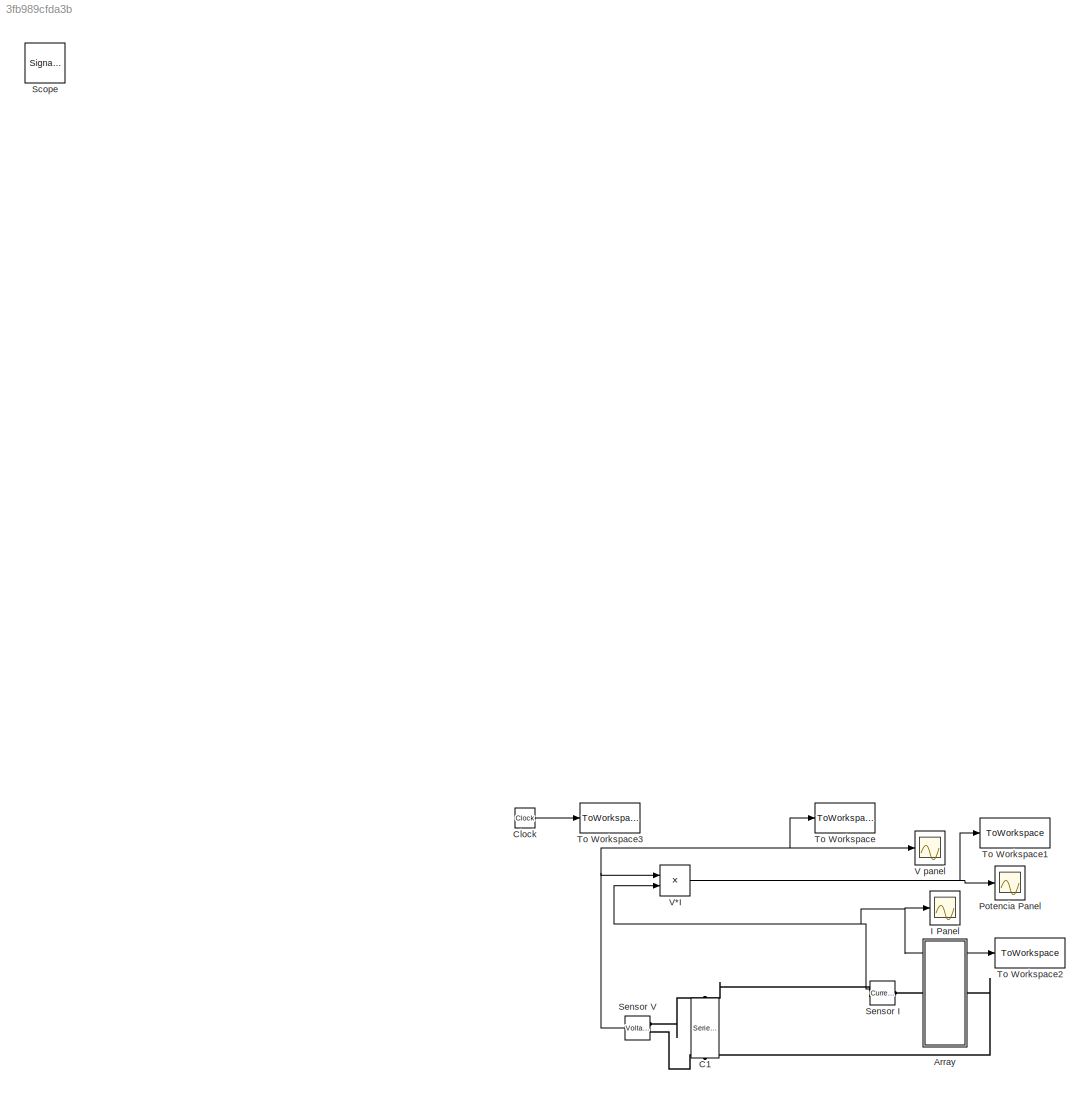
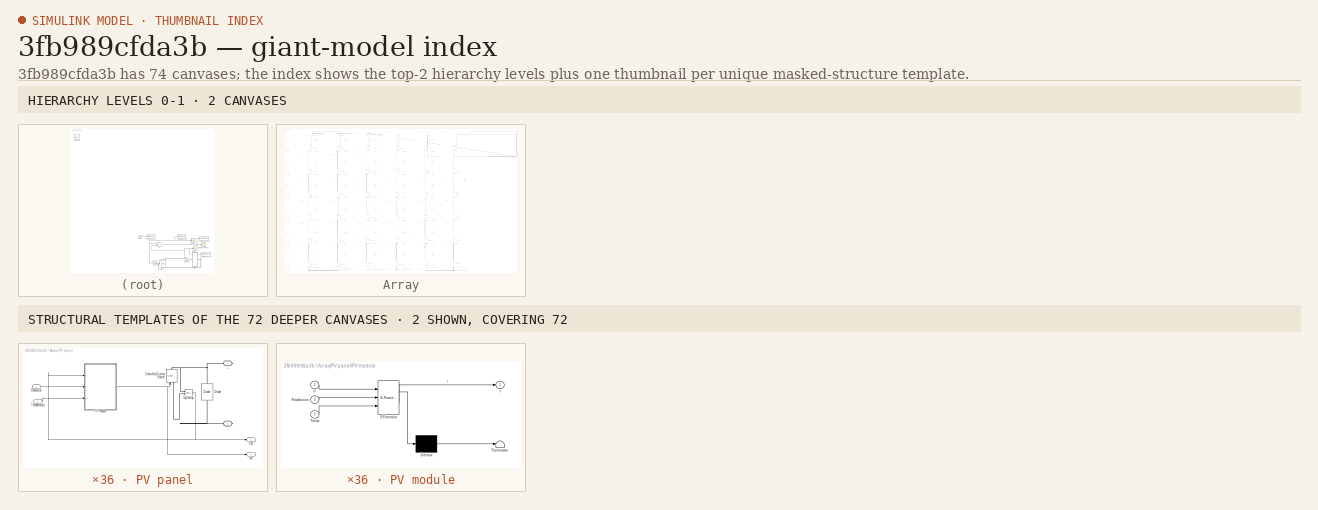
[diagram: thumbnail index - top-2 hierarchy levels (2 canvases) + 2 structural-template representatives of the remaining 72 canvases]
MODEL slx_3fb989cfda3b
KIND model
BLOCK [Reference]  C1  REF=powerlib/Elements/Series RLC Branch
  BranchType = C
  Capacitance = 50e-6
  Inductance = 0.05
  InitialCurrent = 0
  InitialVoltage = 0
  LConnTagsString = __new0
  Measurements = Branch voltage and current
  Ports = [0, 0, 0, 0, 0, 1, 1]
  RConnTagsString = __new0
  Resistance = 5
  SetiL0 = off
  Setx0 = on
  SourceBlock = powerlib/Elements/Series RLC Branch
  SourceType = Series RLC Branch
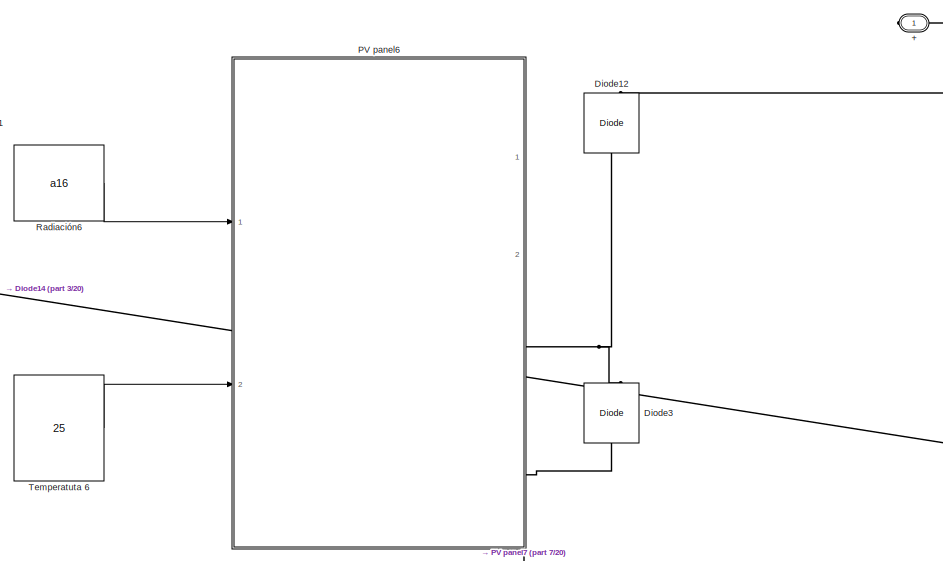
[diagram: Array - part 1/20, top right region]
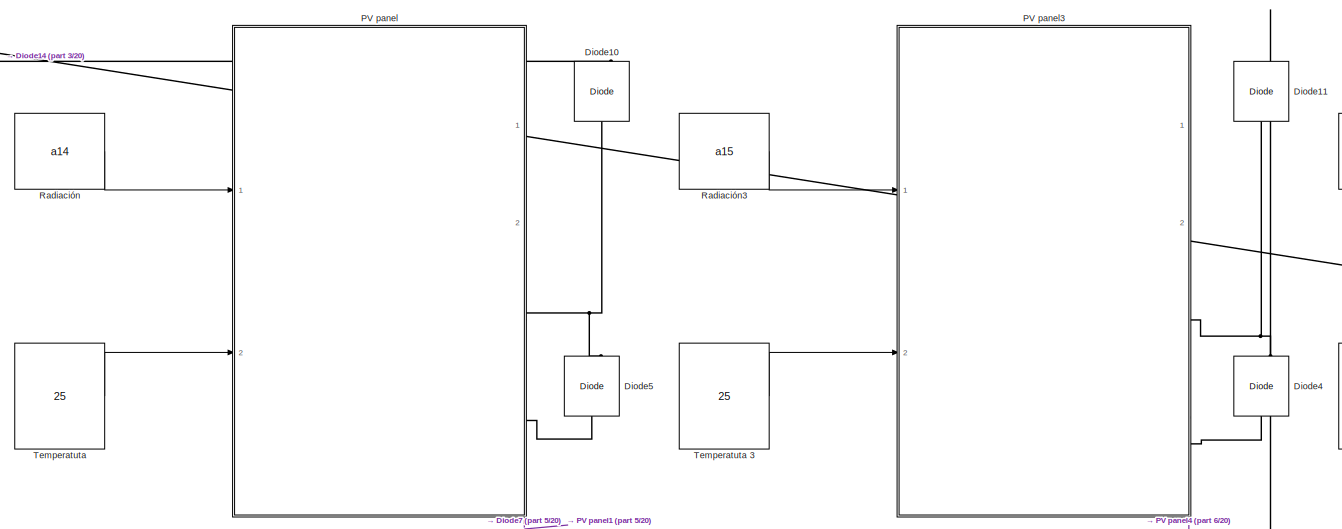
[diagram: Array - part 2/20, top center region]
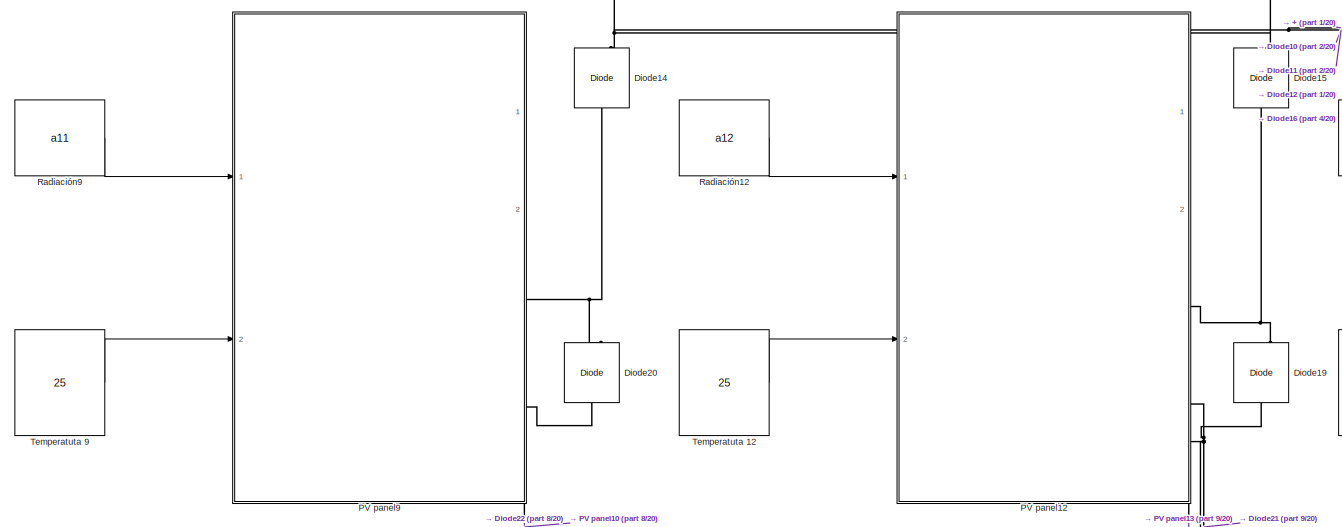
[diagram: Array - part 3/20, top left region]
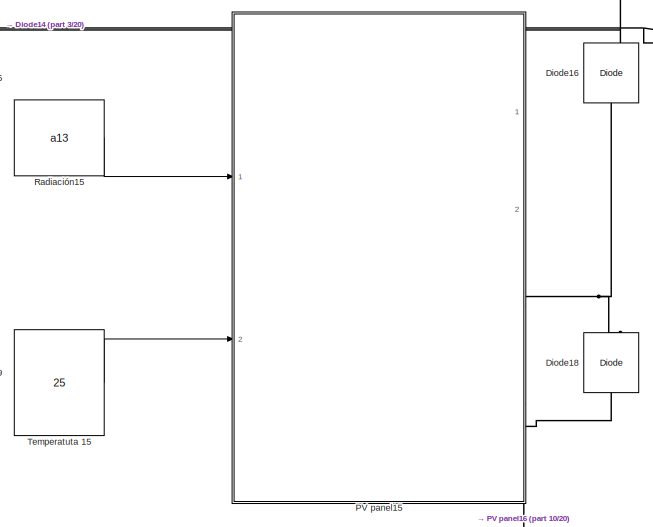
[diagram: Array - part 4/20, top left region]
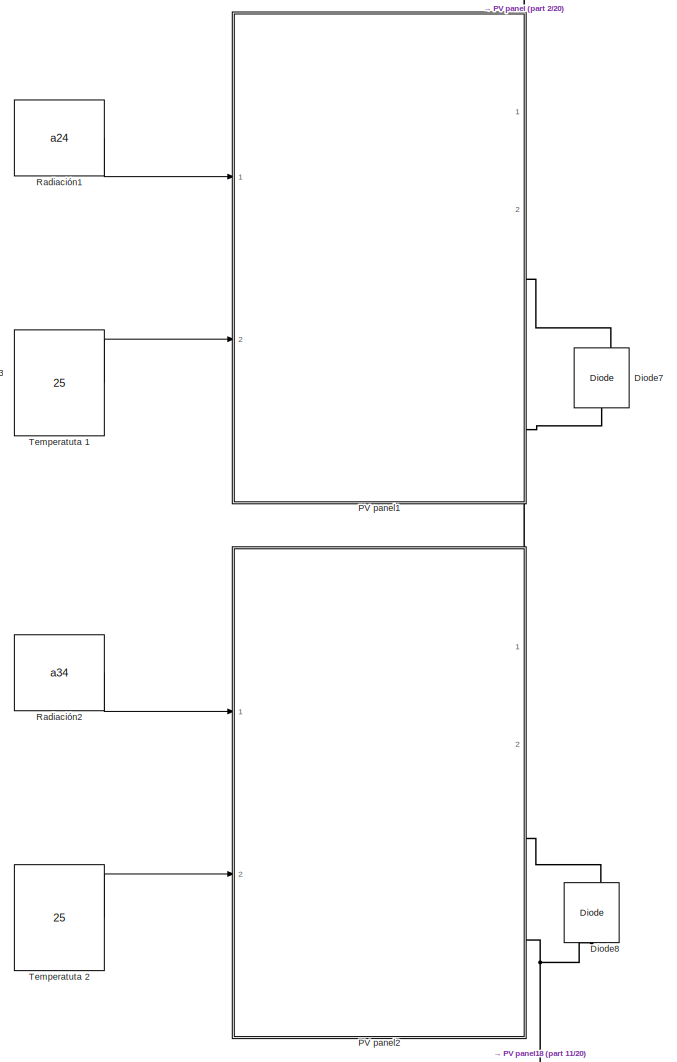
[diagram: Array - part 5/20, central region]
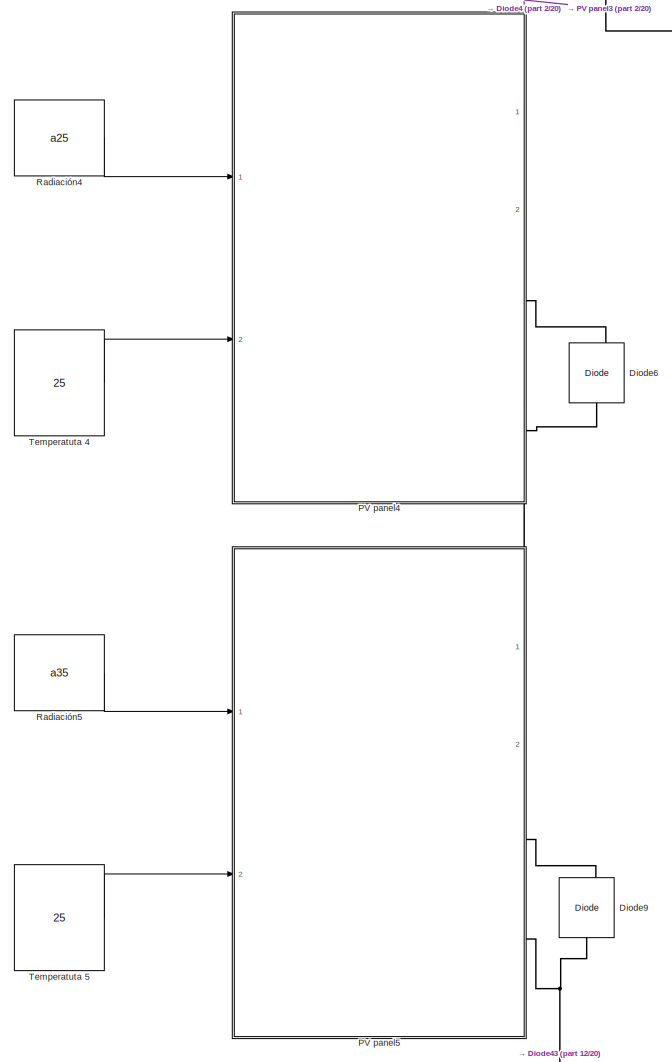
[diagram: Array - part 6/20, central region]
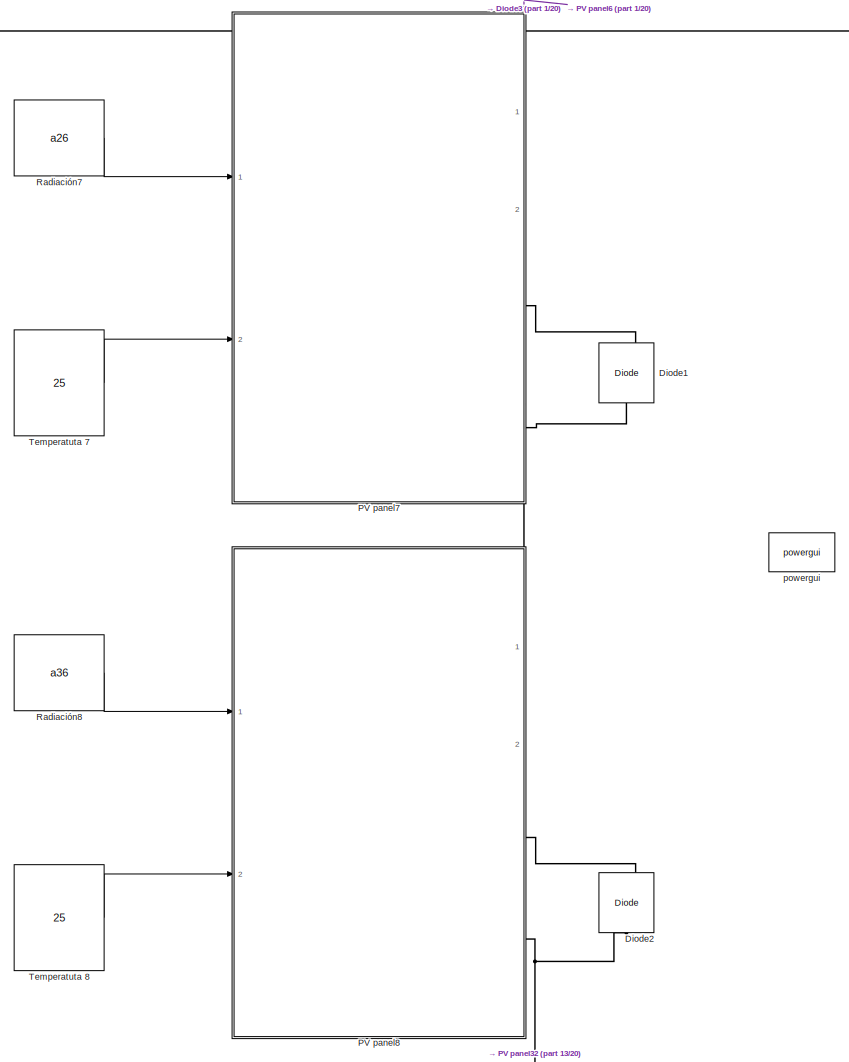
[diagram: Array - part 7/20, middle right region]
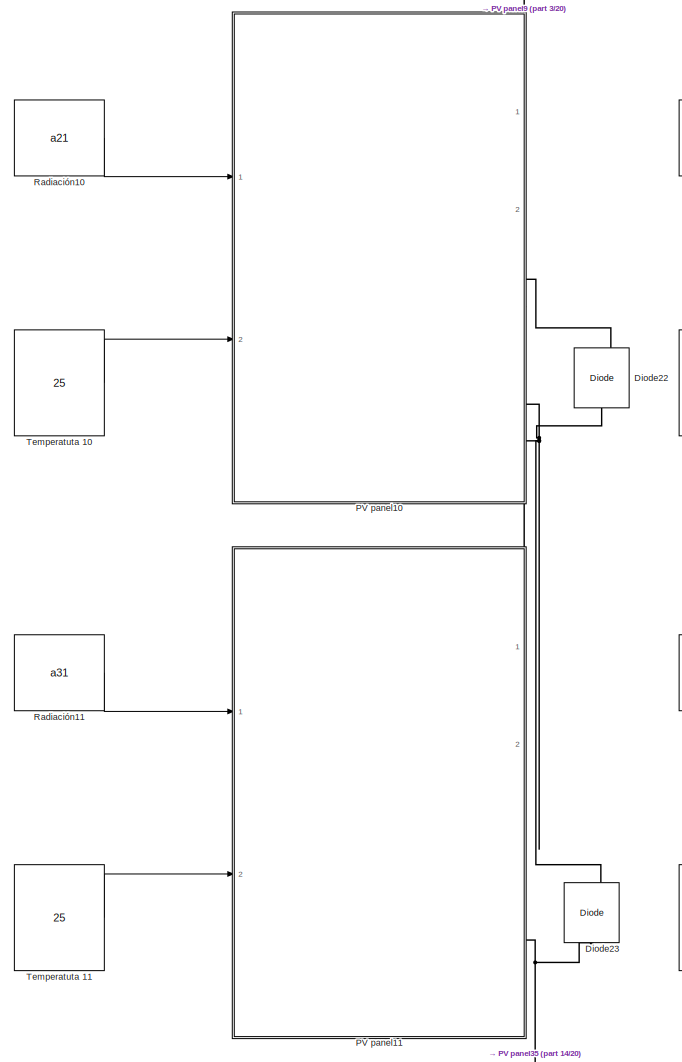
[diagram: Array - part 8/20, middle left region]
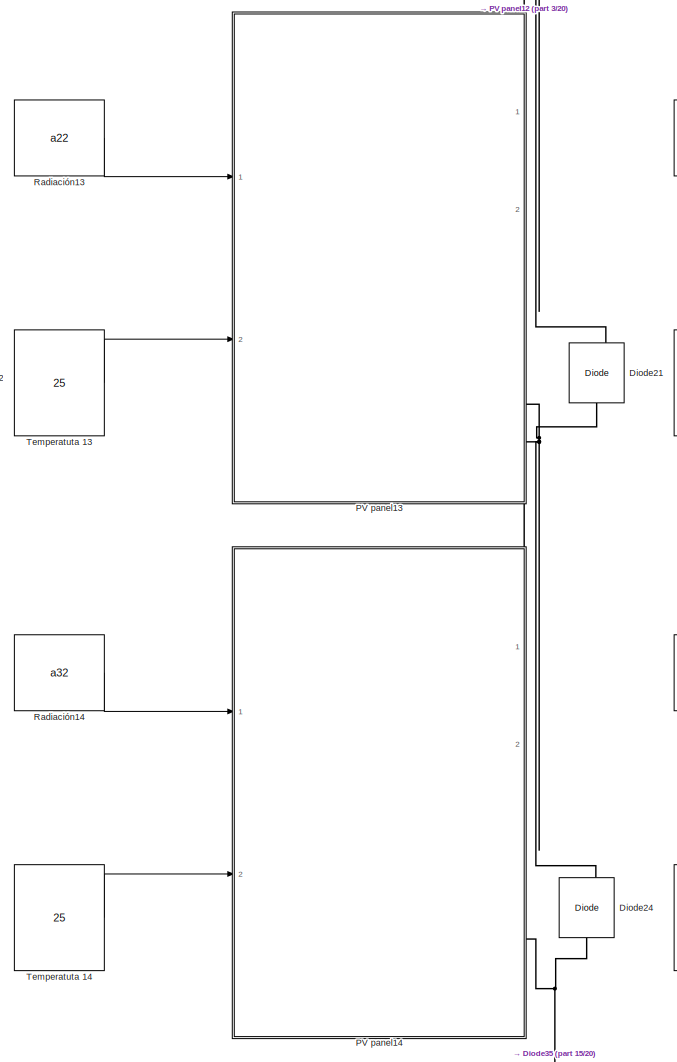
[diagram: Array - part 9/20, middle left region]
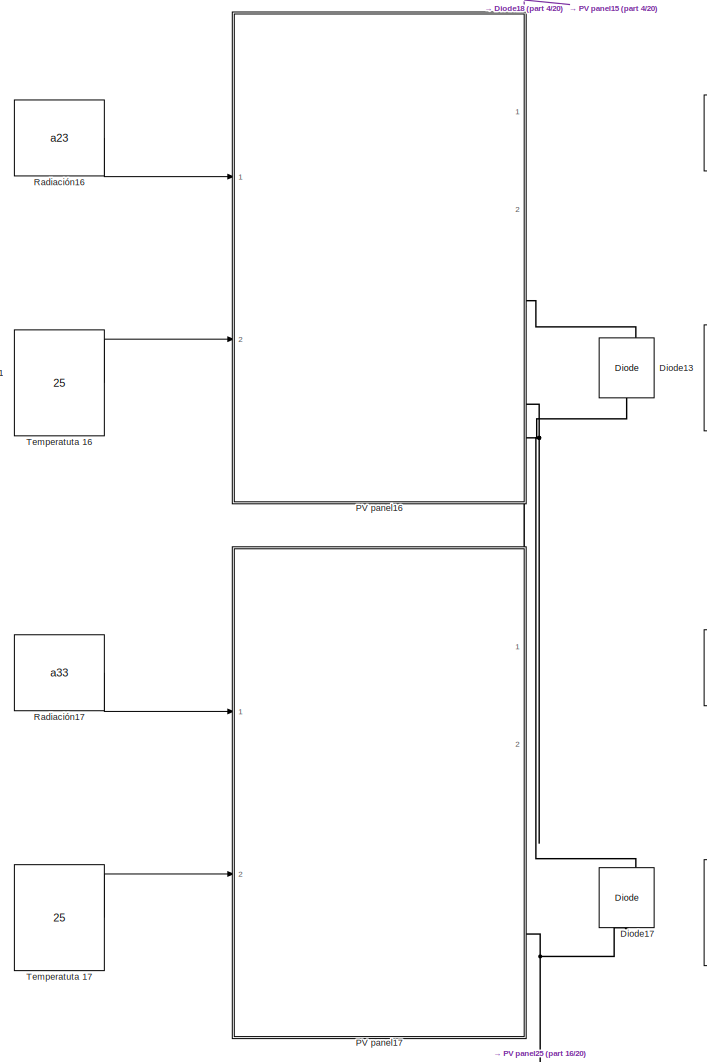
[diagram: Array - part 10/20, middle left region]
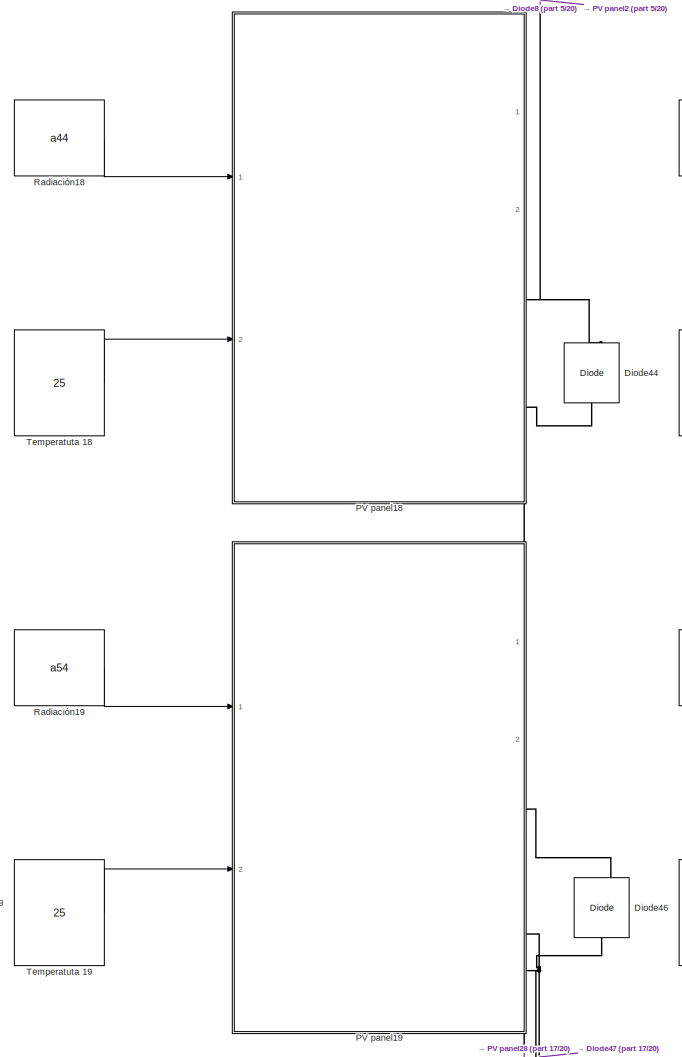
[diagram: Array - part 11/20, central region]
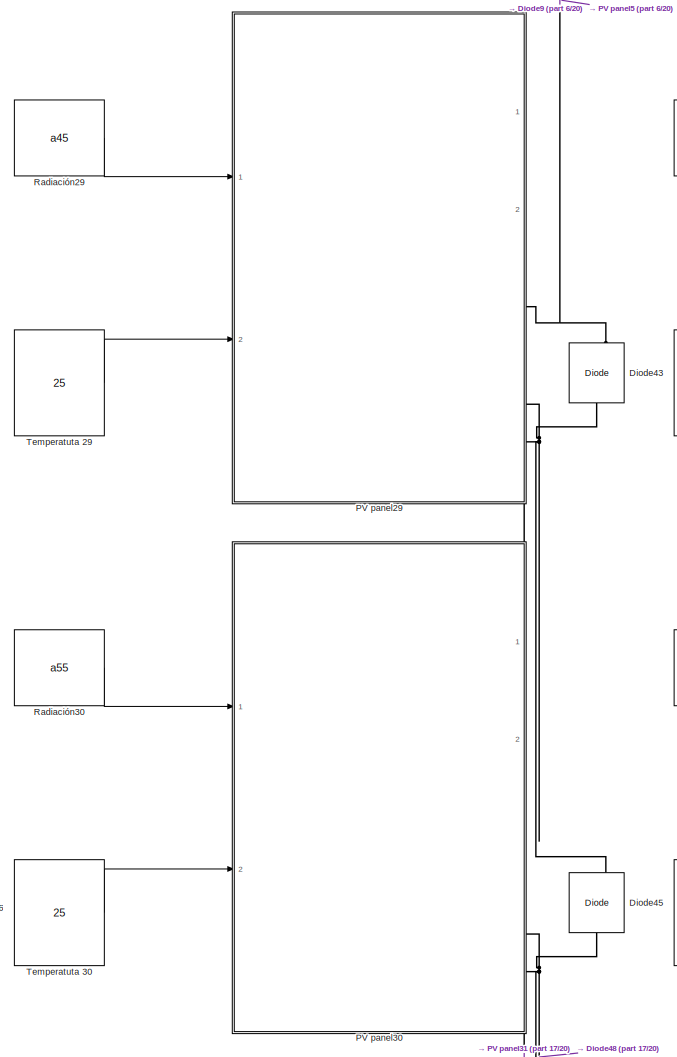
[diagram: Array - part 12/20, central region]
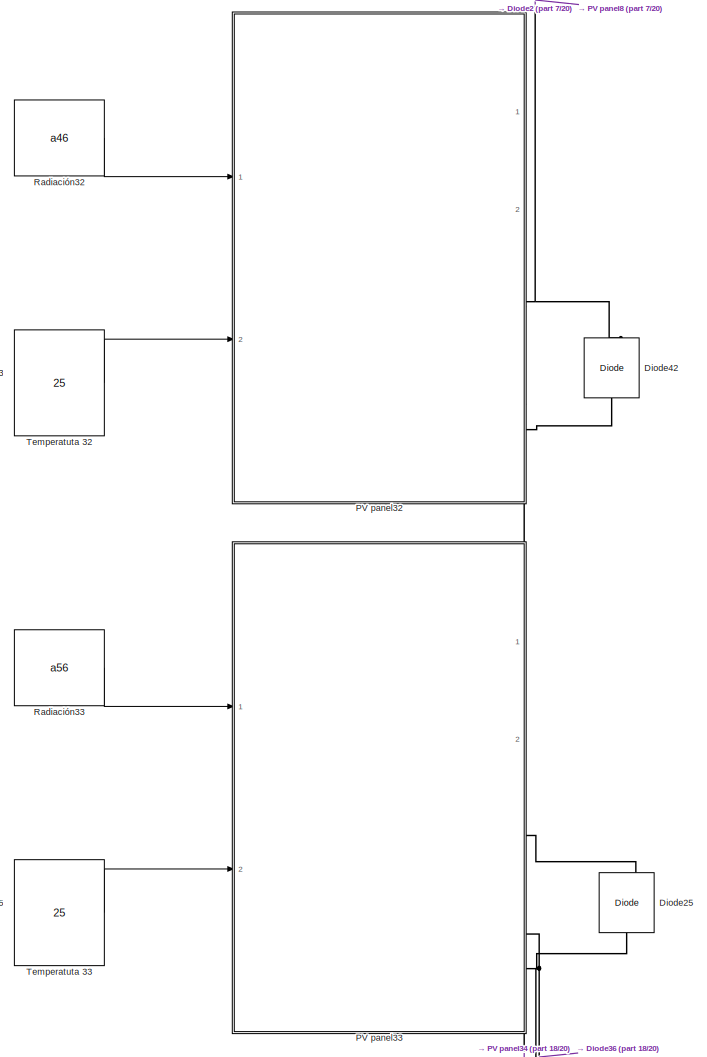
[diagram: Array - part 13/20, middle right region]
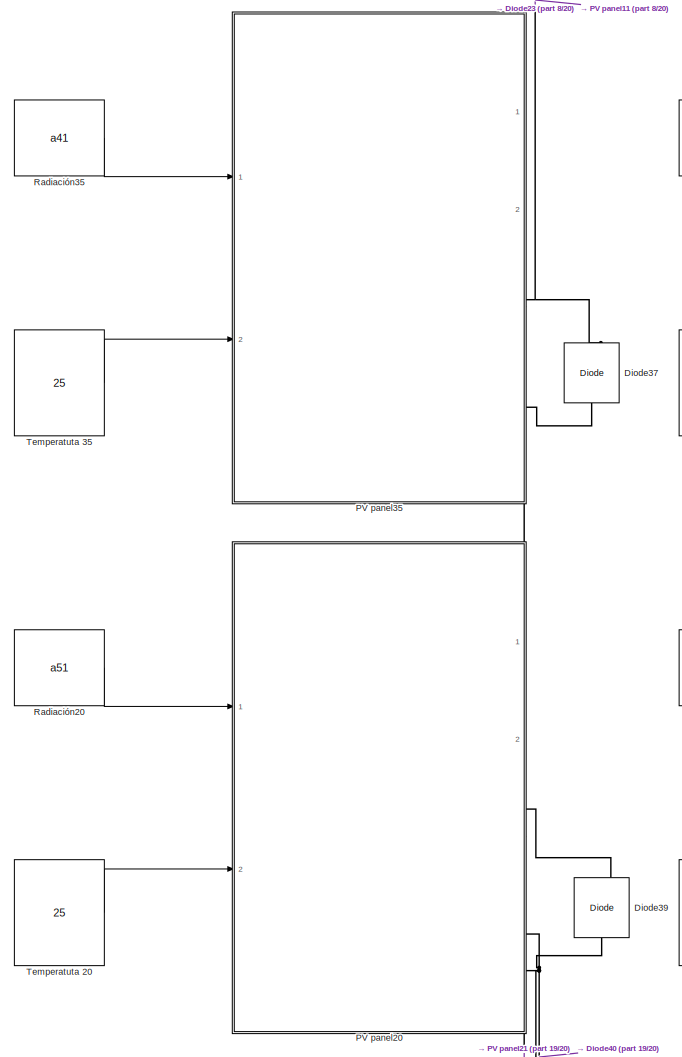
[diagram: Array - part 14/20, middle left region]
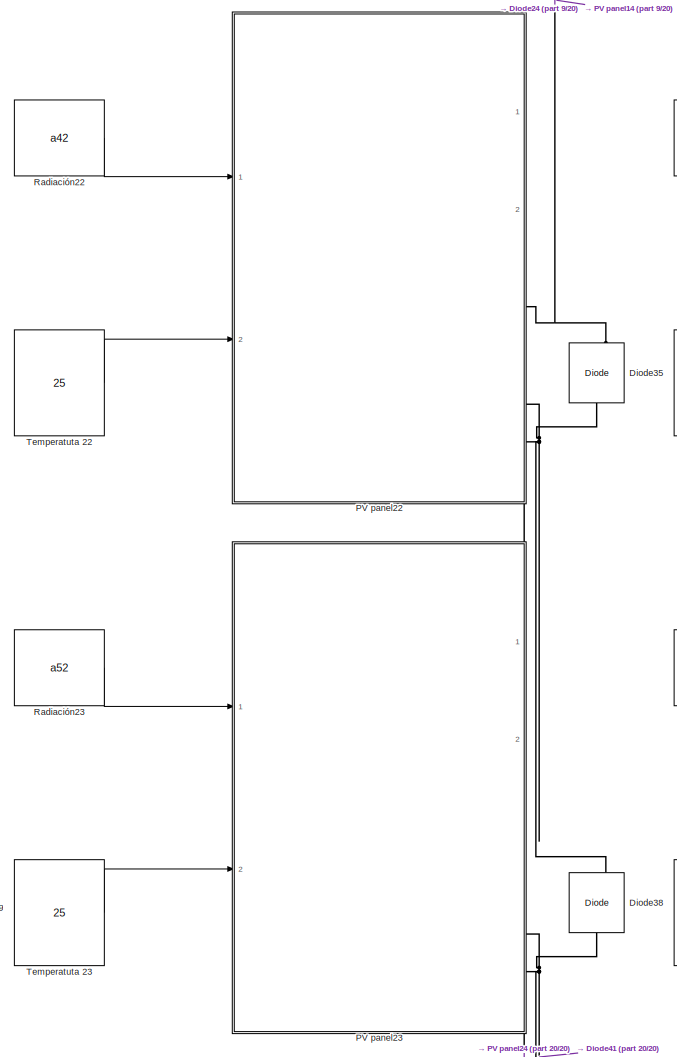
[diagram: Array - part 15/20, middle left region]
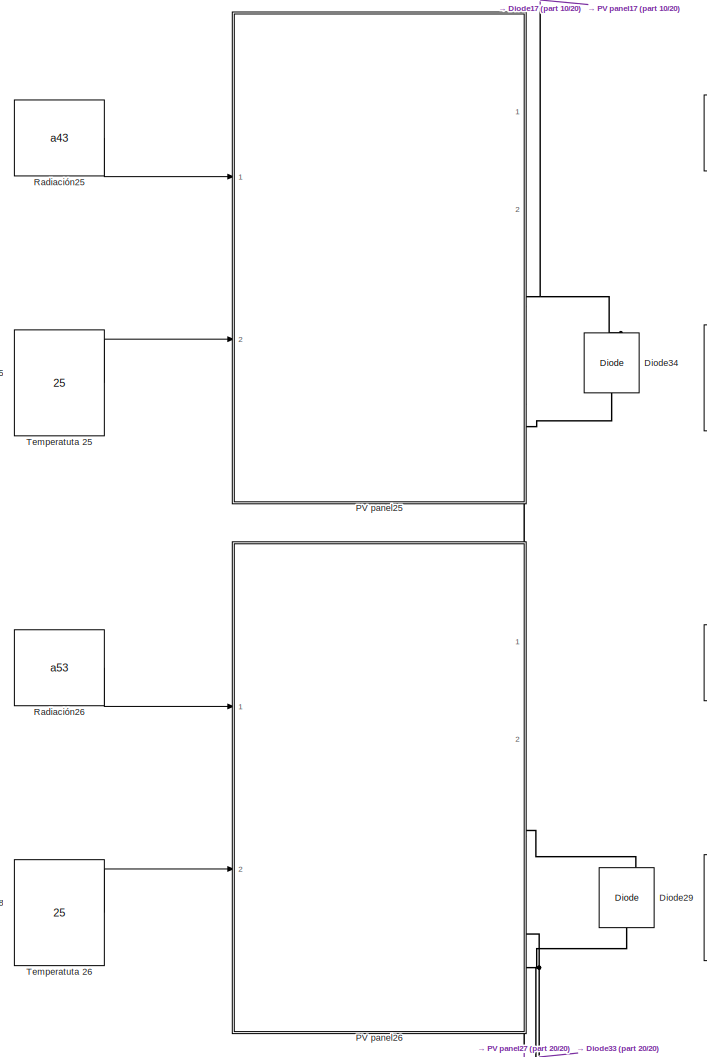
[diagram: Array - part 16/20, middle left region]
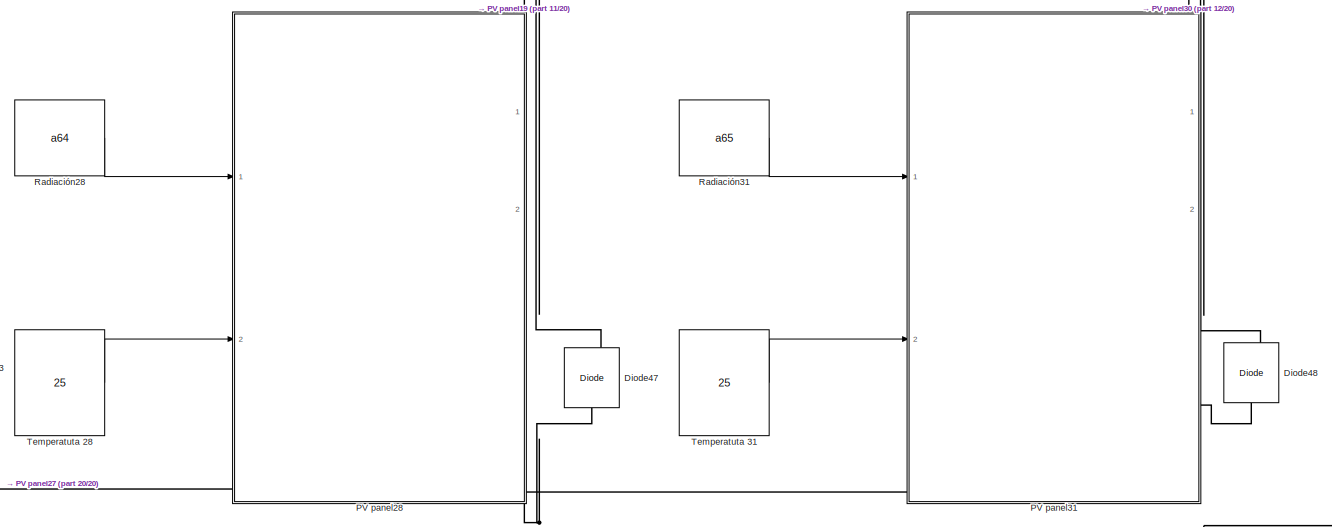
[diagram: Array - part 17/20, bottom center region]
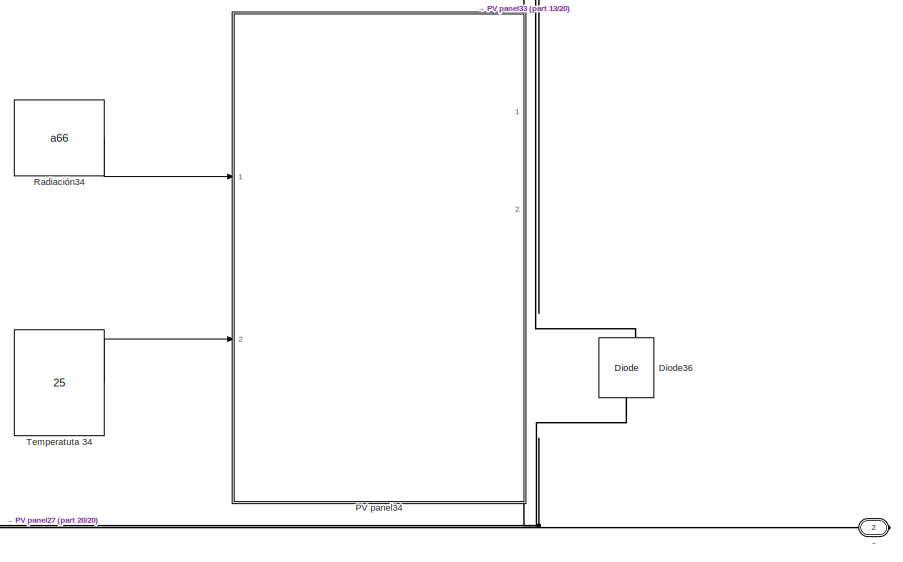
[diagram: Array - part 18/20, bottom right region]
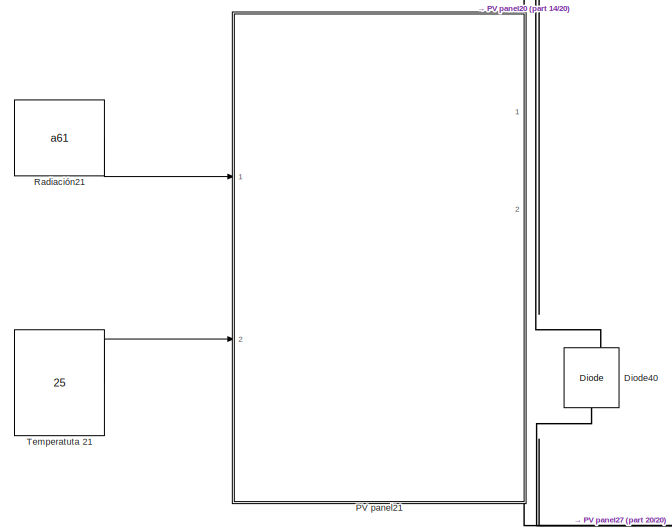
[diagram: Array - part 19/20, bottom left region]
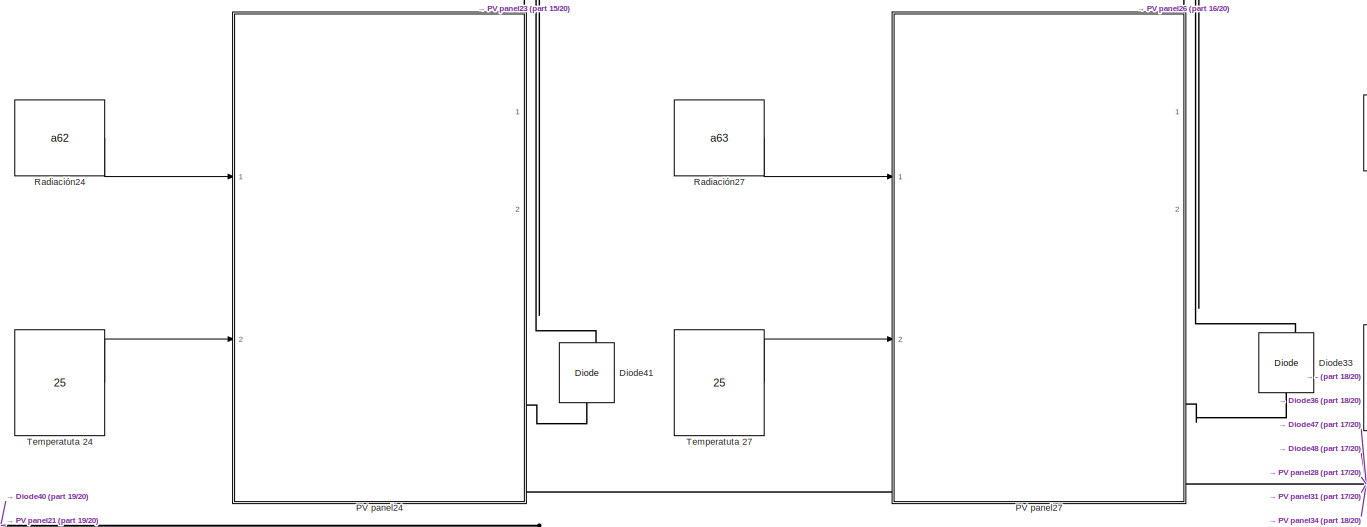
[diagram: Array - part 20/20, bottom left region]
BLOCK [SubSystem] Array
  FunctionWithSeparateData = off
  MaskHideContents = off
  MinAlgLoopOccurrences = off
  Opaque = off
  Ports = [0, 0, 0, 0, 0, 1, 1]
  PropExecContextOutsideSubsystem = off
  RTWSystemCode = Auto
  RequestExecContextInheritance = off
BLOCK [PMIOPort] Array/+
  Port = 1
  Side = Left
  Tag = PMCPort
BLOCK [PMIOPort] Array/-
  Port = 2
  Side = Right
  Tag = PMCPort
BLOCK [Reference] Array/Diode1  REF=powerlib/Power
Electronics/Diode
  Cs = 1e-9
  IC = 0
  Lon = 0
  Measurements = on
  Ports = [0, 1, 0, 0, 0, 1, 1]
  Ron = 0.00001
  Rs = 1e10
  SourceBlock = powerlib/Power\nElectronics/Diode
  SourceType = Diode
  UseSnubber = off
  Vf = 0.3
BLOCK [Reference] Array/Diode10  REF=powerlib/Power
Electronics/Diode
  Cs = 1e-9
  IC = 0
  Lon = 0
  Measurements = on
  Ports = [0, 1, 0, 0, 0, 1, 1]
  Ron = 0.00001
  Rs = 1e10
  SourceBlock = powerlib/Power\nElectronics/Diode
  SourceType = Diode
  UseSnubber = off
  Vf = 0.3
BLOCK [Reference] Array/Diode11  REF=powerlib/Power
Electronics/Diode
  Cs = 1e-9
  IC = 0
  Lon = 0
  Measurements = on
  Ports = [0, 1, 0, 0, 0, 1, 1]
  Ron = 0.00001
  Rs = 1e10
  SourceBlock = powerlib/Power\nElectronics/Diode
  SourceType = Diode
  UseSnubber = off
  Vf = 0.3
BLOCK [Reference] Array/Diode12  REF=powerlib/Power
Electronics/Diode
  Cs = 1e-9
  IC = 0
  Lon = 0
  Measurements = on
  Ports = [0, 1, 0, 0, 0, 1, 1]
  Ron = 0.00001
  Rs = 1e10
  SourceBlock = powerlib/Power\nElectronics/Diode
  SourceType = Diode
  UseSnubber = off
  Vf = 0.3
BLOCK [Reference] Array/Diode13  REF=powerlib/Power
Electronics/Diode
  Cs = 1e-9
  IC = 0
  Lon = 0
  Measurements = on
  Ports = [0, 1, 0, 0, 0, 1, 1]
  Ron = 0.00001
  Rs = 1e10
  SourceBlock = powerlib/Power\nElectronics/Diode
  SourceType = Diode
  UseSnubber = off
  Vf = 0.3
BLOCK [Reference] Array/Diode14  REF=powerlib/Power
Electronics/Diode
  Cs = 1e-9
  IC = 0
  Lon = 0
  Measurements = on
  Ports = [0, 1, 0, 0, 0, 1, 1]
  Ron = 0.00001
  Rs = 1e10
  SourceBlock = powerlib/Power\nElectronics/Diode
  SourceType = Diode
  UseSnubber = off
  Vf = 0.3
BLOCK [Reference] Array/Diode15  REF=powerlib/Power
Electronics/Diode
  Cs = 1e-9
  IC = 0
  Lon = 0
  Measurements = on
  Ports = [0, 1, 0, 0, 0, 1, 1]
  Ron = 0.00001
  Rs = 1e10
  SourceBlock = powerlib/Power\nElectronics/Diode
  SourceType = Diode
  UseSnubber = off
  Vf = 0.3
BLOCK [Reference] Array/Diode16  REF=powerlib/Power
Electronics/Diode
  Cs = 1e-9
  IC = 0
  Lon = 0
  Measurements = on
  Ports = [0, 1, 0, 0, 0, 1, 1]
  Ron = 0.00001
  Rs = 1e10
  SourceBlock = powerlib/Power\nElectronics/Diode
  SourceType = Diode
  UseSnubber = off
  Vf = 0.3
BLOCK [Reference] Array/Diode17  REF=powerlib/Power
Electronics/Diode
  Cs = 1e-9
  IC = 0
  Lon = 0
  Measurements = on
  Ports = [0, 1, 0, 0, 0, 1, 1]
  Ron = 0.00001
  Rs = 1e10
  SourceBlock = powerlib/Power\nElectronics/Diode
  SourceType = Diode
  UseSnubber = off
  Vf = 0.3
BLOCK [Reference] Array/Diode18  REF=powerlib/Power
Electronics/Diode
  Cs = 1e-9
  IC = 0
  Lon = 0
  Measurements = on
  Ports = [0, 1, 0, 0, 0, 1, 1]
  Ron = 0.00001
  Rs = 1e10
  SourceBlock = powerlib/Power\nElectronics/Diode
  SourceType = Diode
  UseSnubber = off
  Vf = 0.3
BLOCK [Reference] Array/Diode19  REF=powerlib/Power
Electronics/Diode
  Cs = 1e-9
  IC = 0
  Lon = 0
  Measurements = on
  Ports = [0, 1, 0, 0, 0, 1, 1]
  Ron = 0.00001
  Rs = 1e10
  SourceBlock = powerlib/Power\nElectronics/Diode
  SourceType = Diode
  UseSnubber = off
  Vf = 0.3
BLOCK [Reference] Array/Diode2  REF=powerlib/Power
Electronics/Diode
  Cs = 1e-9
  IC = 0
  Lon = 0
  Measurements = on
  Ports = [0, 1, 0, 0, 0, 1, 1]
  Ron = 0.00001
  Rs = 1e10
  SourceBlock = powerlib/Power\nElectronics/Diode
  SourceType = Diode
  UseSnubber = off
  Vf = 0.3
BLOCK [Reference] Array/Diode20  REF=powerlib/Power
Electronics/Diode
  Cs = 1e-9
  IC = 0
  Lon = 0
  Measurements = on
  Ports = [0, 1, 0, 0, 0, 1, 1]
  Ron = 0.00001
  Rs = 1e10
  SourceBlock = powerlib/Power\nElectronics/Diode
  SourceType = Diode
  UseSnubber = off
  Vf = 0.3
BLOCK [Reference] Array/Diode21  REF=powerlib/Power
Electronics/Diode
  Cs = 1e-9
  IC = 0
  Lon = 0
  Measurements = on
  Ports = [0, 1, 0, 0, 0, 1, 1]
  Ron = 0.00001
  Rs = 1e10
  SourceBlock = powerlib/Power\nElectronics/Diode
  SourceType = Diode
  UseSnubber = off
  Vf = 0.3
BLOCK [Reference] Array/Diode22  REF=powerlib/Power
Electronics/Diode
  Cs = 1e-9
  IC = 0
  Lon = 0
  Measurements = on
  Ports = [0, 1, 0, 0, 0, 1, 1]
  Ron = 0.00001
  Rs = 1e10
  SourceBlock = powerlib/Power\nElectronics/Diode
  SourceType = Diode
  UseSnubber = off
  Vf = 0.3
BLOCK [Reference] Array/Diode23  REF=powerlib/Power
Electronics/Diode
  Cs = 1e-9
  IC = 0
  Lon = 0
  Measurements = on
  Ports = [0, 1, 0, 0, 0, 1, 1]
  Ron = 0.00001
  Rs = 1e10
  SourceBlock = powerlib/Power\nElectronics/Diode
  SourceType = Diode
  UseSnubber = off
  Vf = 0.3
BLOCK [Reference] Array/Diode24  REF=powerlib/Power
Electronics/Diode
  Cs = 1e-9
  IC = 0
  Lon = 0
  Measurements = on
  Ports = [0, 1, 0, 0, 0, 1, 1]
  Ron = 0.00001
  Rs = 1e10
  SourceBlock = powerlib/Power\nElectronics/Diode
  SourceType = Diode
  UseSnubber = off
  Vf = 0.3
BLOCK [Reference] Array/Diode25  REF=powerlib/Power
Electronics/Diode
  Cs = 1e-9
  IC = 0
  Lon = 0
  Measurements = on
  Ports = [0, 1, 0, 0, 0, 1, 1]
  Ron = 0.00001
  Rs = 1e10
  SourceBlock = powerlib/Power\nElectronics/Diode
  SourceType = Diode
  UseSnubber = off
  Vf = 0.3
BLOCK [Reference] Array/Diode29  REF=powerlib/Power
Electronics/Diode
  Cs = 1e-9
  IC = 0
  Lon = 0
  Measurements = on
  Ports = [0, 1, 0, 0, 0, 1, 1]
  Ron = 0.00001
  Rs = 1e10
  SourceBlock = powerlib/Power\nElectronics/Diode
  SourceType = Diode
  UseSnubber = off
  Vf = 0.3
BLOCK [Reference] Array/Diode3  REF=powerlib/Power
Electronics/Diode
  Cs = 1e-9
  IC = 0
  Lon = 0
  Measurements = on
  Ports = [0, 1, 0, 0, 0, 1, 1]
  Ron = 0.00001
  Rs = 1e10
  SourceBlock = powerlib/Power\nElectronics/Diode
  SourceType = Diode
  UseSnubber = off
  Vf = 0.3
BLOCK [Reference] Array/Diode33  REF=powerlib/Power
Electronics/Diode
  Cs = 1e-9
  IC = 0
  Lon = 0
  Measurements = on
  Ports = [0, 1, 0, 0, 0, 1, 1]
  Ron = 0.00001
  Rs = 1e10
  SourceBlock = powerlib/Power\nElectronics/Diode
  SourceType = Diode
  UseSnubber = off
  Vf = 0.3
BLOCK [Reference] Array/Diode34  REF=powerlib/Power
Electronics/Diode
  Cs = 1e-9
  IC = 0
  Lon = 0
  Measurements = on
  Ports = [0, 1, 0, 0, 0, 1, 1]
  Ron = 0.00001
  Rs = 1e10
  SourceBlock = powerlib/Power\nElectronics/Diode
  SourceType = Diode
  UseSnubber = off
  Vf = 0.3
BLOCK [Reference] Array/Diode35  REF=powerlib/Power
Electronics/Diode
  Cs = 1e-9
  IC = 0
  Lon = 0
  Measurements = on
  Ports = [0, 1, 0, 0, 0, 1, 1]
  Ron = 0.00001
  Rs = 1e10
  SourceBlock = powerlib/Power\nElectronics/Diode
  SourceType = Diode
  UseSnubber = off
  Vf = 0.3
BLOCK [Reference] Array/Diode36  REF=powerlib/Power
Electronics/Diode
  Cs = 1e-9
  IC = 0
  Lon = 0
  Measurements = on
  Ports = [0, 1, 0, 0, 0, 1, 1]
  Ron = 0.00001
  Rs = 1e10
  SourceBlock = powerlib/Power\nElectronics/Diode
  SourceType = Diode
  UseSnubber = off
  Vf = 0.3
BLOCK [Reference] Array/Diode37  REF=powerlib/Power
Electronics/Diode
  Cs = 1e-9
  IC = 0
  Lon = 0
  Measurements = on
  Ports = [0, 1, 0, 0, 0, 1, 1]
  Ron = 0.00001
  Rs = 1e10
  SourceBlock = powerlib/Power\nElectronics/Diode
  SourceType = Diode
  UseSnubber = off
  Vf = 0.3
BLOCK [Reference] Array/Diode38  REF=powerlib/Power
Electronics/Diode
  Cs = 1e-9
  IC = 0
  Lon = 0
  Measurements = on
  Ports = [0, 1, 0, 0, 0, 1, 1]
  Ron = 0.00001
  Rs = 1e10
  SourceBlock = powerlib/Power\nElectronics/Diode
  SourceType = Diode
  UseSnubber = off
  Vf = 0.3
BLOCK [Reference] Array/Diode39  REF=powerlib/Power
Electronics/Diode
  Cs = 1e-9
  IC = 0
  Lon = 0
  Measurements = on
  Ports = [0, 1, 0, 0, 0, 1, 1]
  Ron = 0.00001
  Rs = 1e10
  SourceBlock = powerlib/Power\nElectronics/Diode
  SourceType = Diode
  UseSnubber = off
  Vf = 0.3
BLOCK [Reference] Array/Diode4  REF=powerlib/Power
Electronics/Diode
  Cs = 1e-9
  IC = 0
  Lon = 0
  Measurements = on
  Ports = [0, 1, 0, 0, 0, 1, 1]
  Ron = 0.00001
  Rs = 1e10
  SourceBlock = powerlib/Power\nElectronics/Diode
  SourceType = Diode
  UseSnubber = off
  Vf = 0.3
BLOCK [Reference] Array/Diode40  REF=powerlib/Power
Electronics/Diode
  Cs = 1e-9
  IC = 0
  Lon = 0
  Measurements = on
  Ports = [0, 1, 0, 0, 0, 1, 1]
  Ron = 0.00001
  Rs = 1e10
  SourceBlock = powerlib/Power\nElectronics/Diode
  SourceType = Diode
  UseSnubber = off
  Vf = 0.3
BLOCK [Reference] Array/Diode41  REF=powerlib/Power
Electronics/Diode
  Cs = 1e-9
  IC = 0
  Lon = 0
  Measurements = on
  Ports = [0, 1, 0, 0, 0, 1, 1]
  Ron = 0.00001
  Rs = 1e10
  SourceBlock = powerlib/Power\nElectronics/Diode
  SourceType = Diode
  UseSnubber = off
  Vf = 0.3
BLOCK [Reference] Array/Diode42  REF=powerlib/Power
Electronics/Diode
  Cs = 1e-9
  IC = 0
  Lon = 0
  Measurements = on
  Ports = [0, 1, 0, 0, 0, 1, 1]
  Ron = 0.00001
  Rs = 1e10
  SourceBlock = powerlib/Power\nElectronics/Diode
  SourceType = Diode
  UseSnubber = off
  Vf = 0.3
BLOCK [Reference] Array/Diode43  REF=powerlib/Power
Electronics/Diode
  Cs = 1e-9
  IC = 0
  Lon = 0
  Measurements = on
  Ports = [0, 1, 0, 0, 0, 1, 1]
  Ron = 0.00001
  Rs = 1e10
  SourceBlock = powerlib/Power\nElectronics/Diode
  SourceType = Diode
  UseSnubber = off
  Vf = 0.3
BLOCK [Reference] Array/Diode44  REF=powerlib/Power
Electronics/Diode
  Cs = 1e-9
  IC = 0
  Lon = 0
  Measurements = on
  Ports = [0, 1, 0, 0, 0, 1, 1]
  Ron = 0.00001
  Rs = 1e10
  SourceBlock = powerlib/Power\nElectronics/Diode
  SourceType = Diode
  UseSnubber = off
  Vf = 0.3
BLOCK [Reference] Array/Diode45  REF=powerlib/Power
Electronics/Diode
  Cs = 1e-9
  IC = 0
  Lon = 0
  Measurements = on
  Ports = [0, 1, 0, 0, 0, 1, 1]
  Ron = 0.00001
  Rs = 1e10
  SourceBlock = powerlib/Power\nElectronics/Diode
  SourceType = Diode
  UseSnubber = off
  Vf = 0.3
BLOCK [Reference] Array/Diode46  REF=powerlib/Power
Electronics/Diode
  Cs = 1e-9
  IC = 0
  Lon = 0
  Measurements = on
  Ports = [0, 1, 0, 0, 0, 1, 1]
  Ron = 0.00001
  Rs = 1e10
  SourceBlock = powerlib/Power\nElectronics/Diode
  SourceType = Diode
  UseSnubber = off
  Vf = 0.3
BLOCK [Reference] Array/Diode47  REF=powerlib/Power
Electronics/Diode
  Cs = 1e-9
  IC = 0
  Lon = 0
  Measurements = on
  Ports = [0, 1, 0, 0, 0, 1, 1]
  Ron = 0.00001
  Rs = 1e10
  SourceBlock = powerlib/Power\nElectronics/Diode
  SourceType = Diode
  UseSnubber = off
  Vf = 0.3
BLOCK [Reference] Array/Diode48  REF=powerlib/Power
Electronics/Diode
  Cs = 1e-9
  IC = 0
  Lon = 0
  Measurements = on
  Ports = [0, 1, 0, 0, 0, 1, 1]
  Ron = 0.00001
  Rs = 1e10
  SourceBlock = powerlib/Power\nElectronics/Diode
  SourceType = Diode
  UseSnubber = off
  Vf = 0.3
BLOCK [Reference] Array/Diode5  REF=powerlib/Power
Electronics/Diode
  Cs = 1e-9
  IC = 0
  Lon = 0
  Measurements = on
  Ports = [0, 1, 0, 0, 0, 1, 1]
  Ron = 0.00001
  Rs = 1e10
  SourceBlock = powerlib/Power\nElectronics/Diode
  SourceType = Diode
  UseSnubber = off
  Vf = 0.3
BLOCK [Reference] Array/Diode6  REF=powerlib/Power
Electronics/Diode
  Cs = 1e-9
  IC = 0
  Lon = 0
  Measurements = on
  Ports = [0, 1, 0, 0, 0, 1, 1]
  Ron = 0.00001
  Rs = 1e10
  SourceBlock = powerlib/Power\nElectronics/Diode
  SourceType = Diode
  UseSnubber = off
  Vf = 0.3
BLOCK [Reference] Array/Diode7  REF=powerlib/Power
Electronics/Diode
  Cs = 1e-9
  IC = 0
  Lon = 0
  Measurements = on
  Ports = [0, 1, 0, 0, 0, 1, 1]
  Ron = 0.00001
  Rs = 1e10
  SourceBlock = powerlib/Power\nElectronics/Diode
  SourceType = Diode
  UseSnubber = off
  Vf = 0.3
BLOCK [Reference] Array/Diode8  REF=powerlib/Power
Electronics/Diode
  Cs = 1e-9
  IC = 0
  Lon = 0
  Measurements = on
  Ports = [0, 1, 0, 0, 0, 1, 1]
  Ron = 0.00001
  Rs = 1e10
  SourceBlock = powerlib/Power\nElectronics/Diode
  SourceType = Diode
  UseSnubber = off
  Vf = 0.3
BLOCK [Reference] Array/Diode9  REF=powerlib/Power
Electronics/Diode
  Cs = 1e-9
  IC = 0
  Lon = 0
  Measurements = on
  Ports = [0, 1, 0, 0, 0, 1, 1]
  Ron = 0.00001
  Rs = 1e10
  SourceBlock = powerlib/Power\nElectronics/Diode
  SourceType = Diode
  UseSnubber = off
  Vf = 0.3
BLOCK [SubSystem] Array/PV panel
  FunctionWithSeparateData = off
  MaskDisplay = image('<userpath>\Dropbox\Fuente\Panel (2).jpg')
  MaskHideContents = off
  MaskIconFrame = on
  MaskIconOpaque = on
  MaskIconRotate = none
  MaskIconUnits = autoscale
  MaskPortRotate = default
  MinAlgLoopOccurrences = off
  Opaque = off
  Ports = [2, 2, 0, 0, 0, 0, 2]
  PropExecContextOutsideSubsystem = off
  RTWSystemCode = Auto
  RequestExecContextInheritance = off
BLOCK [PMIOPort] Array/PV panel/+
  Port = 1
  Side = Right
  Tag = PMCPort
BLOCK [PMIOPort] Array/PV panel/-
  Port = 2
  Side = Right
  Tag = PMCPort
BLOCK [Reference] Array/PV panel/Controlled Current Source  REF=powerlib/Electrical
Sources/Controlled Current Source
  Amplitude = 0
  Frequency = 0
  Initialize = on
  Measurements = None
  Phase = 0
  Ports = [1, 0, 0, 0, 0, 1, 1]
  SourceBlock = powerlib/Electrical\nSources/Controlled Current Source
  SourceType = Controlled Current Source
  Source_Type = AC
BLOCK [Reference] Array/PV panel/Diode  REF=powerlib/Power
Electronics/Diode
  Cs = 250e-9
  IC = 0
  Lon = 0
  Measurements = off
  Ports = [0, 0, 0, 0, 0, 1, 1]
  Ron = 0.001
  Rs = 500
  SourceBlock = powerlib/Power\nElectronics/Diode
  SourceType = Diode
  UseSnubber = off
  Vf = 0
BLOCK [Outport] Array/PV panel/Ipv
  IconDisplay = Port number
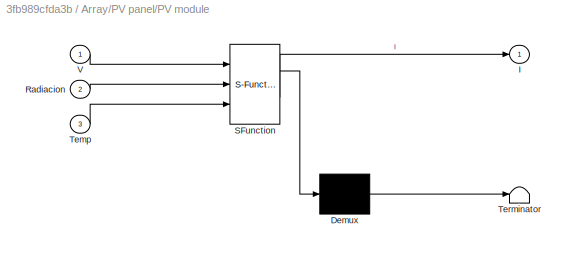
BLOCK [SubSystem] Array/PV panel/PV module
  ErrorFcn = Stateflow.Translate.translate
  FunctionWithSeparateData = off
  MaskHideContents = off
  MinAlgLoopOccurrences = off
  Opaque = off
  PermitHierarchicalResolution = ExplicitOnly
  Ports = [3, 1]
  PropExecContextOutsideSubsystem = off
  RTWSystemCode = Auto
  RequestExecContextInheritance = off
  SFBlockType = MATLAB Function
  TreatAsAtomicUnit = on
BLOCK [Demux] Array/PV panel/PV module/ Demux 
  Outputs = 1
  Ports = [1, 1]
BLOCK [S-Function] Array/PV panel/PV module/ SFunction 
  EnableBusSupport = on
  FunctionName = sf_sfun
  PortCounts = [3 2]
  Ports = [3, 2]
  Tag = Stateflow S-Function Array 2
BLOCK [Terminator] Array/PV panel/PV module/ Terminator 
BLOCK [Outport] Array/PV panel/PV module/I
  IconDisplay = Port number
BLOCK [Inport] Array/PV panel/PV module/Radiacion
  IconDisplay = Port number
  Port = 2
BLOCK [Inport] Array/PV panel/PV module/Temp
  IconDisplay = Port number
  Port = 3
BLOCK [Inport] Array/PV panel/PV module/V
  IconDisplay = Port number
BLOCK [Inport] Array/PV panel/Radiación
  IconDisplay = Port number
BLOCK [Inport] Array/PV panel/Temperatura
  IconDisplay = Port number
  Port = 2
BLOCK [Outport] Array/PV panel/Vpv
  IconDisplay = Port number
  Port = 2
BLOCK [Reference] Array/PV panel/Vpv array  REF=powerlib/Measurements/Voltage Measurement
  OutputType = Complex
  PSBequivalent = 0
  PhasorSimulation = off
  Ports = [0, 1, 0, 0, 0, 2]
  SourceBlock = powerlib/Measurements/Voltage Measurement
  SourceType = Voltage Measurement
BLOCK [SubSystem] Array/PV panel1
  FunctionWithSeparateData = off
  MaskDisplay = image('<userpath>\Dropbox\Fuente\Panel (2).jpg')
  MaskHideContents = off
  MaskIconFrame = on
  MaskIconOpaque = on
  MaskIconRotate = none
  MaskIconUnits = autoscale
  MaskPortRotate = default
  MinAlgLoopOccurrences = off
  Opaque = off
  Ports = [2, 2, 0, 0, 0, 0, 2]
  PropExecContextOutsideSubsystem = off
  RTWSystemCode = Auto
  RequestExecContextInheritance = off
BLOCK [PMIOPort] Array/PV panel1/+
  Port = 1
  Side = Right
  Tag = PMCPort
BLOCK [PMIOPort] Array/PV panel1/-
  Port = 2
  Side = Right
  Tag = PMCPort
BLOCK [Reference] Array/PV panel1/Controlled Current Source  REF=powerlib/Electrical
Sources/Controlled Current Source
  Amplitude = 0
  Frequency = 0
  Initialize = on
  Measurements = None
  Phase = 0
  Ports = [1, 0, 0, 0, 0, 1, 1]
  SourceBlock = powerlib/Electrical\nSources/Controlled Current Source
  SourceType = Controlled Current Source
  Source_Type = AC
BLOCK [Reference] Array/PV panel1/Diode  REF=powerlib/Power
Electronics/Diode
  Cs = 250e-9
  IC = 0
  Lon = 0
  Measurements = off
  Ports = [0, 0, 0, 0, 0, 1, 1]
  Ron = 0.001
  Rs = 500
  SourceBlock = powerlib/Power\nElectronics/Diode
  SourceType = Diode
  UseSnubber = off
  Vf = 0
BLOCK [Outport] Array/PV panel1/Ipv
  IconDisplay = Port number
BLOCK [SubSystem] Array/PV panel1/PV module
  ErrorFcn = Stateflow.Translate.translate
  FunctionWithSeparateData = off
  MaskHideContents = off
  MinAlgLoopOccurrences = off
  Opaque = off
  PermitHierarchicalResolution = ExplicitOnly
  Ports = [3, 1]
  PropExecContextOutsideSubsystem = off
  RTWSystemCode = Auto
  RequestExecContextInheritance = off
  SFBlockType = MATLAB Function
  TreatAsAtomicUnit = on
BLOCK [Demux] Array/PV panel1/PV module/ Demux 
  Outputs = 1
  Ports = [1, 1]
BLOCK [S-Function] Array/PV panel1/PV module/ SFunction 
  EnableBusSupport = on
  FunctionName = sf_sfun
  PortCounts = [3 2]
  Ports = [3, 2]
  Tag = Stateflow S-Function Array 1
BLOCK [Terminator] Array/PV panel1/PV module/ Terminator 
BLOCK [Outport] Array/PV panel1/PV module/I
  IconDisplay = Port number
BLOCK [Inport] Array/PV panel1/PV module/Radiacion
  IconDisplay = Port number
  Port = 2
BLOCK [Inport] Array/PV panel1/PV module/Temp
  IconDisplay = Port number
  Port = 3
BLOCK [Inport] Array/PV panel1/PV module/V
  IconDisplay = Port number
BLOCK [Inport] Array/PV panel1/Radiación
  IconDisplay = Port number
BLOCK [Inport] Array/PV panel1/Temperatura
  IconDisplay = Port number
  Port = 2
BLOCK [Outport] Array/PV panel1/Vpv
  IconDisplay = Port number
  Port = 2
BLOCK [Reference] Array/PV panel1/Vpv array  REF=powerlib/Measurements/Voltage Measurement
  OutputType = Complex
  PSBequivalent = 0
  PhasorSimulation = off
  Ports = [0, 1, 0, 0, 0, 2]
  SourceBlock = powerlib/Measurements/Voltage Measurement
  SourceType = Voltage Measurement
BLOCK [SubSystem] Array/PV panel10
  FunctionWithSeparateData = off
  MaskDisplay = image('<userpath>\Dropbox\Fuente\Panel (2).jpg')
  MaskHideContents = off
  MaskIconFrame = on
  MaskIconOpaque = on
  MaskIconRotate = none
  MaskIconUnits = autoscale
  MaskPortRotate = default
  MinAlgLoopOccurrences = off
  Opaque = off
  Ports = [2, 2, 0, 0, 0, 0, 2]
  PropExecContextOutsideSubsystem = off
  RTWSystemCode = Auto
  RequestExecContextInheritance = off
BLOCK [PMIOPort] Array/PV panel10/+
  Port = 1
  Side = Right
  Tag = PMCPort
BLOCK [PMIOPort] Array/PV panel10/-
  Port = 2
  Side = Right
  Tag = PMCPort
BLOCK [Reference] Array/PV panel10/Controlled Current Source  REF=powerlib/Electrical
Sources/Controlled Current Source
  Amplitude = 0
  Frequency = 0
  Initialize = on
  Measurements = None
  Phase = 0
  Ports = [1, 0, 0, 0, 0, 1, 1]
  SourceBlock = powerlib/Electrical\nSources/Controlled Current Source
  SourceType = Controlled Current Source
  Source_Type = AC
BLOCK [Reference] Array/PV panel10/Diode  REF=powerlib/Power
Electronics/Diode
  Cs = 250e-9
  IC = 0
  Lon = 0
  Measurements = off
  Ports = [0, 0, 0, 0, 0, 1, 1]
  Ron = 0.001
  Rs = 500
  SourceBlock = powerlib/Power\nElectronics/Diode
  SourceType = Diode
  UseSnubber = off
  Vf = 0
BLOCK [Outport] Array/PV panel10/Ipv
  IconDisplay = Port number
BLOCK [SubSystem] Array/PV panel10/PV module
  ErrorFcn = Stateflow.Translate.translate
  FunctionWithSeparateData = off
  MaskHideContents = off
  MinAlgLoopOccurrences = off
  Opaque = off
  PermitHierarchicalResolution = ExplicitOnly
  Ports = [3, 1]
  PropExecContextOutsideSubsystem = off
  RTWSystemCode = Auto
  RequestExecContextInheritance = off
  SFBlockType = MATLAB Function
  TreatAsAtomicUnit = on
BLOCK [Demux] Array/PV panel10/PV module/ Demux 
  Outputs = 1
  Ports = [1, 1]
BLOCK [S-Function] Array/PV panel10/PV module/ SFunction 
  EnableBusSupport = on
  FunctionName = sf_sfun
  PortCounts = [3 2]
  Ports = [3, 2]
  Tag = Stateflow S-Function Array 10
BLOCK [Terminator] Array/PV panel10/PV module/ Terminator 
BLOCK [Outport] Array/PV panel10/PV module/I
  IconDisplay = Port number
BLOCK [Inport] Array/PV panel10/PV module/Radiacion
  IconDisplay = Port number
  Port = 2
BLOCK [Inport] Array/PV panel10/PV module/Temp
  IconDisplay = Port number
  Port = 3
BLOCK [Inport] Array/PV panel10/PV module/V
  IconDisplay = Port number
BLOCK [Inport] Array/PV panel10/Radiación
  IconDisplay = Port number
BLOCK [Inport] Array/PV panel10/Temperatura
  IconDisplay = Port number
  Port = 2
BLOCK [Outport] Array/PV panel10/Vpv
  IconDisplay = Port number
  Port = 2
BLOCK [Reference] Array/PV panel10/Vpv array  REF=powerlib/Measurements/Voltage Measurement
  OutputType = Complex
  PSBequivalent = 0
  PhasorSimulation = off
  Ports = [0, 1, 0, 0, 0, 2]
  SourceBlock = powerlib/Measurements/Voltage Measurement
  SourceType = Voltage Measurement
BLOCK [SubSystem] Array/PV panel11
  FunctionWithSeparateData = off
  MaskDisplay = image('<userpath>\Dropbox\Fuente\Panel (2).jpg')
  MaskHideContents = off
  MaskIconFrame = on
  MaskIconOpaque = on
  MaskIconRotate = none
  MaskIconUnits = autoscale
  MaskPortRotate = default
  MinAlgLoopOccurrences = off
  Opaque = off
  Ports = [2, 2, 0, 0, 0, 0, 2]
  PropExecContextOutsideSubsystem = off
  RTWSystemCode = Auto
  RequestExecContextInheritance = off
BLOCK [PMIOPort] Array/PV panel11/+
  Port = 1
  Side = Right
  Tag = PMCPort
BLOCK [PMIOPort] Array/PV panel11/-
  Port = 2
  Side = Right
  Tag = PMCPort
BLOCK [Reference] Array/PV panel11/Controlled Current Source  REF=powerlib/Electrical
Sources/Controlled Current Source
  Amplitude = 0
  Frequency = 0
  Initialize = on
  Measurements = None
  Phase = 0
  Ports = [1, 0, 0, 0, 0, 1, 1]
  SourceBlock = powerlib/Electrical\nSources/Controlled Current Source
  SourceType = Controlled Current Source
  Source_Type = AC
BLOCK [Reference] Array/PV panel11/Diode  REF=powerlib/Power
Electronics/Diode
  Cs = 250e-9
  IC = 0
  Lon = 0
  Measurements = off
  Ports = [0, 0, 0, 0, 0, 1, 1]
  Ron = 0.001
  Rs = 500
  SourceBlock = powerlib/Power\nElectronics/Diode
  SourceType = Diode
  UseSnubber = off
  Vf = 0
BLOCK [Outport] Array/PV panel11/Ipv
  IconDisplay = Port number
BLOCK [SubSystem] Array/PV panel11/PV module
  ErrorFcn = Stateflow.Translate.translate
  FunctionWithSeparateData = off
  MaskHideContents = off
  MinAlgLoopOccurrences = off
  Opaque = off
  PermitHierarchicalResolution = ExplicitOnly
  Ports = [3, 1]
  PropExecContextOutsideSubsystem = off
  RTWSystemCode = Auto
  RequestExecContextInheritance = off
  SFBlockType = MATLAB Function
  TreatAsAtomicUnit = on
BLOCK [Demux] Array/PV panel11/PV module/ Demux 
  Outputs = 1
  Ports = [1, 1]
BLOCK [S-Function] Array/PV panel11/PV module/ SFunction 
  EnableBusSupport = on
  FunctionName = sf_sfun
  PortCounts = [3 2]
  Ports = [3, 2]
  Tag = Stateflow S-Function Array 11
BLOCK [Terminator] Array/PV panel11/PV module/ Terminator 
BLOCK [Outport] Array/PV panel11/PV module/I
  IconDisplay = Port number
BLOCK [Inport] Array/PV panel11/PV module/Radiacion
  IconDisplay = Port number
  Port = 2
BLOCK [Inport] Array/PV panel11/PV module/Temp
  IconDisplay = Port number
  Port = 3
BLOCK [Inport] Array/PV panel11/PV module/V
  IconDisplay = Port number
BLOCK [Inport] Array/PV panel11/Radiación
  IconDisplay = Port number
BLOCK [Inport] Array/PV panel11/Temperatura
  IconDisplay = Port number
  Port = 2
BLOCK [Outport] Array/PV panel11/Vpv
  IconDisplay = Port number
  Port = 2
BLOCK [Reference] Array/PV panel11/Vpv array  REF=powerlib/Measurements/Voltage Measurement
  OutputType = Complex
  PSBequivalent = 0
  PhasorSimulation = off
  Ports = [0, 1, 0, 0, 0, 2]
  SourceBlock = powerlib/Measurements/Voltage Measurement
  SourceType = Voltage Measurement
BLOCK [SubSystem] Array/PV panel12
  FunctionWithSeparateData = off
  MaskDisplay = image('<userpath>\Dropbox\Fuente\Panel (2).jpg')
  MaskHideContents = off
  MaskIconFrame = on
  MaskIconOpaque = on
  MaskIconRotate = none
  MaskIconUnits = autoscale
  MaskPortRotate = default
  MinAlgLoopOccurrences = off
  Opaque = off
  Ports = [2, 2, 0, 0, 0, 0, 2]
  PropExecContextOutsideSubsystem = off
  RTWSystemCode = Auto
  RequestExecContextInheritance = off
BLOCK [PMIOPort] Array/PV panel12/+
  Port = 1
  Side = Right
  Tag = PMCPort
BLOCK [PMIOPort] Array/PV panel12/-
  Port = 2
  Side = Right
  Tag = PMCPort
BLOCK [Reference] Array/PV panel12/Controlled Current Source  REF=powerlib/Electrical
Sources/Controlled Current Source
  Amplitude = 0
  Frequency = 0
  Initialize = on
  Measurements = None
  Phase = 0
  Ports = [1, 0, 0, 0, 0, 1, 1]
  SourceBlock = powerlib/Electrical\nSources/Controlled Current Source
  SourceType = Controlled Current Source
  Source_Type = AC
BLOCK [Reference] Array/PV panel12/Diode  REF=powerlib/Power
Electronics/Diode
  Cs = 250e-9
  IC = 0
  Lon = 0
  Measurements = off
  Ports = [0, 0, 0, 0, 0, 1, 1]
  Ron = 0.001
  Rs = 500
  SourceBlock = powerlib/Power\nElectronics/Diode
  SourceType = Diode
  UseSnubber = off
  Vf = 0
BLOCK [Outport] Array/PV panel12/Ipv
  IconDisplay = Port number
BLOCK [SubSystem] Array/PV panel12/PV module
  ErrorFcn = Stateflow.Translate.translate
  FunctionWithSeparateData = off
  MaskHideContents = off
  MinAlgLoopOccurrences = off
  Opaque = off
  PermitHierarchicalResolution = ExplicitOnly
  Ports = [3, 1]
  PropExecContextOutsideSubsystem = off
  RTWSystemCode = Auto
  RequestExecContextInheritance = off
  SFBlockType = MATLAB Function
  TreatAsAtomicUnit = on
BLOCK [Demux] Array/PV panel12/PV module/ Demux 
  Outputs = 1
  Ports = [1, 1]
BLOCK [S-Function] Array/PV panel12/PV module/ SFunction 
  EnableBusSupport = on
  FunctionName = sf_sfun
  PortCounts = [3 2]
  Ports = [3, 2]
  Tag = Stateflow S-Function Array 12
BLOCK [Terminator] Array/PV panel12/PV module/ Terminator 
BLOCK [Outport] Array/PV panel12/PV module/I
  IconDisplay = Port number
BLOCK [Inport] Array/PV panel12/PV module/Radiacion
  IconDisplay = Port number
  Port = 2
BLOCK [Inport] Array/PV panel12/PV module/Temp
  IconDisplay = Port number
  Port = 3
BLOCK [Inport] Array/PV panel12/PV module/V
  IconDisplay = Port number
BLOCK [Inport] Array/PV panel12/Radiación
  IconDisplay = Port number
BLOCK [Inport] Array/PV panel12/Temperatura
  IconDisplay = Port number
  Port = 2
BLOCK [Outport] Array/PV panel12/Vpv
  IconDisplay = Port number
  Port = 2
BLOCK [Reference] Array/PV panel12/Vpv array  REF=powerlib/Measurements/Voltage Measurement
  OutputType = Complex
  PSBequivalent = 0
  PhasorSimulation = off
  Ports = [0, 1, 0, 0, 0, 2]
  SourceBlock = powerlib/Measurements/Voltage Measurement
  SourceType = Voltage Measurement
BLOCK [SubSystem] Array/PV panel13
  FunctionWithSeparateData = off
  MaskDisplay = image('<userpath>\Dropbox\Fuente\Panel (2).jpg')
  MaskHideContents = off
  MaskIconFrame = on
  MaskIconOpaque = on
  MaskIconRotate = none
  MaskIconUnits = autoscale
  MaskPortRotate = default
  MinAlgLoopOccurrences = off
  Opaque = off
  Ports = [2, 2, 0, 0, 0, 0, 2]
  PropExecContextOutsideSubsystem = off
  RTWSystemCode = Auto
  RequestExecContextInheritance = off
BLOCK [PMIOPort] Array/PV panel13/+
  Port = 1
  Side = Right
  Tag = PMCPort
BLOCK [PMIOPort] Array/PV panel13/-
  Port = 2
  Side = Right
  Tag = PMCPort
BLOCK [Reference] Array/PV panel13/Controlled Current Source  REF=powerlib/Electrical
Sources/Controlled Current Source
  Amplitude = 0
  Frequency = 0
  Initialize = on
  Measurements = None
  Phase = 0
  Ports = [1, 0, 0, 0, 0, 1, 1]
  SourceBlock = powerlib/Electrical\nSources/Controlled Current Source
  SourceType = Controlled Current Source
  Source_Type = AC
BLOCK [Reference] Array/PV panel13/Diode  REF=powerlib/Power
Electronics/Diode
  Cs = 250e-9
  IC = 0
  Lon = 0
  Measurements = off
  Ports = [0, 0, 0, 0, 0, 1, 1]
  Ron = 0.001
  Rs = 500
  SourceBlock = powerlib/Power\nElectronics/Diode
  SourceType = Diode
  UseSnubber = off
  Vf = 0
BLOCK [Outport] Array/PV panel13/Ipv
  IconDisplay = Port number
BLOCK [SubSystem] Array/PV panel13/PV module
  ErrorFcn = Stateflow.Translate.translate
  FunctionWithSeparateData = off
  MaskHideContents = off
  MinAlgLoopOccurrences = off
  Opaque = off
  PermitHierarchicalResolution = ExplicitOnly
  Ports = [3, 1]
  PropExecContextOutsideSubsystem = off
  RTWSystemCode = Auto
  RequestExecContextInheritance = off
  SFBlockType = MATLAB Function
  TreatAsAtomicUnit = on
BLOCK [Demux] Array/PV panel13/PV module/ Demux 
  Outputs = 1
  Ports = [1, 1]
BLOCK [S-Function] Array/PV panel13/PV module/ SFunction 
  EnableBusSupport = on
  FunctionName = sf_sfun
  PortCounts = [3 2]
  Ports = [3, 2]
  Tag = Stateflow S-Function Array 13
BLOCK [Terminator] Array/PV panel13/PV module/ Terminator 
BLOCK [Outport] Array/PV panel13/PV module/I
  IconDisplay = Port number
BLOCK [Inport] Array/PV panel13/PV module/Radiacion
  IconDisplay = Port number
  Port = 2
BLOCK [Inport] Array/PV panel13/PV module/Temp
  IconDisplay = Port number
  Port = 3
BLOCK [Inport] Array/PV panel13/PV module/V
  IconDisplay = Port number
BLOCK [Inport] Array/PV panel13/Radiación
  IconDisplay = Port number
BLOCK [Inport] Array/PV panel13/Temperatura
  IconDisplay = Port number
  Port = 2
BLOCK [Outport] Array/PV panel13/Vpv
  IconDisplay = Port number
  Port = 2
BLOCK [Reference] Array/PV panel13/Vpv array  REF=powerlib/Measurements/Voltage Measurement
  OutputType = Complex
  PSBequivalent = 0
  PhasorSimulation = off
  Ports = [0, 1, 0, 0, 0, 2]
  SourceBlock = powerlib/Measurements/Voltage Measurement
  SourceType = Voltage Measurement
BLOCK [SubSystem] Array/PV panel14
  FunctionWithSeparateData = off
  MaskDisplay = image('<userpath>\Dropbox\Fuente\Panel (2).jpg')
  MaskHideContents = off
  MaskIconFrame = on
  MaskIconOpaque = on
  MaskIconRotate = none
  MaskIconUnits = autoscale
  MaskPortRotate = default
  MinAlgLoopOccurrences = off
  Opaque = off
  Ports = [2, 2, 0, 0, 0, 0, 2]
  PropExecContextOutsideSubsystem = off
  RTWSystemCode = Auto
  RequestExecContextInheritance = off
BLOCK [PMIOPort] Array/PV panel14/+
  Port = 1
  Side = Right
  Tag = PMCPort
BLOCK [PMIOPort] Array/PV panel14/-
  Port = 2
  Side = Right
  Tag = PMCPort
BLOCK [Reference] Array/PV panel14/Controlled Current Source  REF=powerlib/Electrical
Sources/Controlled Current Source
  Amplitude = 0
  Frequency = 0
  Initialize = on
  Measurements = None
  Phase = 0
  Ports = [1, 0, 0, 0, 0, 1, 1]
  SourceBlock = powerlib/Electrical\nSources/Controlled Current Source
  SourceType = Controlled Current Source
  Source_Type = AC
BLOCK [Reference] Array/PV panel14/Diode  REF=powerlib/Power
Electronics/Diode
  Cs = 250e-9
  IC = 0
  Lon = 0
  Measurements = off
  Ports = [0, 0, 0, 0, 0, 1, 1]
  Ron = 0.001
  Rs = 500
  SourceBlock = powerlib/Power\nElectronics/Diode
  SourceType = Diode
  UseSnubber = off
  Vf = 0
BLOCK [Outport] Array/PV panel14/Ipv
  IconDisplay = Port number
BLOCK [SubSystem] Array/PV panel14/PV module
  ErrorFcn = Stateflow.Translate.translate
  FunctionWithSeparateData = off
  MaskHideContents = off
  MinAlgLoopOccurrences = off
  Opaque = off
  PermitHierarchicalResolution = ExplicitOnly
  Ports = [3, 1]
  PropExecContextOutsideSubsystem = off
  RTWSystemCode = Auto
  RequestExecContextInheritance = off
  SFBlockType = MATLAB Function
  TreatAsAtomicUnit = on
BLOCK [Demux] Array/PV panel14/PV module/ Demux 
  Outputs = 1
  Ports = [1, 1]
BLOCK [S-Function] Array/PV panel14/PV module/ SFunction 
  EnableBusSupport = on
  FunctionName = sf_sfun
  PortCounts = [3 2]
  Ports = [3, 2]
  Tag = Stateflow S-Function Array 14
BLOCK [Terminator] Array/PV panel14/PV module/ Terminator 
BLOCK [Outport] Array/PV panel14/PV module/I
  IconDisplay = Port number
BLOCK [Inport] Array/PV panel14/PV module/Radiacion
  IconDisplay = Port number
  Port = 2
BLOCK [Inport] Array/PV panel14/PV module/Temp
  IconDisplay = Port number
  Port = 3
BLOCK [Inport] Array/PV panel14/PV module/V
  IconDisplay = Port number
BLOCK [Inport] Array/PV panel14/Radiación
  IconDisplay = Port number
BLOCK [Inport] Array/PV panel14/Temperatura
  IconDisplay = Port number
  Port = 2
BLOCK [Outport] Array/PV panel14/Vpv
  IconDisplay = Port number
  Port = 2
BLOCK [Reference] Array/PV panel14/Vpv array  REF=powerlib/Measurements/Voltage Measurement
  OutputType = Complex
  PSBequivalent = 0
  PhasorSimulation = off
  Ports = [0, 1, 0, 0, 0, 2]
  SourceBlock = powerlib/Measurements/Voltage Measurement
  SourceType = Voltage Measurement
BLOCK [SubSystem] Array/PV panel15
  FunctionWithSeparateData = off
  MaskDisplay = image('<userpath>\Dropbox\Fuente\Panel (2).jpg')
  MaskHideContents = off
  MaskIconFrame = on
  MaskIconOpaque = on
  MaskIconRotate = none
  MaskIconUnits = autoscale
  MaskPortRotate = default
  MinAlgLoopOccurrences = off
  Opaque = off
  Ports = [2, 2, 0, 0, 0, 0, 2]
  PropExecContextOutsideSubsystem = off
  RTWSystemCode = Auto
  RequestExecContextInheritance = off
BLOCK [PMIOPort] Array/PV panel15/+
  Port = 1
  Side = Right
  Tag = PMCPort
BLOCK [PMIOPort] Array/PV panel15/-
  Port = 2
  Side = Right
  Tag = PMCPort
BLOCK [Reference] Array/PV panel15/Controlled Current Source  REF=powerlib/Electrical
Sources/Controlled Current Source
  Amplitude = 0
  Frequency = 0
  Initialize = on
  Measurements = None
  Phase = 0
  Ports = [1, 0, 0, 0, 0, 1, 1]
  SourceBlock = powerlib/Electrical\nSources/Controlled Current Source
  SourceType = Controlled Current Source
  Source_Type = AC
BLOCK [Reference] Array/PV panel15/Diode  REF=powerlib/Power
Electronics/Diode
  Cs = 250e-9
  IC = 0
  Lon = 0
  Measurements = off
  Ports = [0, 0, 0, 0, 0, 1, 1]
  Ron = 0.001
  Rs = 500
  SourceBlock = powerlib/Power\nElectronics/Diode
  SourceType = Diode
  UseSnubber = off
  Vf = 0
BLOCK [Outport] Array/PV panel15/Ipv
  IconDisplay = Port number
BLOCK [SubSystem] Array/PV panel15/PV module
  ErrorFcn = Stateflow.Translate.translate
  FunctionWithSeparateData = off
  MaskHideContents = off
  MinAlgLoopOccurrences = off
  Opaque = off
  PermitHierarchicalResolution = ExplicitOnly
  Ports = [3, 1]
  PropExecContextOutsideSubsystem = off
  RTWSystemCode = Auto
  RequestExecContextInheritance = off
  SFBlockType = MATLAB Function
  TreatAsAtomicUnit = on
BLOCK [Demux] Array/PV panel15/PV module/ Demux 
  Outputs = 1
  Ports = [1, 1]
BLOCK [S-Function] Array/PV panel15/PV module/ SFunction 
  EnableBusSupport = on
  FunctionName = sf_sfun
  PortCounts = [3 2]
  Ports = [3, 2]
  Tag = Stateflow S-Function Array 15
BLOCK [Terminator] Array/PV panel15/PV module/ Terminator 
BLOCK [Outport] Array/PV panel15/PV module/I
  IconDisplay = Port number
BLOCK [Inport] Array/PV panel15/PV module/Radiacion
  IconDisplay = Port number
  Port = 2
BLOCK [Inport] Array/PV panel15/PV module/Temp
  IconDisplay = Port number
  Port = 3
BLOCK [Inport] Array/PV panel15/PV module/V
  IconDisplay = Port number
BLOCK [Inport] Array/PV panel15/Radiación
  IconDisplay = Port number
BLOCK [Inport] Array/PV panel15/Temperatura
  IconDisplay = Port number
  Port = 2
BLOCK [Outport] Array/PV panel15/Vpv
  IconDisplay = Port number
  Port = 2
BLOCK [Reference] Array/PV panel15/Vpv array  REF=powerlib/Measurements/Voltage Measurement
  OutputType = Complex
  PSBequivalent = 0
  PhasorSimulation = off
  Ports = [0, 1, 0, 0, 0, 2]
  SourceBlock = powerlib/Measurements/Voltage Measurement
  SourceType = Voltage Measurement
BLOCK [SubSystem] Array/PV panel16
  FunctionWithSeparateData = off
  MaskDisplay = image('<userpath>\Dropbox\Fuente\Panel (2).jpg')
  MaskHideContents = off
  MaskIconFrame = on
  MaskIconOpaque = on
  MaskIconRotate = none
  MaskIconUnits = autoscale
  MaskPortRotate = default
  MinAlgLoopOccurrences = off
  Opaque = off
  Ports = [2, 2, 0, 0, 0, 0, 2]
  PropExecContextOutsideSubsystem = off
  RTWSystemCode = Auto
  RequestExecContextInheritance = off
BLOCK [PMIOPort] Array/PV panel16/+
  Port = 1
  Side = Right
  Tag = PMCPort
BLOCK [PMIOPort] Array/PV panel16/-
  Port = 2
  Side = Right
  Tag = PMCPort
BLOCK [Reference] Array/PV panel16/Controlled Current Source  REF=powerlib/Electrical
Sources/Controlled Current Source
  Amplitude = 0
  Frequency = 0
  Initialize = on
  Measurements = None
  Phase = 0
  Ports = [1, 0, 0, 0, 0, 1, 1]
  SourceBlock = powerlib/Electrical\nSources/Controlled Current Source
  SourceType = Controlled Current Source
  Source_Type = AC
BLOCK [Reference] Array/PV panel16/Diode  REF=powerlib/Power
Electronics/Diode
  Cs = 250e-9
  IC = 0
  Lon = 0
  Measurements = off
  Ports = [0, 0, 0, 0, 0, 1, 1]
  Ron = 0.001
  Rs = 500
  SourceBlock = powerlib/Power\nElectronics/Diode
  SourceType = Diode
  UseSnubber = off
  Vf = 0
BLOCK [Outport] Array/PV panel16/Ipv
  IconDisplay = Port number
BLOCK [SubSystem] Array/PV panel16/PV module
  ErrorFcn = Stateflow.Translate.translate
  FunctionWithSeparateData = off
  MaskHideContents = off
  MinAlgLoopOccurrences = off
  Opaque = off
  PermitHierarchicalResolution = ExplicitOnly
  Ports = [3, 1]
  PropExecContextOutsideSubsystem = off
  RTWSystemCode = Auto
  RequestExecContextInheritance = off
  SFBlockType = MATLAB Function
  TreatAsAtomicUnit = on
BLOCK [Demux] Array/PV panel16/PV module/ Demux 
  Outputs = 1
  Ports = [1, 1]
BLOCK [S-Function] Array/PV panel16/PV module/ SFunction 
  EnableBusSupport = on
  FunctionName = sf_sfun
  PortCounts = [3 2]
  Ports = [3, 2]
  Tag = Stateflow S-Function Array 16
BLOCK [Terminator] Array/PV panel16/PV module/ Terminator 
BLOCK [Outport] Array/PV panel16/PV module/I
  IconDisplay = Port number
BLOCK [Inport] Array/PV panel16/PV module/Radiacion
  IconDisplay = Port number
  Port = 2
BLOCK [Inport] Array/PV panel16/PV module/Temp
  IconDisplay = Port number
  Port = 3
BLOCK [Inport] Array/PV panel16/PV module/V
  IconDisplay = Port number
BLOCK [Inport] Array/PV panel16/Radiación
  IconDisplay = Port number
BLOCK [Inport] Array/PV panel16/Temperatura
  IconDisplay = Port number
  Port = 2
BLOCK [Outport] Array/PV panel16/Vpv
  IconDisplay = Port number
  Port = 2
BLOCK [Reference] Array/PV panel16/Vpv array  REF=powerlib/Measurements/Voltage Measurement
  OutputType = Complex
  PSBequivalent = 0
  PhasorSimulation = off
  Ports = [0, 1, 0, 0, 0, 2]
  SourceBlock = powerlib/Measurements/Voltage Measurement
  SourceType = Voltage Measurement
BLOCK [SubSystem] Array/PV panel17
  FunctionWithSeparateData = off
  MaskDisplay = image('<userpath>\Dropbox\Fuente\Panel (2).jpg')
  MaskHideContents = off
  MaskIconFrame = on
  MaskIconOpaque = on
  MaskIconRotate = none
  MaskIconUnits = autoscale
  MaskPortRotate = default
  MinAlgLoopOccurrences = off
  Opaque = off
  Ports = [2, 2, 0, 0, 0, 0, 2]
  PropExecContextOutsideSubsystem = off
  RTWSystemCode = Auto
  RequestExecContextInheritance = off
BLOCK [PMIOPort] Array/PV panel17/+
  Port = 1
  Side = Right
  Tag = PMCPort
BLOCK [PMIOPort] Array/PV panel17/-
  Port = 2
  Side = Right
  Tag = PMCPort
BLOCK [Reference] Array/PV panel17/Controlled Current Source  REF=powerlib/Electrical
Sources/Controlled Current Source
  Amplitude = 0
  Frequency = 0
  Initialize = on
  Measurements = None
  Phase = 0
  Ports = [1, 0, 0, 0, 0, 1, 1]
  SourceBlock = powerlib/Electrical\nSources/Controlled Current Source
  SourceType = Controlled Current Source
  Source_Type = AC
BLOCK [Reference] Array/PV panel17/Diode  REF=powerlib/Power
Electronics/Diode
  Cs = 250e-9
  IC = 0
  Lon = 0
  Measurements = off
  Ports = [0, 0, 0, 0, 0, 1, 1]
  Ron = 0.001
  Rs = 500
  SourceBlock = powerlib/Power\nElectronics/Diode
  SourceType = Diode
  UseSnubber = off
  Vf = 0
BLOCK [Outport] Array/PV panel17/Ipv
  IconDisplay = Port number
BLOCK [SubSystem] Array/PV panel17/PV module
  ErrorFcn = Stateflow.Translate.translate
  FunctionWithSeparateData = off
  MaskHideContents = off
  MinAlgLoopOccurrences = off
  Opaque = off
  PermitHierarchicalResolution = ExplicitOnly
  Ports = [3, 1]
  PropExecContextOutsideSubsystem = off
  RTWSystemCode = Auto
  RequestExecContextInheritance = off
  SFBlockType = MATLAB Function
  TreatAsAtomicUnit = on
BLOCK [Demux] Array/PV panel17/PV module/ Demux 
  Outputs = 1
  Ports = [1, 1]
BLOCK [S-Function] Array/PV panel17/PV module/ SFunction 
  EnableBusSupport = on
  FunctionName = sf_sfun
  PortCounts = [3 2]
  Ports = [3, 2]
  Tag = Stateflow S-Function Array 17
BLOCK [Terminator] Array/PV panel17/PV module/ Terminator 
BLOCK [Outport] Array/PV panel17/PV module/I
  IconDisplay = Port number
BLOCK [Inport] Array/PV panel17/PV module/Radiacion
  IconDisplay = Port number
  Port = 2
BLOCK [Inport] Array/PV panel17/PV module/Temp
  IconDisplay = Port number
  Port = 3
BLOCK [Inport] Array/PV panel17/PV module/V
  IconDisplay = Port number
BLOCK [Inport] Array/PV panel17/Radiación
  IconDisplay = Port number
BLOCK [Inport] Array/PV panel17/Temperatura
  IconDisplay = Port number
  Port = 2
BLOCK [Outport] Array/PV panel17/Vpv
  IconDisplay = Port number
  Port = 2
BLOCK [Reference] Array/PV panel17/Vpv array  REF=powerlib/Measurements/Voltage Measurement
  OutputType = Complex
  PSBequivalent = 0
  PhasorSimulation = off
  Ports = [0, 1, 0, 0, 0, 2]
  SourceBlock = powerlib/Measurements/Voltage Measurement
  SourceType = Voltage Measurement
BLOCK [SubSystem] Array/PV panel18
  FunctionWithSeparateData = off
  MaskDisplay = image('<userpath>\Dropbox\Fuente\Panel (2).jpg')
  MaskHideContents = off
  MaskIconFrame = on
  MaskIconOpaque = on
  MaskIconRotate = none
  MaskIconUnits = autoscale
  MaskPortRotate = default
  MinAlgLoopOccurrences = off
  Opaque = off
  Ports = [2, 2, 0, 0, 0, 0, 2]
  PropExecContextOutsideSubsystem = off
  RTWSystemCode = Auto
  RequestExecContextInheritance = off
BLOCK [PMIOPort] Array/PV panel18/+
  Port = 1
  Side = Right
  Tag = PMCPort
BLOCK [PMIOPort] Array/PV panel18/-
  Port = 2
  Side = Right
  Tag = PMCPort
BLOCK [Reference] Array/PV panel18/Controlled Current Source  REF=powerlib/Electrical
Sources/Controlled Current Source
  Amplitude = 0
  Frequency = 0
  Initialize = on
  Measurements = None
  Phase = 0
  Ports = [1, 0, 0, 0, 0, 1, 1]
  SourceBlock = powerlib/Electrical\nSources/Controlled Current Source
  SourceType = Controlled Current Source
  Source_Type = AC
BLOCK [Reference] Array/PV panel18/Diode  REF=powerlib/Power
Electronics/Diode
  Cs = 250e-9
  IC = 0
  Lon = 0
  Measurements = off
  Ports = [0, 0, 0, 0, 0, 1, 1]
  Ron = 0.001
  Rs = 500
  SourceBlock = powerlib/Power\nElectronics/Diode
  SourceType = Diode
  UseSnubber = off
  Vf = 0
BLOCK [Outport] Array/PV panel18/Ipv
  IconDisplay = Port number
BLOCK [SubSystem] Array/PV panel18/PV module
  ErrorFcn = Stateflow.Translate.translate
  FunctionWithSeparateData = off
  MaskHideContents = off
  MinAlgLoopOccurrences = off
  Opaque = off
  PermitHierarchicalResolution = ExplicitOnly
  Ports = [3, 1]
  PropExecContextOutsideSubsystem = off
  RTWSystemCode = Auto
  RequestExecContextInheritance = off
  SFBlockType = MATLAB Function
  TreatAsAtomicUnit = on
BLOCK [Demux] Array/PV panel18/PV module/ Demux 
  Outputs = 1
  Ports = [1, 1]
BLOCK [S-Function] Array/PV panel18/PV module/ SFunction 
  EnableBusSupport = on
  FunctionName = sf_sfun
  PortCounts = [3 2]
  Ports = [3, 2]
  Tag = Stateflow S-Function Array 19
BLOCK [Terminator] Array/PV panel18/PV module/ Terminator 
BLOCK [Outport] Array/PV panel18/PV module/I
  IconDisplay = Port number
BLOCK [Inport] Array/PV panel18/PV module/Radiacion
  IconDisplay = Port number
  Port = 2
BLOCK [Inport] Array/PV panel18/PV module/Temp
  IconDisplay = Port number
  Port = 3
BLOCK [Inport] Array/PV panel18/PV module/V
  IconDisplay = Port number
BLOCK [Inport] Array/PV panel18/Radiación
  IconDisplay = Port number
BLOCK [Inport] Array/PV panel18/Temperatura
  IconDisplay = Port number
  Port = 2
BLOCK [Outport] Array/PV panel18/Vpv
  IconDisplay = Port number
  Port = 2
BLOCK [Reference] Array/PV panel18/Vpv array  REF=powerlib/Measurements/Voltage Measurement
  OutputType = Complex
  PSBequivalent = 0
  PhasorSimulation = off
  Ports = [0, 1, 0, 0, 0, 2]
  SourceBlock = powerlib/Measurements/Voltage Measurement
  SourceType = Voltage Measurement
BLOCK [SubSystem] Array/PV panel19
  FunctionWithSeparateData = off
  MaskDisplay = image('<userpath>\Dropbox\Fuente\Panel (2).jpg')
  MaskHideContents = off
  MaskIconFrame = on
  MaskIconOpaque = on
  MaskIconRotate = none
  MaskIconUnits = autoscale
  MaskPortRotate = default
  MinAlgLoopOccurrences = off
  Opaque = off
  Ports = [2, 2, 0, 0, 0, 0, 2]
  PropExecContextOutsideSubsystem = off
  RTWSystemCode = Auto
  RequestExecContextInheritance = off
BLOCK [PMIOPort] Array/PV panel19/+
  Port = 1
  Side = Right
  Tag = PMCPort
BLOCK [PMIOPort] Array/PV panel19/-
  Port = 2
  Side = Right
  Tag = PMCPort
BLOCK [Reference] Array/PV panel19/Controlled Current Source  REF=powerlib/Electrical
Sources/Controlled Current Source
  Amplitude = 0
  Frequency = 0
  Initialize = on
  Measurements = None
  Phase = 0
  Ports = [1, 0, 0, 0, 0, 1, 1]
  SourceBlock = powerlib/Electrical\nSources/Controlled Current Source
  SourceType = Controlled Current Source
  Source_Type = AC
BLOCK [Reference] Array/PV panel19/Diode  REF=powerlib/Power
Electronics/Diode
  Cs = 250e-9
  IC = 0
  Lon = 0
  Measurements = off
  Ports = [0, 0, 0, 0, 0, 1, 1]
  Ron = 0.001
  Rs = 500
  SourceBlock = powerlib/Power\nElectronics/Diode
  SourceType = Diode
  UseSnubber = off
  Vf = 0
BLOCK [Outport] Array/PV panel19/Ipv
  IconDisplay = Port number
BLOCK [SubSystem] Array/PV panel19/PV module
  ErrorFcn = Stateflow.Translate.translate
  FunctionWithSeparateData = off
  MaskHideContents = off
  MinAlgLoopOccurrences = off
  Opaque = off
  PermitHierarchicalResolution = ExplicitOnly
  Ports = [3, 1]
  PropExecContextOutsideSubsystem = off
  RTWSystemCode = Auto
  RequestExecContextInheritance = off
  SFBlockType = MATLAB Function
  TreatAsAtomicUnit = on
BLOCK [Demux] Array/PV panel19/PV module/ Demux 
  Outputs = 1
  Ports = [1, 1]
BLOCK [S-Function] Array/PV panel19/PV module/ SFunction 
  EnableBusSupport = on
  FunctionName = sf_sfun
  PortCounts = [3 2]
  Ports = [3, 2]
  Tag = Stateflow S-Function Array 20
BLOCK [Terminator] Array/PV panel19/PV module/ Terminator 
BLOCK [Outport] Array/PV panel19/PV module/I
  IconDisplay = Port number
BLOCK [Inport] Array/PV panel19/PV module/Radiacion
  IconDisplay = Port number
  Port = 2
BLOCK [Inport] Array/PV panel19/PV module/Temp
  IconDisplay = Port number
  Port = 3
BLOCK [Inport] Array/PV panel19/PV module/V
  IconDisplay = Port number
BLOCK [Inport] Array/PV panel19/Radiación
  IconDisplay = Port number
BLOCK [Inport] Array/PV panel19/Temperatura
  IconDisplay = Port number
  Port = 2
BLOCK [Outport] Array/PV panel19/Vpv
  IconDisplay = Port number
  Port = 2
BLOCK [Reference] Array/PV panel19/Vpv array  REF=powerlib/Measurements/Voltage Measurement
  OutputType = Complex
  PSBequivalent = 0
  PhasorSimulation = off
  Ports = [0, 1, 0, 0, 0, 2]
  SourceBlock = powerlib/Measurements/Voltage Measurement
  SourceType = Voltage Measurement
BLOCK [SubSystem] Array/PV panel2
  FunctionWithSeparateData = off
  MaskDisplay = image('<userpath>\Dropbox\Fuente\Panel (2).jpg')
  MaskHideContents = off
  MaskIconFrame = on
  MaskIconOpaque = on
  MaskIconRotate = none
  MaskIconUnits = autoscale
  MaskPortRotate = default
  MinAlgLoopOccurrences = off
  Opaque = off
  Ports = [2, 2, 0, 0, 0, 0, 2]
  PropExecContextOutsideSubsystem = off
  RTWSystemCode = Auto
  RequestExecContextInheritance = off
BLOCK [PMIOPort] Array/PV panel2/+
  Port = 1
  Side = Right
  Tag = PMCPort
BLOCK [PMIOPort] Array/PV panel2/-
  Port = 2
  Side = Right
  Tag = PMCPort
BLOCK [Reference] Array/PV panel2/Controlled Current Source  REF=powerlib/Electrical
Sources/Controlled Current Source
  Amplitude = 0
  Frequency = 0
  Initialize = on
  Measurements = None
  Phase = 0
  Ports = [1, 0, 0, 0, 0, 1, 1]
  SourceBlock = powerlib/Electrical\nSources/Controlled Current Source
  SourceType = Controlled Current Source
  Source_Type = AC
BLOCK [Reference] Array/PV panel2/Diode  REF=powerlib/Power
Electronics/Diode
  Cs = 250e-9
  IC = 0
  Lon = 0
  Measurements = off
  Ports = [0, 0, 0, 0, 0, 1, 1]
  Ron = 0.001
  Rs = 500
  SourceBlock = powerlib/Power\nElectronics/Diode
  SourceType = Diode
  UseSnubber = off
  Vf = 0
BLOCK [Outport] Array/PV panel2/Ipv
  IconDisplay = Port number
BLOCK [SubSystem] Array/PV panel2/PV module
  ErrorFcn = Stateflow.Translate.translate
  FunctionWithSeparateData = off
  MaskHideContents = off
  MinAlgLoopOccurrences = off
  Opaque = off
  PermitHierarchicalResolution = ExplicitOnly
  Ports = [3, 1]
  PropExecContextOutsideSubsystem = off
  RTWSystemCode = Auto
  RequestExecContextInheritance = off
  SFBlockType = MATLAB Function
  TreatAsAtomicUnit = on
BLOCK [Demux] Array/PV panel2/PV module/ Demux 
  Outputs = 1
  Ports = [1, 1]
BLOCK [S-Function] Array/PV panel2/PV module/ SFunction 
  EnableBusSupport = on
  FunctionName = sf_sfun
  PortCounts = [3 2]
  Ports = [3, 2]
  Tag = Stateflow S-Function Array 3
BLOCK [Terminator] Array/PV panel2/PV module/ Terminator 
BLOCK [Outport] Array/PV panel2/PV module/I
  IconDisplay = Port number
BLOCK [Inport] Array/PV panel2/PV module/Radiacion
  IconDisplay = Port number
  Port = 2
BLOCK [Inport] Array/PV panel2/PV module/Temp
  IconDisplay = Port number
  Port = 3
BLOCK [Inport] Array/PV panel2/PV module/V
  IconDisplay = Port number
BLOCK [Inport] Array/PV panel2/Radiación
  IconDisplay = Port number
BLOCK [Inport] Array/PV panel2/Temperatura
  IconDisplay = Port number
  Port = 2
BLOCK [Outport] Array/PV panel2/Vpv
  IconDisplay = Port number
  Port = 2
BLOCK [Reference] Array/PV panel2/Vpv array  REF=powerlib/Measurements/Voltage Measurement
  OutputType = Complex
  PSBequivalent = 0
  PhasorSimulation = off
  Ports = [0, 1, 0, 0, 0, 2]
  SourceBlock = powerlib/Measurements/Voltage Measurement
  SourceType = Voltage Measurement
BLOCK [SubSystem] Array/PV panel20
  FunctionWithSeparateData = off
  MaskDisplay = image('<userpath>\Dropbox\Fuente\Panel (2).jpg')
  MaskHideContents = off
  MaskIconFrame = on
  MaskIconOpaque = on
  MaskIconRotate = none
  MaskIconUnits = autoscale
  MaskPortRotate = default
  MinAlgLoopOccurrences = off
  Opaque = off
  Ports = [2, 2, 0, 0, 0, 0, 2]
  PropExecContextOutsideSubsystem = off
  RTWSystemCode = Auto
  RequestExecContextInheritance = off
BLOCK [PMIOPort] Array/PV panel20/+
  Port = 1
  Side = Right
  Tag = PMCPort
BLOCK [PMIOPort] Array/PV panel20/-
  Port = 2
  Side = Right
  Tag = PMCPort
BLOCK [Reference] Array/PV panel20/Controlled Current Source  REF=powerlib/Electrical
Sources/Controlled Current Source
  Amplitude = 0
  Frequency = 0
  Initialize = on
  Measurements = None
  Phase = 0
  Ports = [1, 0, 0, 0, 0, 1, 1]
  SourceBlock = powerlib/Electrical\nSources/Controlled Current Source
  SourceType = Controlled Current Source
  Source_Type = AC
BLOCK [Reference] Array/PV panel20/Diode  REF=powerlib/Power
Electronics/Diode
  Cs = 250e-9
  IC = 0
  Lon = 0
  Measurements = off
  Ports = [0, 0, 0, 0, 0, 1, 1]
  Ron = 0.001
  Rs = 500
  SourceBlock = powerlib/Power\nElectronics/Diode
  SourceType = Diode
  UseSnubber = off
  Vf = 0
BLOCK [Outport] Array/PV panel20/Ipv
  IconDisplay = Port number
BLOCK [SubSystem] Array/PV panel20/PV module
  ErrorFcn = Stateflow.Translate.translate
  FunctionWithSeparateData = off
  MaskHideContents = off
  MinAlgLoopOccurrences = off
  Opaque = off
  PermitHierarchicalResolution = ExplicitOnly
  Ports = [3, 1]
  PropExecContextOutsideSubsystem = off
  RTWSystemCode = Auto
  RequestExecContextInheritance = off
  SFBlockType = MATLAB Function
  TreatAsAtomicUnit = on
BLOCK [Demux] Array/PV panel20/PV module/ Demux 
  Outputs = 1
  Ports = [1, 1]
BLOCK [S-Function] Array/PV panel20/PV module/ SFunction 
  EnableBusSupport = on
  FunctionName = sf_sfun
  PortCounts = [3 2]
  Ports = [3, 2]
  Tag = Stateflow S-Function Array 21
BLOCK [Terminator] Array/PV panel20/PV module/ Terminator 
BLOCK [Outport] Array/PV panel20/PV module/I
  IconDisplay = Port number
BLOCK [Inport] Array/PV panel20/PV module/Radiacion
  IconDisplay = Port number
  Port = 2
BLOCK [Inport] Array/PV panel20/PV module/Temp
  IconDisplay = Port number
  Port = 3
BLOCK [Inport] Array/PV panel20/PV module/V
  IconDisplay = Port number
BLOCK [Inport] Array/PV panel20/Radiación
  IconDisplay = Port number
BLOCK [Inport] Array/PV panel20/Temperatura
  IconDisplay = Port number
  Port = 2
BLOCK [Outport] Array/PV panel20/Vpv
  IconDisplay = Port number
  Port = 2
BLOCK [Reference] Array/PV panel20/Vpv array  REF=powerlib/Measurements/Voltage Measurement
  OutputType = Complex
  PSBequivalent = 0
  PhasorSimulation = off
  Ports = [0, 1, 0, 0, 0, 2]
  SourceBlock = powerlib/Measurements/Voltage Measurement
  SourceType = Voltage Measurement
BLOCK [SubSystem] Array/PV panel21
  FunctionWithSeparateData = off
  MaskDisplay = image('<userpath>\Dropbox\Fuente\Panel (2).jpg')
  MaskHideContents = off
  MaskIconFrame = on
  MaskIconOpaque = on
  MaskIconRotate = none
  MaskIconUnits = autoscale
  MaskPortRotate = default
  MinAlgLoopOccurrences = off
  Opaque = off
  Ports = [2, 2, 0, 0, 0, 0, 2]
  PropExecContextOutsideSubsystem = off
  RTWSystemCode = Auto
  RequestExecContextInheritance = off
BLOCK [PMIOPort] Array/PV panel21/+
  Port = 1
  Side = Right
  Tag = PMCPort
BLOCK [PMIOPort] Array/PV panel21/-
  Port = 2
  Side = Right
  Tag = PMCPort
BLOCK [Reference] Array/PV panel21/Controlled Current Source  REF=powerlib/Electrical
Sources/Controlled Current Source
  Amplitude = 0
  Frequency = 0
  Initialize = on
  Measurements = None
  Phase = 0
  Ports = [1, 0, 0, 0, 0, 1, 1]
  SourceBlock = powerlib/Electrical\nSources/Controlled Current Source
  SourceType = Controlled Current Source
  Source_Type = AC
BLOCK [Reference] Array/PV panel21/Diode  REF=powerlib/Power
Electronics/Diode
  Cs = 250e-9
  IC = 0
  Lon = 0
  Measurements = off
  Ports = [0, 0, 0, 0, 0, 1, 1]
  Ron = 0.001
  Rs = 500
  SourceBlock = powerlib/Power\nElectronics/Diode
  SourceType = Diode
  UseSnubber = off
  Vf = 0
BLOCK [Outport] Array/PV panel21/Ipv
  IconDisplay = Port number
BLOCK [SubSystem] Array/PV panel21/PV module
  ErrorFcn = Stateflow.Translate.translate
  FunctionWithSeparateData = off
  MaskHideContents = off
  MinAlgLoopOccurrences = off
  Opaque = off
  PermitHierarchicalResolution = ExplicitOnly
  Ports = [3, 1]
  PropExecContextOutsideSubsystem = off
  RTWSystemCode = Auto
  RequestExecContextInheritance = off
  SFBlockType = MATLAB Function
  TreatAsAtomicUnit = on
BLOCK [Demux] Array/PV panel21/PV module/ Demux 
  Outputs = 1
  Ports = [1, 1]
BLOCK [S-Function] Array/PV panel21/PV module/ SFunction 
  EnableBusSupport = on
  FunctionName = sf_sfun
  PortCounts = [3 2]
  Ports = [3, 2]
  Tag = Stateflow S-Function Array 22
BLOCK [Terminator] Array/PV panel21/PV module/ Terminator 
BLOCK [Outport] Array/PV panel21/PV module/I
  IconDisplay = Port number
BLOCK [Inport] Array/PV panel21/PV module/Radiacion
  IconDisplay = Port number
  Port = 2
BLOCK [Inport] Array/PV panel21/PV module/Temp
  IconDisplay = Port number
  Port = 3
BLOCK [Inport] Array/PV panel21/PV module/V
  IconDisplay = Port number
BLOCK [Inport] Array/PV panel21/Radiación
  IconDisplay = Port number
BLOCK [Inport] Array/PV panel21/Temperatura
  IconDisplay = Port number
  Port = 2
BLOCK [Outport] Array/PV panel21/Vpv
  IconDisplay = Port number
  Port = 2
BLOCK [Reference] Array/PV panel21/Vpv array  REF=powerlib/Measurements/Voltage Measurement
  OutputType = Complex
  PSBequivalent = 0
  PhasorSimulation = off
  Ports = [0, 1, 0, 0, 0, 2]
  SourceBlock = powerlib/Measurements/Voltage Measurement
  SourceType = Voltage Measurement
BLOCK [SubSystem] Array/PV panel22
  FunctionWithSeparateData = off
  MaskDisplay = image('<userpath>\Dropbox\Fuente\Panel (2).jpg')
  MaskHideContents = off
  MaskIconFrame = on
  MaskIconOpaque = on
  MaskIconRotate = none
  MaskIconUnits = autoscale
  MaskPortRotate = default
  MinAlgLoopOccurrences = off
  Opaque = off
  Ports = [2, 2, 0, 0, 0, 0, 2]
  PropExecContextOutsideSubsystem = off
  RTWSystemCode = Auto
  RequestExecContextInheritance = off
BLOCK [PMIOPort] Array/PV panel22/+
  Port = 1
  Side = Right
  Tag = PMCPort
BLOCK [PMIOPort] Array/PV panel22/-
  Port = 2
  Side = Right
  Tag = PMCPort
BLOCK [Reference] Array/PV panel22/Controlled Current Source  REF=powerlib/Electrical
Sources/Controlled Current Source
  Amplitude = 0
  Frequency = 0
  Initialize = on
  Measurements = None
  Phase = 0
  Ports = [1, 0, 0, 0, 0, 1, 1]
  SourceBlock = powerlib/Electrical\nSources/Controlled Current Source
  SourceType = Controlled Current Source
  Source_Type = AC
BLOCK [Reference] Array/PV panel22/Diode  REF=powerlib/Power
Electronics/Diode
  Cs = 250e-9
  IC = 0
  Lon = 0
  Measurements = off
  Ports = [0, 0, 0, 0, 0, 1, 1]
  Ron = 0.001
  Rs = 500
  SourceBlock = powerlib/Power\nElectronics/Diode
  SourceType = Diode
  UseSnubber = off
  Vf = 0
BLOCK [Outport] Array/PV panel22/Ipv
  IconDisplay = Port number
BLOCK [SubSystem] Array/PV panel22/PV module
  ErrorFcn = Stateflow.Translate.translate
  FunctionWithSeparateData = off
  MaskHideContents = off
  MinAlgLoopOccurrences = off
  Opaque = off
  PermitHierarchicalResolution = ExplicitOnly
  Ports = [3, 1]
  PropExecContextOutsideSubsystem = off
  RTWSystemCode = Auto
  RequestExecContextInheritance = off
  SFBlockType = MATLAB Function
  TreatAsAtomicUnit = on
BLOCK [Demux] Array/PV panel22/PV module/ Demux 
  Outputs = 1
  Ports = [1, 1]
BLOCK [S-Function] Array/PV panel22/PV module/ SFunction 
  EnableBusSupport = on
  FunctionName = sf_sfun
  PortCounts = [3 2]
  Ports = [3, 2]
  Tag = Stateflow S-Function Array 23
BLOCK [Terminator] Array/PV panel22/PV module/ Terminator 
BLOCK [Outport] Array/PV panel22/PV module/I
  IconDisplay = Port number
BLOCK [Inport] Array/PV panel22/PV module/Radiacion
  IconDisplay = Port number
  Port = 2
BLOCK [Inport] Array/PV panel22/PV module/Temp
  IconDisplay = Port number
  Port = 3
BLOCK [Inport] Array/PV panel22/PV module/V
  IconDisplay = Port number
BLOCK [Inport] Array/PV panel22/Radiación
  IconDisplay = Port number
BLOCK [Inport] Array/PV panel22/Temperatura
  IconDisplay = Port number
  Port = 2
BLOCK [Outport] Array/PV panel22/Vpv
  IconDisplay = Port number
  Port = 2
BLOCK [Reference] Array/PV panel22/Vpv array  REF=powerlib/Measurements/Voltage Measurement
  OutputType = Complex
  PSBequivalent = 0
  PhasorSimulation = off
  Ports = [0, 1, 0, 0, 0, 2]
  SourceBlock = powerlib/Measurements/Voltage Measurement
  SourceType = Voltage Measurement
BLOCK [SubSystem] Array/PV panel23
  FunctionWithSeparateData = off
  MaskDisplay = image('<userpath>\Dropbox\Fuente\Panel (2).jpg')
  MaskHideContents = off
  MaskIconFrame = on
  MaskIconOpaque = on
  MaskIconRotate = none
  MaskIconUnits = autoscale
  MaskPortRotate = default
  MinAlgLoopOccurrences = off
  Opaque = off
  Ports = [2, 2, 0, 0, 0, 0, 2]
  PropExecContextOutsideSubsystem = off
  RTWSystemCode = Auto
  RequestExecContextInheritance = off
BLOCK [PMIOPort] Array/PV panel23/+
  Port = 1
  Side = Right
  Tag = PMCPort
BLOCK [PMIOPort] Array/PV panel23/-
  Port = 2
  Side = Right
  Tag = PMCPort
BLOCK [Reference] Array/PV panel23/Controlled Current Source  REF=powerlib/Electrical
Sources/Controlled Current Source
  Amplitude = 0
  Frequency = 0
  Initialize = on
  Measurements = None
  Phase = 0
  Ports = [1, 0, 0, 0, 0, 1, 1]
  SourceBlock = powerlib/Electrical\nSources/Controlled Current Source
  SourceType = Controlled Current Source
  Source_Type = AC
BLOCK [Reference] Array/PV panel23/Diode  REF=powerlib/Power
Electronics/Diode
  Cs = 250e-9
  IC = 0
  Lon = 0
  Measurements = off
  Ports = [0, 0, 0, 0, 0, 1, 1]
  Ron = 0.001
  Rs = 500
  SourceBlock = powerlib/Power\nElectronics/Diode
  SourceType = Diode
  UseSnubber = off
  Vf = 0
BLOCK [Outport] Array/PV panel23/Ipv
  IconDisplay = Port number
BLOCK [SubSystem] Array/PV panel23/PV module
  ErrorFcn = Stateflow.Translate.translate
  FunctionWithSeparateData = off
  MaskHideContents = off
  MinAlgLoopOccurrences = off
  Opaque = off
  PermitHierarchicalResolution = ExplicitOnly
  Ports = [3, 1]
  PropExecContextOutsideSubsystem = off
  RTWSystemCode = Auto
  RequestExecContextInheritance = off
  SFBlockType = MATLAB Function
  TreatAsAtomicUnit = on
BLOCK [Demux] Array/PV panel23/PV module/ Demux 
  Outputs = 1
  Ports = [1, 1]
BLOCK [S-Function] Array/PV panel23/PV module/ SFunction 
  EnableBusSupport = on
  FunctionName = sf_sfun
  PortCounts = [3 2]
  Ports = [3, 2]
  Tag = Stateflow S-Function Array 24
BLOCK [Terminator] Array/PV panel23/PV module/ Terminator 
BLOCK [Outport] Array/PV panel23/PV module/I
  IconDisplay = Port number
BLOCK [Inport] Array/PV panel23/PV module/Radiacion
  IconDisplay = Port number
  Port = 2
BLOCK [Inport] Array/PV panel23/PV module/Temp
  IconDisplay = Port number
  Port = 3
BLOCK [Inport] Array/PV panel23/PV module/V
  IconDisplay = Port number
BLOCK [Inport] Array/PV panel23/Radiación
  IconDisplay = Port number
BLOCK [Inport] Array/PV panel23/Temperatura
  IconDisplay = Port number
  Port = 2
BLOCK [Outport] Array/PV panel23/Vpv
  IconDisplay = Port number
  Port = 2
BLOCK [Reference] Array/PV panel23/Vpv array  REF=powerlib/Measurements/Voltage Measurement
  OutputType = Complex
  PSBequivalent = 0
  PhasorSimulation = off
  Ports = [0, 1, 0, 0, 0, 2]
  SourceBlock = powerlib/Measurements/Voltage Measurement
  SourceType = Voltage Measurement
BLOCK [SubSystem] Array/PV panel24
  FunctionWithSeparateData = off
  MaskDisplay = image('<userpath>\Dropbox\Fuente\Panel (2).jpg')
  MaskHideContents = off
  MaskIconFrame = on
  MaskIconOpaque = on
  MaskIconRotate = none
  MaskIconUnits = autoscale
  MaskPortRotate = default
  MinAlgLoopOccurrences = off
  Opaque = off
  Ports = [2, 2, 0, 0, 0, 0, 2]
  PropExecContextOutsideSubsystem = off
  RTWSystemCode = Auto
  RequestExecContextInheritance = off
BLOCK [PMIOPort] Array/PV panel24/+
  Port = 1
  Side = Right
  Tag = PMCPort
BLOCK [PMIOPort] Array/PV panel24/-
  Port = 2
  Side = Right
  Tag = PMCPort
BLOCK [Reference] Array/PV panel24/Controlled Current Source  REF=powerlib/Electrical
Sources/Controlled Current Source
  Amplitude = 0
  Frequency = 0
  Initialize = on
  Measurements = None
  Phase = 0
  Ports = [1, 0, 0, 0, 0, 1, 1]
  SourceBlock = powerlib/Electrical\nSources/Controlled Current Source
  SourceType = Controlled Current Source
  Source_Type = AC
BLOCK [Reference] Array/PV panel24/Diode  REF=powerlib/Power
Electronics/Diode
  Cs = 250e-9
  IC = 0
  Lon = 0
  Measurements = off
  Ports = [0, 0, 0, 0, 0, 1, 1]
  Ron = 0.001
  Rs = 500
  SourceBlock = powerlib/Power\nElectronics/Diode
  SourceType = Diode
  UseSnubber = off
  Vf = 0
BLOCK [Outport] Array/PV panel24/Ipv
  IconDisplay = Port number
BLOCK [SubSystem] Array/PV panel24/PV module
  ErrorFcn = Stateflow.Translate.translate
  FunctionWithSeparateData = off
  MaskHideContents = off
  MinAlgLoopOccurrences = off
  Opaque = off
  PermitHierarchicalResolution = ExplicitOnly
  Ports = [3, 1]
  PropExecContextOutsideSubsystem = off
  RTWSystemCode = Auto
  RequestExecContextInheritance = off
  SFBlockType = MATLAB Function
  TreatAsAtomicUnit = on
BLOCK [Demux] Array/PV panel24/PV module/ Demux 
  Outputs = 1
  Ports = [1, 1]
BLOCK [S-Function] Array/PV panel24/PV module/ SFunction 
  EnableBusSupport = on
  FunctionName = sf_sfun
  PortCounts = [3 2]
  Ports = [3, 2]
  Tag = Stateflow S-Function Array 25
BLOCK [Terminator] Array/PV panel24/PV module/ Terminator 
BLOCK [Outport] Array/PV panel24/PV module/I
  IconDisplay = Port number
BLOCK [Inport] Array/PV panel24/PV module/Radiacion
  IconDisplay = Port number
  Port = 2
BLOCK [Inport] Array/PV panel24/PV module/Temp
  IconDisplay = Port number
  Port = 3
BLOCK [Inport] Array/PV panel24/PV module/V
  IconDisplay = Port number
BLOCK [Inport] Array/PV panel24/Radiación
  IconDisplay = Port number
BLOCK [Inport] Array/PV panel24/Temperatura
  IconDisplay = Port number
  Port = 2
BLOCK [Outport] Array/PV panel24/Vpv
  IconDisplay = Port number
  Port = 2
BLOCK [Reference] Array/PV panel24/Vpv array  REF=powerlib/Measurements/Voltage Measurement
  OutputType = Complex
  PSBequivalent = 0
  PhasorSimulation = off
  Ports = [0, 1, 0, 0, 0, 2]
  SourceBlock = powerlib/Measurements/Voltage Measurement
  SourceType = Voltage Measurement
BLOCK [SubSystem] Array/PV panel25
  FunctionWithSeparateData = off
  MaskDisplay = image('<userpath>\Dropbox\Fuente\Panel (2).jpg')
  MaskHideContents = off
  MaskIconFrame = on
  MaskIconOpaque = on
  MaskIconRotate = none
  MaskIconUnits = autoscale
  MaskPortRotate = default
  MinAlgLoopOccurrences = off
  Opaque = off
  Ports = [2, 2, 0, 0, 0, 0, 2]
  PropExecContextOutsideSubsystem = off
  RTWSystemCode = Auto
  RequestExecContextInheritance = off
BLOCK [PMIOPort] Array/PV panel25/+
  Port = 1
  Side = Right
  Tag = PMCPort
BLOCK [PMIOPort] Array/PV panel25/-
  Port = 2
  Side = Right
  Tag = PMCPort
BLOCK [Reference] Array/PV panel25/Controlled Current Source  REF=powerlib/Electrical
Sources/Controlled Current Source
  Amplitude = 0
  Frequency = 0
  Initialize = on
  Measurements = None
  Phase = 0
  Ports = [1, 0, 0, 0, 0, 1, 1]
  SourceBlock = powerlib/Electrical\nSources/Controlled Current Source
  SourceType = Controlled Current Source
  Source_Type = AC
BLOCK [Reference] Array/PV panel25/Diode  REF=powerlib/Power
Electronics/Diode
  Cs = 250e-9
  IC = 0
  Lon = 0
  Measurements = off
  Ports = [0, 0, 0, 0, 0, 1, 1]
  Ron = 0.001
  Rs = 500
  SourceBlock = powerlib/Power\nElectronics/Diode
  SourceType = Diode
  UseSnubber = off
  Vf = 0
BLOCK [Outport] Array/PV panel25/Ipv
  IconDisplay = Port number
BLOCK [SubSystem] Array/PV panel25/PV module
  ErrorFcn = Stateflow.Translate.translate
  FunctionWithSeparateData = off
  MaskHideContents = off
  MinAlgLoopOccurrences = off
  Opaque = off
  PermitHierarchicalResolution = ExplicitOnly
  Ports = [3, 1]
  PropExecContextOutsideSubsystem = off
  RTWSystemCode = Auto
  RequestExecContextInheritance = off
  SFBlockType = MATLAB Function
  TreatAsAtomicUnit = on
BLOCK [Demux] Array/PV panel25/PV module/ Demux 
  Outputs = 1
  Ports = [1, 1]
BLOCK [S-Function] Array/PV panel25/PV module/ SFunction 
  EnableBusSupport = on
  FunctionName = sf_sfun
  PortCounts = [3 2]
  Ports = [3, 2]
  Tag = Stateflow S-Function Array 26
BLOCK [Terminator] Array/PV panel25/PV module/ Terminator 
BLOCK [Outport] Array/PV panel25/PV module/I
  IconDisplay = Port number
BLOCK [Inport] Array/PV panel25/PV module/Radiacion
  IconDisplay = Port number
  Port = 2
BLOCK [Inport] Array/PV panel25/PV module/Temp
  IconDisplay = Port number
  Port = 3
BLOCK [Inport] Array/PV panel25/PV module/V
  IconDisplay = Port number
BLOCK [Inport] Array/PV panel25/Radiación
  IconDisplay = Port number
BLOCK [Inport] Array/PV panel25/Temperatura
  IconDisplay = Port number
  Port = 2
BLOCK [Outport] Array/PV panel25/Vpv
  IconDisplay = Port number
  Port = 2
BLOCK [Reference] Array/PV panel25/Vpv array  REF=powerlib/Measurements/Voltage Measurement
  OutputType = Complex
  PSBequivalent = 0
  PhasorSimulation = off
  Ports = [0, 1, 0, 0, 0, 2]
  SourceBlock = powerlib/Measurements/Voltage Measurement
  SourceType = Voltage Measurement
BLOCK [SubSystem] Array/PV panel26
  FunctionWithSeparateData = off
  MaskDisplay = image('<userpath>\Dropbox\Fuente\Panel (2).jpg')
  MaskHideContents = off
  MaskIconFrame = on
  MaskIconOpaque = on
  MaskIconRotate = none
  MaskIconUnits = autoscale
  MaskPortRotate = default
  MinAlgLoopOccurrences = off
  Opaque = off
  Ports = [2, 2, 0, 0, 0, 0, 2]
  PropExecContextOutsideSubsystem = off
  RTWSystemCode = Auto
  RequestExecContextInheritance = off
BLOCK [PMIOPort] Array/PV panel26/+
  Port = 1
  Side = Right
  Tag = PMCPort
BLOCK [PMIOPort] Array/PV panel26/-
  Port = 2
  Side = Right
  Tag = PMCPort
BLOCK [Reference] Array/PV panel26/Controlled Current Source  REF=powerlib/Electrical
Sources/Controlled Current Source
  Amplitude = 0
  Frequency = 0
  Initialize = on
  Measurements = None
  Phase = 0
  Ports = [1, 0, 0, 0, 0, 1, 1]
  SourceBlock = powerlib/Electrical\nSources/Controlled Current Source
  SourceType = Controlled Current Source
  Source_Type = AC
BLOCK [Reference] Array/PV panel26/Diode  REF=powerlib/Power
Electronics/Diode
  Cs = 250e-9
  IC = 0
  Lon = 0
  Measurements = off
  Ports = [0, 0, 0, 0, 0, 1, 1]
  Ron = 0.001
  Rs = 500
  SourceBlock = powerlib/Power\nElectronics/Diode
  SourceType = Diode
  UseSnubber = off
  Vf = 0
BLOCK [Outport] Array/PV panel26/Ipv
  IconDisplay = Port number
BLOCK [SubSystem] Array/PV panel26/PV module
  ErrorFcn = Stateflow.Translate.translate
  FunctionWithSeparateData = off
  MaskHideContents = off
  MinAlgLoopOccurrences = off
  Opaque = off
  PermitHierarchicalResolution = ExplicitOnly
  Ports = [3, 1]
  PropExecContextOutsideSubsystem = off
  RTWSystemCode = Auto
  RequestExecContextInheritance = off
  SFBlockType = MATLAB Function
  TreatAsAtomicUnit = on
BLOCK [Demux] Array/PV panel26/PV module/ Demux 
  Outputs = 1
  Ports = [1, 1]
BLOCK [S-Function] Array/PV panel26/PV module/ SFunction 
  EnableBusSupport = on
  FunctionName = sf_sfun
  PortCounts = [3 2]
  Ports = [3, 2]
  Tag = Stateflow S-Function Array 27
BLOCK [Terminator] Array/PV panel26/PV module/ Terminator 
BLOCK [Outport] Array/PV panel26/PV module/I
  IconDisplay = Port number
BLOCK [Inport] Array/PV panel26/PV module/Radiacion
  IconDisplay = Port number
  Port = 2
BLOCK [Inport] Array/PV panel26/PV module/Temp
  IconDisplay = Port number
  Port = 3
BLOCK [Inport] Array/PV panel26/PV module/V
  IconDisplay = Port number
BLOCK [Inport] Array/PV panel26/Radiación
  IconDisplay = Port number
BLOCK [Inport] Array/PV panel26/Temperatura
  IconDisplay = Port number
  Port = 2
BLOCK [Outport] Array/PV panel26/Vpv
  IconDisplay = Port number
  Port = 2
BLOCK [Reference] Array/PV panel26/Vpv array  REF=powerlib/Measurements/Voltage Measurement
  OutputType = Complex
  PSBequivalent = 0
  PhasorSimulation = off
  Ports = [0, 1, 0, 0, 0, 2]
  SourceBlock = powerlib/Measurements/Voltage Measurement
  SourceType = Voltage Measurement
BLOCK [SubSystem] Array/PV panel27
  FunctionWithSeparateData = off
  MaskDisplay = image('<userpath>\Dropbox\Fuente\Panel (2).jpg')
  MaskHideContents = off
  MaskIconFrame = on
  MaskIconOpaque = on
  MaskIconRotate = none
  MaskIconUnits = autoscale
  MaskPortRotate = default
  MinAlgLoopOccurrences = off
  Opaque = off
  Ports = [2, 2, 0, 0, 0, 0, 2]
  PropExecContextOutsideSubsystem = off
  RTWSystemCode = Auto
  RequestExecContextInheritance = off
BLOCK [PMIOPort] Array/PV panel27/+
  Port = 1
  Side = Right
  Tag = PMCPort
BLOCK [PMIOPort] Array/PV panel27/-
  Port = 2
  Side = Right
  Tag = PMCPort
BLOCK [Reference] Array/PV panel27/Controlled Current Source  REF=powerlib/Electrical
Sources/Controlled Current Source
  Amplitude = 0
  Frequency = 0
  Initialize = on
  Measurements = None
  Phase = 0
  Ports = [1, 0, 0, 0, 0, 1, 1]
  SourceBlock = powerlib/Electrical\nSources/Controlled Current Source
  SourceType = Controlled Current Source
  Source_Type = AC
BLOCK [Reference] Array/PV panel27/Diode  REF=powerlib/Power
Electronics/Diode
  Cs = 250e-9
  IC = 0
  Lon = 0
  Measurements = off
  Ports = [0, 0, 0, 0, 0, 1, 1]
  Ron = 0.001
  Rs = 500
  SourceBlock = powerlib/Power\nElectronics/Diode
  SourceType = Diode
  UseSnubber = off
  Vf = 0
BLOCK [Outport] Array/PV panel27/Ipv
  IconDisplay = Port number
BLOCK [SubSystem] Array/PV panel27/PV module
  ErrorFcn = Stateflow.Translate.translate
  FunctionWithSeparateData = off
  MaskHideContents = off
  MinAlgLoopOccurrences = off
  Opaque = off
  PermitHierarchicalResolution = ExplicitOnly
  Ports = [3, 1]
  PropExecContextOutsideSubsystem = off
  RTWSystemCode = Auto
  RequestExecContextInheritance = off
  SFBlockType = MATLAB Function
  TreatAsAtomicUnit = on
BLOCK [Demux] Array/PV panel27/PV module/ Demux 
  Outputs = 1
  Ports = [1, 1]
BLOCK [S-Function] Array/PV panel27/PV module/ SFunction 
  EnableBusSupport = on
  FunctionName = sf_sfun
  PortCounts = [3 2]
  Ports = [3, 2]
  Tag = Stateflow S-Function Array 28
BLOCK [Terminator] Array/PV panel27/PV module/ Terminator 
BLOCK [Outport] Array/PV panel27/PV module/I
  IconDisplay = Port number
BLOCK [Inport] Array/PV panel27/PV module/Radiacion
  IconDisplay = Port number
  Port = 2
BLOCK [Inport] Array/PV panel27/PV module/Temp
  IconDisplay = Port number
  Port = 3
BLOCK [Inport] Array/PV panel27/PV module/V
  IconDisplay = Port number
BLOCK [Inport] Array/PV panel27/Radiación
  IconDisplay = Port number
BLOCK [Inport] Array/PV panel27/Temperatura
  IconDisplay = Port number
  Port = 2
BLOCK [Outport] Array/PV panel27/Vpv
  IconDisplay = Port number
  Port = 2
BLOCK [Reference] Array/PV panel27/Vpv array  REF=powerlib/Measurements/Voltage Measurement
  OutputType = Complex
  PSBequivalent = 0
  PhasorSimulation = off
  Ports = [0, 1, 0, 0, 0, 2]
  SourceBlock = powerlib/Measurements/Voltage Measurement
  SourceType = Voltage Measurement
BLOCK [SubSystem] Array/PV panel28
  FunctionWithSeparateData = off
  MaskDisplay = image('<userpath>\Dropbox\Fuente\Panel (2).jpg')
  MaskHideContents = off
  MaskIconFrame = on
  MaskIconOpaque = on
  MaskIconRotate = none
  MaskIconUnits = autoscale
  MaskPortRotate = default
  MinAlgLoopOccurrences = off
  Opaque = off
  Ports = [2, 2, 0, 0, 0, 0, 2]
  PropExecContextOutsideSubsystem = off
  RTWSystemCode = Auto
  RequestExecContextInheritance = off
BLOCK [PMIOPort] Array/PV panel28/+
  Port = 1
  Side = Right
  Tag = PMCPort
BLOCK [PMIOPort] Array/PV panel28/-
  Port = 2
  Side = Right
  Tag = PMCPort
BLOCK [Reference] Array/PV panel28/Controlled Current Source  REF=powerlib/Electrical
Sources/Controlled Current Source
  Amplitude = 0
  Frequency = 0
  Initialize = on
  Measurements = None
  Phase = 0
  Ports = [1, 0, 0, 0, 0, 1, 1]
  SourceBlock = powerlib/Electrical\nSources/Controlled Current Source
  SourceType = Controlled Current Source
  Source_Type = AC
BLOCK [Reference] Array/PV panel28/Diode  REF=powerlib/Power
Electronics/Diode
  Cs = 250e-9
  IC = 0
  Lon = 0
  Measurements = off
  Ports = [0, 0, 0, 0, 0, 1, 1]
  Ron = 0.001
  Rs = 500
  SourceBlock = powerlib/Power\nElectronics/Diode
  SourceType = Diode
  UseSnubber = off
  Vf = 0
BLOCK [Outport] Array/PV panel28/Ipv
  IconDisplay = Port number
BLOCK [SubSystem] Array/PV panel28/PV module
  ErrorFcn = Stateflow.Translate.translate
  FunctionWithSeparateData = off
  MaskHideContents = off
  MinAlgLoopOccurrences = off
  Opaque = off
  PermitHierarchicalResolution = ExplicitOnly
  Ports = [3, 1]
  PropExecContextOutsideSubsystem = off
  RTWSystemCode = Auto
  RequestExecContextInheritance = off
  SFBlockType = MATLAB Function
  TreatAsAtomicUnit = on
BLOCK [Demux] Array/PV panel28/PV module/ Demux 
  Outputs = 1
  Ports = [1, 1]
BLOCK [S-Function] Array/PV panel28/PV module/ SFunction 
  EnableBusSupport = on
  FunctionName = sf_sfun
  PortCounts = [3 2]
  Ports = [3, 2]
  Tag = Stateflow S-Function Array 29
BLOCK [Terminator] Array/PV panel28/PV module/ Terminator 
BLOCK [Outport] Array/PV panel28/PV module/I
  IconDisplay = Port number
BLOCK [Inport] Array/PV panel28/PV module/Radiacion
  IconDisplay = Port number
  Port = 2
BLOCK [Inport] Array/PV panel28/PV module/Temp
  IconDisplay = Port number
  Port = 3
BLOCK [Inport] Array/PV panel28/PV module/V
  IconDisplay = Port number
BLOCK [Inport] Array/PV panel28/Radiación
  IconDisplay = Port number
BLOCK [Inport] Array/PV panel28/Temperatura
  IconDisplay = Port number
  Port = 2
BLOCK [Outport] Array/PV panel28/Vpv
  IconDisplay = Port number
  Port = 2
BLOCK [Reference] Array/PV panel28/Vpv array  REF=powerlib/Measurements/Voltage Measurement
  OutputType = Complex
  PSBequivalent = 0
  PhasorSimulation = off
  Ports = [0, 1, 0, 0, 0, 2]
  SourceBlock = powerlib/Measurements/Voltage Measurement
  SourceType = Voltage Measurement
BLOCK [SubSystem] Array/PV panel29
  FunctionWithSeparateData = off
  MaskDisplay = image('<userpath>\Dropbox\Fuente\Panel (2).jpg')
  MaskHideContents = off
  MaskIconFrame = on
  MaskIconOpaque = on
  MaskIconRotate = none
  MaskIconUnits = autoscale
  MaskPortRotate = default
  MinAlgLoopOccurrences = off
  Opaque = off
  Ports = [2, 2, 0, 0, 0, 0, 2]
  PropExecContextOutsideSubsystem = off
  RTWSystemCode = Auto
  RequestExecContextInheritance = off
BLOCK [PMIOPort] Array/PV panel29/+
  Port = 1
  Side = Right
  Tag = PMCPort
BLOCK [PMIOPort] Array/PV panel29/-
  Port = 2
  Side = Right
  Tag = PMCPort
BLOCK [Reference] Array/PV panel29/Controlled Current Source  REF=powerlib/Electrical
Sources/Controlled Current Source
  Amplitude = 0
  Frequency = 0
  Initialize = on
  Measurements = None
  Phase = 0
  Ports = [1, 0, 0, 0, 0, 1, 1]
  SourceBlock = powerlib/Electrical\nSources/Controlled Current Source
  SourceType = Controlled Current Source
  Source_Type = AC
BLOCK [Reference] Array/PV panel29/Diode  REF=powerlib/Power
Electronics/Diode
  Cs = 250e-9
  IC = 0
  Lon = 0
  Measurements = off
  Ports = [0, 0, 0, 0, 0, 1, 1]
  Ron = 0.001
  Rs = 500
  SourceBlock = powerlib/Power\nElectronics/Diode
  SourceType = Diode
  UseSnubber = off
  Vf = 0
BLOCK [Outport] Array/PV panel29/Ipv
  IconDisplay = Port number
BLOCK [SubSystem] Array/PV panel29/PV module
  ErrorFcn = Stateflow.Translate.translate
  FunctionWithSeparateData = off
  MaskHideContents = off
  MinAlgLoopOccurrences = off
  Opaque = off
  PermitHierarchicalResolution = ExplicitOnly
  Ports = [3, 1]
  PropExecContextOutsideSubsystem = off
  RTWSystemCode = Auto
  RequestExecContextInheritance = off
  SFBlockType = MATLAB Function
  TreatAsAtomicUnit = on
BLOCK [Demux] Array/PV panel29/PV module/ Demux 
  Outputs = 1
  Ports = [1, 1]
BLOCK [S-Function] Array/PV panel29/PV module/ SFunction 
  EnableBusSupport = on
  FunctionName = sf_sfun
  PortCounts = [3 2]
  Ports = [3, 2]
  Tag = Stateflow S-Function Array 30
BLOCK [Terminator] Array/PV panel29/PV module/ Terminator 
BLOCK [Outport] Array/PV panel29/PV module/I
  IconDisplay = Port number
BLOCK [Inport] Array/PV panel29/PV module/Radiacion
  IconDisplay = Port number
  Port = 2
BLOCK [Inport] Array/PV panel29/PV module/Temp
  IconDisplay = Port number
  Port = 3
BLOCK [Inport] Array/PV panel29/PV module/V
  IconDisplay = Port number
BLOCK [Inport] Array/PV panel29/Radiación
  IconDisplay = Port number
BLOCK [Inport] Array/PV panel29/Temperatura
  IconDisplay = Port number
  Port = 2
BLOCK [Outport] Array/PV panel29/Vpv
  IconDisplay = Port number
  Port = 2
BLOCK [Reference] Array/PV panel29/Vpv array  REF=powerlib/Measurements/Voltage Measurement
  OutputType = Complex
  PSBequivalent = 0
  PhasorSimulation = off
  Ports = [0, 1, 0, 0, 0, 2]
  SourceBlock = powerlib/Measurements/Voltage Measurement
  SourceType = Voltage Measurement
BLOCK [SubSystem] Array/PV panel3
  FunctionWithSeparateData = off
  MaskDisplay = image('<userpath>\Dropbox\Fuente\Panel (2).jpg')
  MaskHideContents = off
  MaskIconFrame = on
  MaskIconOpaque = on
  MaskIconRotate = none
  MaskIconUnits = autoscale
  MaskPortRotate = default
  MinAlgLoopOccurrences = off
  Opaque = off
  Ports = [2, 2, 0, 0, 0, 0, 2]
  PropExecContextOutsideSubsystem = off
  RTWSystemCode = Auto
  RequestExecContextInheritance = off
BLOCK [PMIOPort] Array/PV panel3/+
  Port = 1
  Side = Right
  Tag = PMCPort
BLOCK [PMIOPort] Array/PV panel3/-
  Port = 2
  Side = Right
  Tag = PMCPort
BLOCK [Reference] Array/PV panel3/Controlled Current Source  REF=powerlib/Electrical
Sources/Controlled Current Source
  Amplitude = 0
  Frequency = 0
  Initialize = on
  Measurements = None
  Phase = 0
  Ports = [1, 0, 0, 0, 0, 1, 1]
  SourceBlock = powerlib/Electrical\nSources/Controlled Current Source
  SourceType = Controlled Current Source
  Source_Type = AC
BLOCK [Reference] Array/PV panel3/Diode  REF=powerlib/Power
Electronics/Diode
  Cs = 250e-9
  IC = 0
  Lon = 0
  Measurements = off
  Ports = [0, 0, 0, 0, 0, 1, 1]
  Ron = 0.001
  Rs = 500
  SourceBlock = powerlib/Power\nElectronics/Diode
  SourceType = Diode
  UseSnubber = off
  Vf = 0
BLOCK [Outport] Array/PV panel3/Ipv
  IconDisplay = Port number
BLOCK [SubSystem] Array/PV panel3/PV module
  ErrorFcn = Stateflow.Translate.translate
  FunctionWithSeparateData = off
  MaskHideContents = off
  MinAlgLoopOccurrences = off
  Opaque = off
  PermitHierarchicalResolution = ExplicitOnly
  Ports = [3, 1]
  PropExecContextOutsideSubsystem = off
  RTWSystemCode = Auto
  RequestExecContextInheritance = off
  SFBlockType = MATLAB Function
  TreatAsAtomicUnit = on
BLOCK [Demux] Array/PV panel3/PV module/ Demux 
  Outputs = 1
  Ports = [1, 1]
BLOCK [S-Function] Array/PV panel3/PV module/ SFunction 
  EnableBusSupport = on
  FunctionName = sf_sfun
  PortCounts = [3 2]
  Ports = [3, 2]
  Tag = Stateflow S-Function Array 4
BLOCK [Terminator] Array/PV panel3/PV module/ Terminator 
BLOCK [Outport] Array/PV panel3/PV module/I
  IconDisplay = Port number
BLOCK [Inport] Array/PV panel3/PV module/Radiacion
  IconDisplay = Port number
  Port = 2
BLOCK [Inport] Array/PV panel3/PV module/Temp
  IconDisplay = Port number
  Port = 3
BLOCK [Inport] Array/PV panel3/PV module/V
  IconDisplay = Port number
BLOCK [Inport] Array/PV panel3/Radiación
  IconDisplay = Port number
BLOCK [Inport] Array/PV panel3/Temperatura
  IconDisplay = Port number
  Port = 2
BLOCK [Outport] Array/PV panel3/Vpv
  IconDisplay = Port number
  Port = 2
BLOCK [Reference] Array/PV panel3/Vpv array  REF=powerlib/Measurements/Voltage Measurement
  OutputType = Complex
  PSBequivalent = 0
  PhasorSimulation = off
  Ports = [0, 1, 0, 0, 0, 2]
  SourceBlock = powerlib/Measurements/Voltage Measurement
  SourceType = Voltage Measurement
BLOCK [SubSystem] Array/PV panel30
  FunctionWithSeparateData = off
  MaskDisplay = image('<userpath>\Dropbox\Fuente\Panel (2).jpg')
  MaskHideContents = off
  MaskIconFrame = on
  MaskIconOpaque = on
  MaskIconRotate = none
  MaskIconUnits = autoscale
  MaskPortRotate = default
  MinAlgLoopOccurrences = off
  Opaque = off
  Ports = [2, 2, 0, 0, 0, 0, 2]
  PropExecContextOutsideSubsystem = off
  RTWSystemCode = Auto
  RequestExecContextInheritance = off
BLOCK [PMIOPort] Array/PV panel30/+
  Port = 1
  Side = Right
  Tag = PMCPort
BLOCK [PMIOPort] Array/PV panel30/-
  Port = 2
  Side = Right
  Tag = PMCPort
BLOCK [Reference] Array/PV panel30/Controlled Current Source  REF=powerlib/Electrical
Sources/Controlled Current Source
  Amplitude = 0
  Frequency = 0
  Initialize = on
  Measurements = None
  Phase = 0
  Ports = [1, 0, 0, 0, 0, 1, 1]
  SourceBlock = powerlib/Electrical\nSources/Controlled Current Source
  SourceType = Controlled Current Source
  Source_Type = AC
BLOCK [Reference] Array/PV panel30/Diode  REF=powerlib/Power
Electronics/Diode
  Cs = 250e-9
  IC = 0
  Lon = 0
  Measurements = off
  Ports = [0, 0, 0, 0, 0, 1, 1]
  Ron = 0.001
  Rs = 500
  SourceBlock = powerlib/Power\nElectronics/Diode
  SourceType = Diode
  UseSnubber = off
  Vf = 0
BLOCK [Outport] Array/PV panel30/Ipv
  IconDisplay = Port number
BLOCK [SubSystem] Array/PV panel30/PV module
  ErrorFcn = Stateflow.Translate.translate
  FunctionWithSeparateData = off
  MaskHideContents = off
  MinAlgLoopOccurrences = off
  Opaque = off
  PermitHierarchicalResolution = ExplicitOnly
  Ports = [3, 1]
  PropExecContextOutsideSubsystem = off
  RTWSystemCode = Auto
  RequestExecContextInheritance = off
  SFBlockType = MATLAB Function
  TreatAsAtomicUnit = on
BLOCK [Demux] Array/PV panel30/PV module/ Demux 
  Outputs = 1
  Ports = [1, 1]
BLOCK [S-Function] Array/PV panel30/PV module/ SFunction 
  EnableBusSupport = on
  FunctionName = sf_sfun
  PortCounts = [3 2]
  Ports = [3, 2]
  Tag = Stateflow S-Function Array 31
BLOCK [Terminator] Array/PV panel30/PV module/ Terminator 
BLOCK [Outport] Array/PV panel30/PV module/I
  IconDisplay = Port number
BLOCK [Inport] Array/PV panel30/PV module/Radiacion
  IconDisplay = Port number
  Port = 2
BLOCK [Inport] Array/PV panel30/PV module/Temp
  IconDisplay = Port number
  Port = 3
BLOCK [Inport] Array/PV panel30/PV module/V
  IconDisplay = Port number
BLOCK [Inport] Array/PV panel30/Radiación
  IconDisplay = Port number
BLOCK [Inport] Array/PV panel30/Temperatura
  IconDisplay = Port number
  Port = 2
BLOCK [Outport] Array/PV panel30/Vpv
  IconDisplay = Port number
  Port = 2
BLOCK [Reference] Array/PV panel30/Vpv array  REF=powerlib/Measurements/Voltage Measurement
  OutputType = Complex
  PSBequivalent = 0
  PhasorSimulation = off
  Ports = [0, 1, 0, 0, 0, 2]
  SourceBlock = powerlib/Measurements/Voltage Measurement
  SourceType = Voltage Measurement
BLOCK [SubSystem] Array/PV panel31
  FunctionWithSeparateData = off
  MaskDisplay = image('<userpath>\Dropbox\Fuente\Panel (2).jpg')
  MaskHideContents = off
  MaskIconFrame = on
  MaskIconOpaque = on
  MaskIconRotate = none
  MaskIconUnits = autoscale
  MaskPortRotate = default
  MinAlgLoopOccurrences = off
  Opaque = off
  Ports = [2, 2, 0, 0, 0, 0, 2]
  PropExecContextOutsideSubsystem = off
  RTWSystemCode = Auto
  RequestExecContextInheritance = off
BLOCK [PMIOPort] Array/PV panel31/+
  Port = 1
  Side = Right
  Tag = PMCPort
BLOCK [PMIOPort] Array/PV panel31/-
  Port = 2
  Side = Right
  Tag = PMCPort
BLOCK [Reference] Array/PV panel31/Controlled Current Source  REF=powerlib/Electrical
Sources/Controlled Current Source
  Amplitude = 0
  Frequency = 0
  Initialize = on
  Measurements = None
  Phase = 0
  Ports = [1, 0, 0, 0, 0, 1, 1]
  SourceBlock = powerlib/Electrical\nSources/Controlled Current Source
  SourceType = Controlled Current Source
  Source_Type = AC
BLOCK [Reference] Array/PV panel31/Diode  REF=powerlib/Power
Electronics/Diode
  Cs = 250e-9
  IC = 0
  Lon = 0
  Measurements = off
  Ports = [0, 0, 0, 0, 0, 1, 1]
  Ron = 0.001
  Rs = 500
  SourceBlock = powerlib/Power\nElectronics/Diode
  SourceType = Diode
  UseSnubber = off
  Vf = 0
BLOCK [Outport] Array/PV panel31/Ipv
  IconDisplay = Port number
BLOCK [SubSystem] Array/PV panel31/PV module
  ErrorFcn = Stateflow.Translate.translate
  FunctionWithSeparateData = off
  MaskHideContents = off
  MinAlgLoopOccurrences = off
  Opaque = off
  PermitHierarchicalResolution = ExplicitOnly
  Ports = [3, 1]
  PropExecContextOutsideSubsystem = off
  RTWSystemCode = Auto
  RequestExecContextInheritance = off
  SFBlockType = MATLAB Function
  TreatAsAtomicUnit = on
BLOCK [Demux] Array/PV panel31/PV module/ Demux 
  Outputs = 1
  Ports = [1, 1]
BLOCK [S-Function] Array/PV panel31/PV module/ SFunction 
  EnableBusSupport = on
  FunctionName = sf_sfun
  PortCounts = [3 2]
  Ports = [3, 2]
  Tag = Stateflow S-Function Array 32
BLOCK [Terminator] Array/PV panel31/PV module/ Terminator 
BLOCK [Outport] Array/PV panel31/PV module/I
  IconDisplay = Port number
BLOCK [Inport] Array/PV panel31/PV module/Radiacion
  IconDisplay = Port number
  Port = 2
BLOCK [Inport] Array/PV panel31/PV module/Temp
  IconDisplay = Port number
  Port = 3
BLOCK [Inport] Array/PV panel31/PV module/V
  IconDisplay = Port number
BLOCK [Inport] Array/PV panel31/Radiación
  IconDisplay = Port number
BLOCK [Inport] Array/PV panel31/Temperatura
  IconDisplay = Port number
  Port = 2
BLOCK [Outport] Array/PV panel31/Vpv
  IconDisplay = Port number
  Port = 2
BLOCK [Reference] Array/PV panel31/Vpv array  REF=powerlib/Measurements/Voltage Measurement
  OutputType = Complex
  PSBequivalent = 0
  PhasorSimulation = off
  Ports = [0, 1, 0, 0, 0, 2]
  SourceBlock = powerlib/Measurements/Voltage Measurement
  SourceType = Voltage Measurement
BLOCK [SubSystem] Array/PV panel32
  FunctionWithSeparateData = off
  MaskDisplay = image('<userpath>\Dropbox\Fuente\Panel (2).jpg')
  MaskHideContents = off
  MaskIconFrame = on
  MaskIconOpaque = on
  MaskIconRotate = none
  MaskIconUnits = autoscale
  MaskPortRotate = default
  MinAlgLoopOccurrences = off
  Opaque = off
  Ports = [2, 2, 0, 0, 0, 0, 2]
  PropExecContextOutsideSubsystem = off
  RTWSystemCode = Auto
  RequestExecContextInheritance = off
BLOCK [PMIOPort] Array/PV panel32/+
  Port = 1
  Side = Right
  Tag = PMCPort
BLOCK [PMIOPort] Array/PV panel32/-
  Port = 2
  Side = Right
  Tag = PMCPort
BLOCK [Reference] Array/PV panel32/Controlled Current Source  REF=powerlib/Electrical
Sources/Controlled Current Source
  Amplitude = 0
  Frequency = 0
  Initialize = on
  Measurements = None
  Phase = 0
  Ports = [1, 0, 0, 0, 0, 1, 1]
  SourceBlock = powerlib/Electrical\nSources/Controlled Current Source
  SourceType = Controlled Current Source
  Source_Type = AC
BLOCK [Reference] Array/PV panel32/Diode  REF=powerlib/Power
Electronics/Diode
  Cs = 250e-9
  IC = 0
  Lon = 0
  Measurements = off
  Ports = [0, 0, 0, 0, 0, 1, 1]
  Ron = 0.001
  Rs = 500
  SourceBlock = powerlib/Power\nElectronics/Diode
  SourceType = Diode
  UseSnubber = off
  Vf = 0
BLOCK [Outport] Array/PV panel32/Ipv
  IconDisplay = Port number
BLOCK [SubSystem] Array/PV panel32/PV module
  ErrorFcn = Stateflow.Translate.translate
  FunctionWithSeparateData = off
  MaskHideContents = off
  MinAlgLoopOccurrences = off
  Opaque = off
  PermitHierarchicalResolution = ExplicitOnly
  Ports = [3, 1]
  PropExecContextOutsideSubsystem = off
  RTWSystemCode = Auto
  RequestExecContextInheritance = off
  SFBlockType = MATLAB Function
  TreatAsAtomicUnit = on
BLOCK [Demux] Array/PV panel32/PV module/ Demux 
  Outputs = 1
  Ports = [1, 1]
BLOCK [S-Function] Array/PV panel32/PV module/ SFunction 
  EnableBusSupport = on
  FunctionName = sf_sfun
  PortCounts = [3 2]
  Ports = [3, 2]
  Tag = Stateflow S-Function Array 33
BLOCK [Terminator] Array/PV panel32/PV module/ Terminator 
BLOCK [Outport] Array/PV panel32/PV module/I
  IconDisplay = Port number
BLOCK [Inport] Array/PV panel32/PV module/Radiacion
  IconDisplay = Port number
  Port = 2
BLOCK [Inport] Array/PV panel32/PV module/Temp
  IconDisplay = Port number
  Port = 3
BLOCK [Inport] Array/PV panel32/PV module/V
  IconDisplay = Port number
BLOCK [Inport] Array/PV panel32/Radiación
  IconDisplay = Port number
BLOCK [Inport] Array/PV panel32/Temperatura
  IconDisplay = Port number
  Port = 2
BLOCK [Outport] Array/PV panel32/Vpv
  IconDisplay = Port number
  Port = 2
BLOCK [Reference] Array/PV panel32/Vpv array  REF=powerlib/Measurements/Voltage Measurement
  OutputType = Complex
  PSBequivalent = 0
  PhasorSimulation = off
  Ports = [0, 1, 0, 0, 0, 2]
  SourceBlock = powerlib/Measurements/Voltage Measurement
  SourceType = Voltage Measurement
BLOCK [SubSystem] Array/PV panel33
  FunctionWithSeparateData = off
  MaskDisplay = image('<userpath>\Dropbox\Fuente\Panel (2).jpg')
  MaskHideContents = off
  MaskIconFrame = on
  MaskIconOpaque = on
  MaskIconRotate = none
  MaskIconUnits = autoscale
  MaskPortRotate = default
  MinAlgLoopOccurrences = off
  Opaque = off
  Ports = [2, 2, 0, 0, 0, 0, 2]
  PropExecContextOutsideSubsystem = off
  RTWSystemCode = Auto
  RequestExecContextInheritance = off
BLOCK [PMIOPort] Array/PV panel33/+
  Port = 1
  Side = Right
  Tag = PMCPort
BLOCK [PMIOPort] Array/PV panel33/-
  Port = 2
  Side = Right
  Tag = PMCPort
BLOCK [Reference] Array/PV panel33/Controlled Current Source  REF=powerlib/Electrical
Sources/Controlled Current Source
  Amplitude = 0
  Frequency = 0
  Initialize = on
  Measurements = None
  Phase = 0
  Ports = [1, 0, 0, 0, 0, 1, 1]
  SourceBlock = powerlib/Electrical\nSources/Controlled Current Source
  SourceType = Controlled Current Source
  Source_Type = AC
BLOCK [Reference] Array/PV panel33/Diode  REF=powerlib/Power
Electronics/Diode
  Cs = 250e-9
  IC = 0
  Lon = 0
  Measurements = off
  Ports = [0, 0, 0, 0, 0, 1, 1]
  Ron = 0.001
  Rs = 500
  SourceBlock = powerlib/Power\nElectronics/Diode
  SourceType = Diode
  UseSnubber = off
  Vf = 0
BLOCK [Outport] Array/PV panel33/Ipv
  IconDisplay = Port number
BLOCK [SubSystem] Array/PV panel33/PV module
  ErrorFcn = Stateflow.Translate.translate
  FunctionWithSeparateData = off
  MaskHideContents = off
  MinAlgLoopOccurrences = off
  Opaque = off
  PermitHierarchicalResolution = ExplicitOnly
  Ports = [3, 1]
  PropExecContextOutsideSubsystem = off
  RTWSystemCode = Auto
  RequestExecContextInheritance = off
  SFBlockType = MATLAB Function
  TreatAsAtomicUnit = on
BLOCK [Demux] Array/PV panel33/PV module/ Demux 
  Outputs = 1
  Ports = [1, 1]
BLOCK [S-Function] Array/PV panel33/PV module/ SFunction 
  EnableBusSupport = on
  FunctionName = sf_sfun
  PortCounts = [3 2]
  Ports = [3, 2]
  Tag = Stateflow S-Function Array 34
BLOCK [Terminator] Array/PV panel33/PV module/ Terminator 
BLOCK [Outport] Array/PV panel33/PV module/I
  IconDisplay = Port number
BLOCK [Inport] Array/PV panel33/PV module/Radiacion
  IconDisplay = Port number
  Port = 2
BLOCK [Inport] Array/PV panel33/PV module/Temp
  IconDisplay = Port number
  Port = 3
BLOCK [Inport] Array/PV panel33/PV module/V
  IconDisplay = Port number
BLOCK [Inport] Array/PV panel33/Radiación
  IconDisplay = Port number
BLOCK [Inport] Array/PV panel33/Temperatura
  IconDisplay = Port number
  Port = 2
BLOCK [Outport] Array/PV panel33/Vpv
  IconDisplay = Port number
  Port = 2
BLOCK [Reference] Array/PV panel33/Vpv array  REF=powerlib/Measurements/Voltage Measurement
  OutputType = Complex
  PSBequivalent = 0
  PhasorSimulation = off
  Ports = [0, 1, 0, 0, 0, 2]
  SourceBlock = powerlib/Measurements/Voltage Measurement
  SourceType = Voltage Measurement
BLOCK [SubSystem] Array/PV panel34
  FunctionWithSeparateData = off
  MaskDisplay = image('<userpath>\Dropbox\Fuente\Panel (2).jpg')
  MaskHideContents = off
  MaskIconFrame = on
  MaskIconOpaque = on
  MaskIconRotate = none
  MaskIconUnits = autoscale
  MaskPortRotate = default
  MinAlgLoopOccurrences = off
  Opaque = off
  Ports = [2, 2, 0, 0, 0, 0, 2]
  PropExecContextOutsideSubsystem = off
  RTWSystemCode = Auto
  RequestExecContextInheritance = off
BLOCK [PMIOPort] Array/PV panel34/+
  Port = 1
  Side = Right
  Tag = PMCPort
BLOCK [PMIOPort] Array/PV panel34/-
  Port = 2
  Side = Right
  Tag = PMCPort
BLOCK [Reference] Array/PV panel34/Controlled Current Source  REF=powerlib/Electrical
Sources/Controlled Current Source
  Amplitude = 0
  Frequency = 0
  Initialize = on
  Measurements = None
  Phase = 0
  Ports = [1, 0, 0, 0, 0, 1, 1]
  SourceBlock = powerlib/Electrical\nSources/Controlled Current Source
  SourceType = Controlled Current Source
  Source_Type = AC
BLOCK [Reference] Array/PV panel34/Diode  REF=powerlib/Power
Electronics/Diode
  Cs = 250e-9
  IC = 0
  Lon = 0
  Measurements = off
  Ports = [0, 0, 0, 0, 0, 1, 1]
  Ron = 0.001
  Rs = 500
  SourceBlock = powerlib/Power\nElectronics/Diode
  SourceType = Diode
  UseSnubber = off
  Vf = 0
BLOCK [Outport] Array/PV panel34/Ipv
  IconDisplay = Port number
BLOCK [SubSystem] Array/PV panel34/PV module
  ErrorFcn = Stateflow.Translate.translate
  FunctionWithSeparateData = off
  MaskHideContents = off
  MinAlgLoopOccurrences = off
  Opaque = off
  PermitHierarchicalResolution = ExplicitOnly
  Ports = [3, 1]
  PropExecContextOutsideSubsystem = off
  RTWSystemCode = Auto
  RequestExecContextInheritance = off
  SFBlockType = MATLAB Function
  TreatAsAtomicUnit = on
BLOCK [Demux] Array/PV panel34/PV module/ Demux 
  Outputs = 1
  Ports = [1, 1]
BLOCK [S-Function] Array/PV panel34/PV module/ SFunction 
  EnableBusSupport = on
  FunctionName = sf_sfun
  PortCounts = [3 2]
  Ports = [3, 2]
  Tag = Stateflow S-Function Array 35
BLOCK [Terminator] Array/PV panel34/PV module/ Terminator 
BLOCK [Outport] Array/PV panel34/PV module/I
  IconDisplay = Port number
BLOCK [Inport] Array/PV panel34/PV module/Radiacion
  IconDisplay = Port number
  Port = 2
BLOCK [Inport] Array/PV panel34/PV module/Temp
  IconDisplay = Port number
  Port = 3
BLOCK [Inport] Array/PV panel34/PV module/V
  IconDisplay = Port number
BLOCK [Inport] Array/PV panel34/Radiación
  IconDisplay = Port number
BLOCK [Inport] Array/PV panel34/Temperatura
  IconDisplay = Port number
  Port = 2
BLOCK [Outport] Array/PV panel34/Vpv
  IconDisplay = Port number
  Port = 2
BLOCK [Reference] Array/PV panel34/Vpv array  REF=powerlib/Measurements/Voltage Measurement
  OutputType = Complex
  PSBequivalent = 0
  PhasorSimulation = off
  Ports = [0, 1, 0, 0, 0, 2]
  SourceBlock = powerlib/Measurements/Voltage Measurement
  SourceType = Voltage Measurement
BLOCK [SubSystem] Array/PV panel35
  FunctionWithSeparateData = off
  MaskDisplay = image('<userpath>\Dropbox\Fuente\Panel (2).jpg')
  MaskHideContents = off
  MaskIconFrame = on
  MaskIconOpaque = on
  MaskIconRotate = none
  MaskIconUnits = autoscale
  MaskPortRotate = default
  MinAlgLoopOccurrences = off
  Opaque = off
  Ports = [2, 2, 0, 0, 0, 0, 2]
  PropExecContextOutsideSubsystem = off
  RTWSystemCode = Auto
  RequestExecContextInheritance = off
BLOCK [PMIOPort] Array/PV panel35/+
  Port = 1
  Side = Right
  Tag = PMCPort
BLOCK [PMIOPort] Array/PV panel35/-
  Port = 2
  Side = Right
  Tag = PMCPort
BLOCK [Reference] Array/PV panel35/Controlled Current Source  REF=powerlib/Electrical
Sources/Controlled Current Source
  Amplitude = 0
  Frequency = 0
  Initialize = on
  Measurements = None
  Phase = 0
  Ports = [1, 0, 0, 0, 0, 1, 1]
  SourceBlock = powerlib/Electrical\nSources/Controlled Current Source
  SourceType = Controlled Current Source
  Source_Type = AC
BLOCK [Reference] Array/PV panel35/Diode  REF=powerlib/Power
Electronics/Diode
  Cs = 250e-9
  IC = 0
  Lon = 0
  Measurements = off
  Ports = [0, 0, 0, 0, 0, 1, 1]
  Ron = 0.001
  Rs = 500
  SourceBlock = powerlib/Power\nElectronics/Diode
  SourceType = Diode
  UseSnubber = off
  Vf = 0
BLOCK [Outport] Array/PV panel35/Ipv
  IconDisplay = Port number
BLOCK [SubSystem] Array/PV panel35/PV module
  ErrorFcn = Stateflow.Translate.translate
  FunctionWithSeparateData = off
  MaskHideContents = off
  MinAlgLoopOccurrences = off
  Opaque = off
  PermitHierarchicalResolution = ExplicitOnly
  Ports = [3, 1]
  PropExecContextOutsideSubsystem = off
  RTWSystemCode = Auto
  RequestExecContextInheritance = off
  SFBlockType = MATLAB Function
  TreatAsAtomicUnit = on
BLOCK [Demux] Array/PV panel35/PV module/ Demux 
  Outputs = 1
  Ports = [1, 1]
BLOCK [S-Function] Array/PV panel35/PV module/ SFunction 
  EnableBusSupport = on
  FunctionName = sf_sfun
  PortCounts = [3 2]
  Ports = [3, 2]
  Tag = Stateflow S-Function Array 36
BLOCK [Terminator] Array/PV panel35/PV module/ Terminator 
BLOCK [Outport] Array/PV panel35/PV module/I
  IconDisplay = Port number
BLOCK [Inport] Array/PV panel35/PV module/Radiacion
  IconDisplay = Port number
  Port = 2
BLOCK [Inport] Array/PV panel35/PV module/Temp
  IconDisplay = Port number
  Port = 3
BLOCK [Inport] Array/PV panel35/PV module/V
  IconDisplay = Port number
BLOCK [Inport] Array/PV panel35/Radiación
  IconDisplay = Port number
BLOCK [Inport] Array/PV panel35/Temperatura
  IconDisplay = Port number
  Port = 2
BLOCK [Outport] Array/PV panel35/Vpv
  IconDisplay = Port number
  Port = 2
BLOCK [Reference] Array/PV panel35/Vpv array  REF=powerlib/Measurements/Voltage Measurement
  OutputType = Complex
  PSBequivalent = 0
  PhasorSimulation = off
  Ports = [0, 1, 0, 0, 0, 2]
  SourceBlock = powerlib/Measurements/Voltage Measurement
  SourceType = Voltage Measurement
BLOCK [SubSystem] Array/PV panel4
  FunctionWithSeparateData = off
  MaskDisplay = image('<userpath>\Dropbox\Fuente\Panel (2).jpg')
  MaskHideContents = off
  MaskIconFrame = on
  MaskIconOpaque = on
  MaskIconRotate = none
  MaskIconUnits = autoscale
  MaskPortRotate = default
  MinAlgLoopOccurrences = off
  Opaque = off
  Ports = [2, 2, 0, 0, 0, 0, 2]
  PropExecContextOutsideSubsystem = off
  RTWSystemCode = Auto
  RequestExecContextInheritance = off
BLOCK [PMIOPort] Array/PV panel4/+
  Port = 1
  Side = Right
  Tag = PMCPort
BLOCK [PMIOPort] Array/PV panel4/-
  Port = 2
  Side = Right
  Tag = PMCPort
BLOCK [Reference] Array/PV panel4/Controlled Current Source  REF=powerlib/Electrical
Sources/Controlled Current Source
  Amplitude = 0
  Frequency = 0
  Initialize = on
  Measurements = None
  Phase = 0
  Ports = [1, 0, 0, 0, 0, 1, 1]
  SourceBlock = powerlib/Electrical\nSources/Controlled Current Source
  SourceType = Controlled Current Source
  Source_Type = AC
BLOCK [Reference] Array/PV panel4/Diode  REF=powerlib/Power
Electronics/Diode
  Cs = 250e-9
  IC = 0
  Lon = 0
  Measurements = off
  Ports = [0, 0, 0, 0, 0, 1, 1]
  Ron = 0.001
  Rs = 500
  SourceBlock = powerlib/Power\nElectronics/Diode
  SourceType = Diode
  UseSnubber = off
  Vf = 0
BLOCK [Outport] Array/PV panel4/Ipv
  IconDisplay = Port number
BLOCK [SubSystem] Array/PV panel4/PV module
  ErrorFcn = Stateflow.Translate.translate
  FunctionWithSeparateData = off
  MaskHideContents = off
  MinAlgLoopOccurrences = off
  Opaque = off
  PermitHierarchicalResolution = ExplicitOnly
  Ports = [3, 1]
  PropExecContextOutsideSubsystem = off
  RTWSystemCode = Auto
  RequestExecContextInheritance = off
  SFBlockType = MATLAB Function
  TreatAsAtomicUnit = on
BLOCK [Demux] Array/PV panel4/PV module/ Demux 
  Outputs = 1
  Ports = [1, 1]
BLOCK [S-Function] Array/PV panel4/PV module/ SFunction 
  EnableBusSupport = on
  FunctionName = sf_sfun
  PortCounts = [3 2]
  Ports = [3, 2]
  Tag = Stateflow S-Function Array 5
BLOCK [Terminator] Array/PV panel4/PV module/ Terminator 
BLOCK [Outport] Array/PV panel4/PV module/I
  IconDisplay = Port number
BLOCK [Inport] Array/PV panel4/PV module/Radiacion
  IconDisplay = Port number
  Port = 2
BLOCK [Inport] Array/PV panel4/PV module/Temp
  IconDisplay = Port number
  Port = 3
BLOCK [Inport] Array/PV panel4/PV module/V
  IconDisplay = Port number
BLOCK [Inport] Array/PV panel4/Radiación
  IconDisplay = Port number
BLOCK [Inport] Array/PV panel4/Temperatura
  IconDisplay = Port number
  Port = 2
BLOCK [Outport] Array/PV panel4/Vpv
  IconDisplay = Port number
  Port = 2
BLOCK [Reference] Array/PV panel4/Vpv array  REF=powerlib/Measurements/Voltage Measurement
  OutputType = Complex
  PSBequivalent = 0
  PhasorSimulation = off
  Ports = [0, 1, 0, 0, 0, 2]
  SourceBlock = powerlib/Measurements/Voltage Measurement
  SourceType = Voltage Measurement
BLOCK [SubSystem] Array/PV panel5
  FunctionWithSeparateData = off
  MaskDisplay = image('<userpath>\Dropbox\Fuente\Panel (2).jpg')
  MaskHideContents = off
  MaskIconFrame = on
  MaskIconOpaque = on
  MaskIconRotate = none
  MaskIconUnits = autoscale
  MaskPortRotate = default
  MinAlgLoopOccurrences = off
  Opaque = off
  Ports = [2, 2, 0, 0, 0, 0, 2]
  PropExecContextOutsideSubsystem = off
  RTWSystemCode = Auto
  RequestExecContextInheritance = off
BLOCK [PMIOPort] Array/PV panel5/+
  Port = 1
  Side = Right
  Tag = PMCPort
BLOCK [PMIOPort] Array/PV panel5/-
  Port = 2
  Side = Right
  Tag = PMCPort
BLOCK [Reference] Array/PV panel5/Controlled Current Source  REF=powerlib/Electrical
Sources/Controlled Current Source
  Amplitude = 0
  Frequency = 0
  Initialize = on
  Measurements = None
  Phase = 0
  Ports = [1, 0, 0, 0, 0, 1, 1]
  SourceBlock = powerlib/Electrical\nSources/Controlled Current Source
  SourceType = Controlled Current Source
  Source_Type = AC
BLOCK [Reference] Array/PV panel5/Diode  REF=powerlib/Power
Electronics/Diode
  Cs = 250e-9
  IC = 0
  Lon = 0
  Measurements = off
  Ports = [0, 0, 0, 0, 0, 1, 1]
  Ron = 0.001
  Rs = 500
  SourceBlock = powerlib/Power\nElectronics/Diode
  SourceType = Diode
  UseSnubber = off
  Vf = 0
BLOCK [Outport] Array/PV panel5/Ipv
  IconDisplay = Port number
BLOCK [SubSystem] Array/PV panel5/PV module
  ErrorFcn = Stateflow.Translate.translate
  FunctionWithSeparateData = off
  MaskHideContents = off
  MinAlgLoopOccurrences = off
  Opaque = off
  PermitHierarchicalResolution = ExplicitOnly
  Ports = [3, 1]
  PropExecContextOutsideSubsystem = off
  RTWSystemCode = Auto
  RequestExecContextInheritance = off
  SFBlockType = MATLAB Function
  TreatAsAtomicUnit = on
BLOCK [Demux] Array/PV panel5/PV module/ Demux 
  Outputs = 1
  Ports = [1, 1]
BLOCK [S-Function] Array/PV panel5/PV module/ SFunction 
  EnableBusSupport = on
  FunctionName = sf_sfun
  PortCounts = [3 2]
  Ports = [3, 2]
  Tag = Stateflow S-Function Array 6
BLOCK [Terminator] Array/PV panel5/PV module/ Terminator 
BLOCK [Outport] Array/PV panel5/PV module/I
  IconDisplay = Port number
BLOCK [Inport] Array/PV panel5/PV module/Radiacion
  IconDisplay = Port number
  Port = 2
BLOCK [Inport] Array/PV panel5/PV module/Temp
  IconDisplay = Port number
  Port = 3
BLOCK [Inport] Array/PV panel5/PV module/V
  IconDisplay = Port number
BLOCK [Inport] Array/PV panel5/Radiación
  IconDisplay = Port number
BLOCK [Inport] Array/PV panel5/Temperatura
  IconDisplay = Port number
  Port = 2
BLOCK [Outport] Array/PV panel5/Vpv
  IconDisplay = Port number
  Port = 2
BLOCK [Reference] Array/PV panel5/Vpv array  REF=powerlib/Measurements/Voltage Measurement
  OutputType = Complex
  PSBequivalent = 0
  PhasorSimulation = off
  Ports = [0, 1, 0, 0, 0, 2]
  SourceBlock = powerlib/Measurements/Voltage Measurement
  SourceType = Voltage Measurement
BLOCK [SubSystem] Array/PV panel6
  FunctionWithSeparateData = off
  MaskDisplay = image('<userpath>\Dropbox\Fuente\Panel (2).jpg')
  MaskHideContents = off
  MaskIconFrame = on
  MaskIconOpaque = on
  MaskIconRotate = none
  MaskIconUnits = autoscale
  MaskPortRotate = default
  MinAlgLoopOccurrences = off
  Opaque = off
  Ports = [2, 2, 0, 0, 0, 0, 2]
  PropExecContextOutsideSubsystem = off
  RTWSystemCode = Auto
  RequestExecContextInheritance = off
BLOCK [PMIOPort] Array/PV panel6/+
  Port = 1
  Side = Right
  Tag = PMCPort
BLOCK [PMIOPort] Array/PV panel6/-
  Port = 2
  Side = Right
  Tag = PMCPort
BLOCK [Reference] Array/PV panel6/Controlled Current Source  REF=powerlib/Electrical
Sources/Controlled Current Source
  Amplitude = 0
  Frequency = 0
  Initialize = on
  Measurements = None
  Phase = 0
  Ports = [1, 0, 0, 0, 0, 1, 1]
  SourceBlock = powerlib/Electrical\nSources/Controlled Current Source
  SourceType = Controlled Current Source
  Source_Type = AC
BLOCK [Reference] Array/PV panel6/Diode  REF=powerlib/Power
Electronics/Diode
  Cs = 250e-9
  IC = 0
  Lon = 0
  Measurements = off
  Ports = [0, 0, 0, 0, 0, 1, 1]
  Ron = 0.001
  Rs = 500
  SourceBlock = powerlib/Power\nElectronics/Diode
  SourceType = Diode
  UseSnubber = off
  Vf = 0
BLOCK [Outport] Array/PV panel6/Ipv
  IconDisplay = Port number
BLOCK [SubSystem] Array/PV panel6/PV module
  ErrorFcn = Stateflow.Translate.translate
  FunctionWithSeparateData = off
  MaskHideContents = off
  MinAlgLoopOccurrences = off
  Opaque = off
  PermitHierarchicalResolution = ExplicitOnly
  Ports = [3, 1]
  PropExecContextOutsideSubsystem = off
  RTWSystemCode = Auto
  RequestExecContextInheritance = off
  SFBlockType = MATLAB Function
  TreatAsAtomicUnit = on
BLOCK [Demux] Array/PV panel6/PV module/ Demux 
  Outputs = 1
  Ports = [1, 1]
BLOCK [S-Function] Array/PV panel6/PV module/ SFunction 
  EnableBusSupport = on
  FunctionName = sf_sfun
  PortCounts = [3 2]
  Ports = [3, 2]
  Tag = Stateflow S-Function Array 7
BLOCK [Terminator] Array/PV panel6/PV module/ Terminator 
BLOCK [Outport] Array/PV panel6/PV module/I
  IconDisplay = Port number
BLOCK [Inport] Array/PV panel6/PV module/Radiacion
  IconDisplay = Port number
  Port = 2
BLOCK [Inport] Array/PV panel6/PV module/Temp
  IconDisplay = Port number
  Port = 3
BLOCK [Inport] Array/PV panel6/PV module/V
  IconDisplay = Port number
BLOCK [Inport] Array/PV panel6/Radiación
  IconDisplay = Port number
BLOCK [Inport] Array/PV panel6/Temperatura
  IconDisplay = Port number
  Port = 2
BLOCK [Outport] Array/PV panel6/Vpv
  IconDisplay = Port number
  Port = 2
BLOCK [Reference] Array/PV panel6/Vpv array  REF=powerlib/Measurements/Voltage Measurement
  OutputType = Complex
  PSBequivalent = 0
  PhasorSimulation = off
  Ports = [0, 1, 0, 0, 0, 2]
  SourceBlock = powerlib/Measurements/Voltage Measurement
  SourceType = Voltage Measurement
BLOCK [SubSystem] Array/PV panel7
  FunctionWithSeparateData = off
  MaskDisplay = image('<userpath>\Dropbox\Fuente\Panel (2).jpg')
  MaskHideContents = off
  MaskIconFrame = on
  MaskIconOpaque = on
  MaskIconRotate = none
  MaskIconUnits = autoscale
  MaskPortRotate = default
  MinAlgLoopOccurrences = off
  Opaque = off
  Ports = [2, 2, 0, 0, 0, 0, 2]
  PropExecContextOutsideSubsystem = off
  RTWSystemCode = Auto
  RequestExecContextInheritance = off
BLOCK [PMIOPort] Array/PV panel7/+
  Port = 1
  Side = Right
  Tag = PMCPort
BLOCK [PMIOPort] Array/PV panel7/-
  Port = 2
  Side = Right
  Tag = PMCPort
BLOCK [Reference] Array/PV panel7/Controlled Current Source  REF=powerlib/Electrical
Sources/Controlled Current Source
  Amplitude = 0
  Frequency = 0
  Initialize = on
  Measurements = None
  Phase = 0
  Ports = [1, 0, 0, 0, 0, 1, 1]
  SourceBlock = powerlib/Electrical\nSources/Controlled Current Source
  SourceType = Controlled Current Source
  Source_Type = AC
BLOCK [Reference] Array/PV panel7/Diode  REF=powerlib/Power
Electronics/Diode
  Cs = 250e-9
  IC = 0
  Lon = 0
  Measurements = off
  Ports = [0, 0, 0, 0, 0, 1, 1]
  Ron = 0.001
  Rs = 500
  SourceBlock = powerlib/Power\nElectronics/Diode
  SourceType = Diode
  UseSnubber = off
  Vf = 0
BLOCK [Outport] Array/PV panel7/Ipv
  IconDisplay = Port number
BLOCK [SubSystem] Array/PV panel7/PV module
  ErrorFcn = Stateflow.Translate.translate
  FunctionWithSeparateData = off
  MaskHideContents = off
  MinAlgLoopOccurrences = off
  Opaque = off
  PermitHierarchicalResolution = ExplicitOnly
  Ports = [3, 1]
  PropExecContextOutsideSubsystem = off
  RTWSystemCode = Auto
  RequestExecContextInheritance = off
  SFBlockType = MATLAB Function
  TreatAsAtomicUnit = on
BLOCK [Demux] Array/PV panel7/PV module/ Demux 
  Outputs = 1
  Ports = [1, 1]
BLOCK [S-Function] Array/PV panel7/PV module/ SFunction 
  EnableBusSupport = on
  FunctionName = sf_sfun
  PortCounts = [3 2]
  Ports = [3, 2]
  Tag = Stateflow S-Function Array 8
BLOCK [Terminator] Array/PV panel7/PV module/ Terminator 
BLOCK [Outport] Array/PV panel7/PV module/I
  IconDisplay = Port number
BLOCK [Inport] Array/PV panel7/PV module/Radiacion
  IconDisplay = Port number
  Port = 2
BLOCK [Inport] Array/PV panel7/PV module/Temp
  IconDisplay = Port number
  Port = 3
BLOCK [Inport] Array/PV panel7/PV module/V
  IconDisplay = Port number
BLOCK [Inport] Array/PV panel7/Radiación
  IconDisplay = Port number
BLOCK [Inport] Array/PV panel7/Temperatura
  IconDisplay = Port number
  Port = 2
BLOCK [Outport] Array/PV panel7/Vpv
  IconDisplay = Port number
  Port = 2
BLOCK [Reference] Array/PV panel7/Vpv array  REF=powerlib/Measurements/Voltage Measurement
  OutputType = Complex
  PSBequivalent = 0
  PhasorSimulation = off
  Ports = [0, 1, 0, 0, 0, 2]
  SourceBlock = powerlib/Measurements/Voltage Measurement
  SourceType = Voltage Measurement
BLOCK [SubSystem] Array/PV panel8
  FunctionWithSeparateData = off
  MaskDisplay = image('<userpath>\Dropbox\Fuente\Panel (2).jpg')
  MaskHideContents = off
  MaskIconFrame = on
  MaskIconOpaque = on
  MaskIconRotate = none
  MaskIconUnits = autoscale
  MaskPortRotate = default
  MinAlgLoopOccurrences = off
  Opaque = off
  Ports = [2, 2, 0, 0, 0, 0, 2]
  PropExecContextOutsideSubsystem = off
  RTWSystemCode = Auto
  RequestExecContextInheritance = off
BLOCK [PMIOPort] Array/PV panel8/+
  Port = 1
  Side = Right
  Tag = PMCPort
BLOCK [PMIOPort] Array/PV panel8/-
  Port = 2
  Side = Right
  Tag = PMCPort
BLOCK [Reference] Array/PV panel8/Controlled Current Source  REF=powerlib/Electrical
Sources/Controlled Current Source
  Amplitude = 0
  Frequency = 0
  Initialize = on
  Measurements = None
  Phase = 0
  Ports = [1, 0, 0, 0, 0, 1, 1]
  SourceBlock = powerlib/Electrical\nSources/Controlled Current Source
  SourceType = Controlled Current Source
  Source_Type = AC
BLOCK [Reference] Array/PV panel8/Diode  REF=powerlib/Power
Electronics/Diode
  Cs = 250e-9
  IC = 0
  Lon = 0
  Measurements = off
  Ports = [0, 0, 0, 0, 0, 1, 1]
  Ron = 0.001
  Rs = 500
  SourceBlock = powerlib/Power\nElectronics/Diode
  SourceType = Diode
  UseSnubber = off
  Vf = 0
BLOCK [Outport] Array/PV panel8/Ipv
  IconDisplay = Port number
BLOCK [SubSystem] Array/PV panel8/PV module
  ErrorFcn = Stateflow.Translate.translate
  FunctionWithSeparateData = off
  MaskHideContents = off
  MinAlgLoopOccurrences = off
  Opaque = off
  PermitHierarchicalResolution = ExplicitOnly
  Ports = [3, 1]
  PropExecContextOutsideSubsystem = off
  RTWSystemCode = Auto
  RequestExecContextInheritance = off
  SFBlockType = MATLAB Function
  TreatAsAtomicUnit = on
BLOCK [Demux] Array/PV panel8/PV module/ Demux 
  Outputs = 1
  Ports = [1, 1]
BLOCK [S-Function] Array/PV panel8/PV module/ SFunction 
  EnableBusSupport = on
  FunctionName = sf_sfun
  PortCounts = [3 2]
  Ports = [3, 2]
  Tag = Stateflow S-Function Array 9
BLOCK [Terminator] Array/PV panel8/PV module/ Terminator 
BLOCK [Outport] Array/PV panel8/PV module/I
  IconDisplay = Port number
BLOCK [Inport] Array/PV panel8/PV module/Radiacion
  IconDisplay = Port number
  Port = 2
BLOCK [Inport] Array/PV panel8/PV module/Temp
  IconDisplay = Port number
  Port = 3
BLOCK [Inport] Array/PV panel8/PV module/V
  IconDisplay = Port number
BLOCK [Inport] Array/PV panel8/Radiación
  IconDisplay = Port number
BLOCK [Inport] Array/PV panel8/Temperatura
  IconDisplay = Port number
  Port = 2
BLOCK [Outport] Array/PV panel8/Vpv
  IconDisplay = Port number
  Port = 2
BLOCK [Reference] Array/PV panel8/Vpv array  REF=powerlib/Measurements/Voltage Measurement
  OutputType = Complex
  PSBequivalent = 0
  PhasorSimulation = off
  Ports = [0, 1, 0, 0, 0, 2]
  SourceBlock = powerlib/Measurements/Voltage Measurement
  SourceType = Voltage Measurement
BLOCK [SubSystem] Array/PV panel9
  FunctionWithSeparateData = off
  MaskDisplay = image('<userpath>\Dropbox\Fuente\Panel (2).jpg')
  MaskHideContents = off
  MaskIconFrame = on
  MaskIconOpaque = on
  MaskIconRotate = none
  MaskIconUnits = autoscale
  MaskPortRotate = default
  MinAlgLoopOccurrences = off
  Opaque = off
  Ports = [2, 2, 0, 0, 0, 0, 2]
  PropExecContextOutsideSubsystem = off
  RTWSystemCode = Auto
  RequestExecContextInheritance = off
BLOCK [PMIOPort] Array/PV panel9/+
  Port = 1
  Side = Right
  Tag = PMCPort
BLOCK [PMIOPort] Array/PV panel9/-
  Port = 2
  Side = Right
  Tag = PMCPort
BLOCK [Reference] Array/PV panel9/Controlled Current Source  REF=powerlib/Electrical
Sources/Controlled Current Source
  Amplitude = 0
  Frequency = 0
  Initialize = on
  Measurements = None
  Phase = 0
  Ports = [1, 0, 0, 0, 0, 1, 1]
  SourceBlock = powerlib/Electrical\nSources/Controlled Current Source
  SourceType = Controlled Current Source
  Source_Type = AC
BLOCK [Reference] Array/PV panel9/Diode  REF=powerlib/Power
Electronics/Diode
  Cs = 250e-9
  IC = 0
  Lon = 0
  Measurements = off
  Ports = [0, 0, 0, 0, 0, 1, 1]
  Ron = 0.001
  Rs = 500
  SourceBlock = powerlib/Power\nElectronics/Diode
  SourceType = Diode
  UseSnubber = off
  Vf = 0
BLOCK [Outport] Array/PV panel9/Ipv
  IconDisplay = Port number
BLOCK [SubSystem] Array/PV panel9/PV module
  ErrorFcn = Stateflow.Translate.translate
  FunctionWithSeparateData = off
  MaskHideContents = off
  MinAlgLoopOccurrences = off
  Opaque = off
  PermitHierarchicalResolution = ExplicitOnly
  Ports = [3, 1]
  PropExecContextOutsideSubsystem = off
  RTWSystemCode = Auto
  RequestExecContextInheritance = off
  SFBlockType = MATLAB Function
  TreatAsAtomicUnit = on
BLOCK [Demux] Array/PV panel9/PV module/ Demux 
  Outputs = 1
  Ports = [1, 1]
BLOCK [S-Function] Array/PV panel9/PV module/ SFunction 
  EnableBusSupport = on
  FunctionName = sf_sfun
  PortCounts = [3 2]
  Ports = [3, 2]
  Tag = Stateflow S-Function Array 18
BLOCK [Terminator] Array/PV panel9/PV module/ Terminator 
BLOCK [Outport] Array/PV panel9/PV module/I
  IconDisplay = Port number
BLOCK [Inport] Array/PV panel9/PV module/Radiacion
  IconDisplay = Port number
  Port = 2
BLOCK [Inport] Array/PV panel9/PV module/Temp
  IconDisplay = Port number
  Port = 3
BLOCK [Inport] Array/PV panel9/PV module/V
  IconDisplay = Port number
BLOCK [Inport] Array/PV panel9/Radiación
  IconDisplay = Port number
BLOCK [Inport] Array/PV panel9/Temperatura
  IconDisplay = Port number
  Port = 2
BLOCK [Outport] Array/PV panel9/Vpv
  IconDisplay = Port number
  Port = 2
BLOCK [Reference] Array/PV panel9/Vpv array  REF=powerlib/Measurements/Voltage Measurement
  OutputType = Complex
  PSBequivalent = 0
  PhasorSimulation = off
  Ports = [0, 1, 0, 0, 0, 2]
  SourceBlock = powerlib/Measurements/Voltage Measurement
  SourceType = Voltage Measurement
BLOCK [Constant] Array/Radiación
  MaskDisplay = image('<userpath>\Dropbox\Fuente\Sol.jpg')
  MaskIconFrame = on
  MaskIconOpaque = on
  MaskIconRotate = none
  MaskIconUnits = autoscale
  MaskPortRotate = default
  Value = a14
BLOCK [Constant] Array/Radiación1
  MaskDisplay = image('<userpath>\Dropbox\Fuente\Sol.jpg')
  MaskIconFrame = on
  MaskIconOpaque = on
  MaskIconRotate = none
  MaskIconUnits = autoscale
  MaskPortRotate = default
  Value = a24
BLOCK [Constant] Array/Radiación10
  MaskDisplay = image('<userpath>\Dropbox\Fuente\Sol.jpg')
  MaskIconFrame = on
  MaskIconOpaque = on
  MaskIconRotate = none
  MaskIconUnits = autoscale
  MaskPortRotate = default
  Value = a21
BLOCK [Constant] Array/Radiación11
  MaskDisplay = image('<userpath>\Dropbox\Fuente\Sol.jpg')
  MaskIconFrame = on
  MaskIconOpaque = on
  MaskIconRotate = none
  MaskIconUnits = autoscale
  MaskPortRotate = default
  Value = a31
BLOCK [Constant] Array/Radiación12
  MaskDisplay = image('<userpath>\Dropbox\Fuente\Sol.jpg')
  MaskIconFrame = on
  MaskIconOpaque = on
  MaskIconRotate = none
  MaskIconUnits = autoscale
  MaskPortRotate = default
  Value = a12
BLOCK [Constant] Array/Radiación13
  MaskDisplay = image('<userpath>\Dropbox\Fuente\Sol.jpg')
  MaskIconFrame = on
  MaskIconOpaque = on
  MaskIconRotate = none
  MaskIconUnits = autoscale
  MaskPortRotate = default
  Value = a22
BLOCK [Constant] Array/Radiación14
  MaskDisplay = image('<userpath>\Dropbox\Fuente\Sol.jpg')
  MaskIconFrame = on
  MaskIconOpaque = on
  MaskIconRotate = none
  MaskIconUnits = autoscale
  MaskPortRotate = default
  Value = a32
BLOCK [Constant] Array/Radiación15
  MaskDisplay = image('<userpath>\Dropbox\Fuente\Sol.jpg')
  MaskIconFrame = on
  MaskIconOpaque = on
  MaskIconRotate = none
  MaskIconUnits = autoscale
  MaskPortRotate = default
  Value = a13
BLOCK [Constant] Array/Radiación16
  MaskDisplay = image('<userpath>\Dropbox\Fuente\Sol.jpg')
  MaskIconFrame = on
  MaskIconOpaque = on
  MaskIconRotate = none
  MaskIconUnits = autoscale
  MaskPortRotate = default
  Value = a23
BLOCK [Constant] Array/Radiación17
  MaskDisplay = image('<userpath>\Dropbox\Fuente\Sol.jpg')
  MaskIconFrame = on
  MaskIconOpaque = on
  MaskIconRotate = none
  MaskIconUnits = autoscale
  MaskPortRotate = default
  Value = a33
BLOCK [Constant] Array/Radiación18
  MaskDisplay = image('<userpath>\Dropbox\Fuente\Sol.jpg')
  MaskIconFrame = on
  MaskIconOpaque = on
  MaskIconRotate = none
  MaskIconUnits = autoscale
  MaskPortRotate = default
  Value = a44
BLOCK [Constant] Array/Radiación19
  MaskDisplay = image('<userpath>\Dropbox\Fuente\Sol.jpg')
  MaskIconFrame = on
  MaskIconOpaque = on
  MaskIconRotate = none
  MaskIconUnits = autoscale
  MaskPortRotate = default
  Value = a54
BLOCK [Constant] Array/Radiación2
  MaskDisplay = image('<userpath>\Dropbox\Fuente\Sol.jpg')
  MaskIconFrame = on
  MaskIconOpaque = on
  MaskIconRotate = none
  MaskIconUnits = autoscale
  MaskPortRotate = default
  Value = a34
BLOCK [Constant] Array/Radiación20
  MaskDisplay = image('<userpath>\Dropbox\Fuente\Sol.jpg')
  MaskIconFrame = on
  MaskIconOpaque = on
  MaskIconRotate = none
  MaskIconUnits = autoscale
  MaskPortRotate = default
  Value = a51
BLOCK [Constant] Array/Radiación21
  MaskDisplay = image('<userpath>\Dropbox\Fuente\Sol.jpg')
  MaskIconFrame = on
  MaskIconOpaque = on
  MaskIconRotate = none
  MaskIconUnits = autoscale
  MaskPortRotate = default
  Value = a61
BLOCK [Constant] Array/Radiación22
  MaskDisplay = image('<userpath>\Dropbox\Fuente\Sol.jpg')
  MaskIconFrame = on
  MaskIconOpaque = on
  MaskIconRotate = none
  MaskIconUnits = autoscale
  MaskPortRotate = default
  Value = a42
BLOCK [Constant] Array/Radiación23
  MaskDisplay = image('<userpath>\Dropbox\Fuente\Sol.jpg')
  MaskIconFrame = on
  MaskIconOpaque = on
  MaskIconRotate = none
  MaskIconUnits = autoscale
  MaskPortRotate = default
  Value = a52
BLOCK [Constant] Array/Radiación24
  MaskDisplay = image('<userpath>\Dropbox\Fuente\Sol.jpg')
  MaskIconFrame = on
  MaskIconOpaque = on
  MaskIconRotate = none
  MaskIconUnits = autoscale
  MaskPortRotate = default
  Value = a62
BLOCK [Constant] Array/Radiación25
  MaskDisplay = image('<userpath>\Dropbox\Fuente\Sol.jpg')
  MaskIconFrame = on
  MaskIconOpaque = on
  MaskIconRotate = none
  MaskIconUnits = autoscale
  MaskPortRotate = default
  Value = a43
BLOCK [Constant] Array/Radiación26
  MaskDisplay = image('<userpath>\Dropbox\Fuente\Sol.jpg')
  MaskIconFrame = on
  MaskIconOpaque = on
  MaskIconRotate = none
  MaskIconUnits = autoscale
  MaskPortRotate = default
  Value = a53
BLOCK [Constant] Array/Radiación27
  MaskDisplay = image('<userpath>\Dropbox\Fuente\Sol.jpg')
  MaskIconFrame = on
  MaskIconOpaque = on
  MaskIconRotate = none
  MaskIconUnits = autoscale
  MaskPortRotate = default
  Value = a63
BLOCK [Constant] Array/Radiación28
  MaskDisplay = image('<userpath>\Dropbox\Fuente\Sol.jpg')
  MaskIconFrame = on
  MaskIconOpaque = on
  MaskIconRotate = none
  MaskIconUnits = autoscale
  MaskPortRotate = default
  Value = a64
BLOCK [Constant] Array/Radiación29
  MaskDisplay = image('<userpath>\Dropbox\Fuente\Sol.jpg')
  MaskIconFrame = on
  MaskIconOpaque = on
  MaskIconRotate = none
  MaskIconUnits = autoscale
  MaskPortRotate = default
  Value = a45
BLOCK [Constant] Array/Radiación3
  MaskDisplay = image('<userpath>\Dropbox\Fuente\Sol.jpg')
  MaskIconFrame = on
  MaskIconOpaque = on
  MaskIconRotate = none
  MaskIconUnits = autoscale
  MaskPortRotate = default
  Value = a15
BLOCK [Constant] Array/Radiación30
  MaskDisplay = image('<userpath>\Dropbox\Fuente\Sol.jpg')
  MaskIconFrame = on
  MaskIconOpaque = on
  MaskIconRotate = none
  MaskIconUnits = autoscale
  MaskPortRotate = default
  Value = a55
BLOCK [Constant] Array/Radiación31
  MaskDisplay = image('<userpath>\Dropbox\Fuente\Sol.jpg')
  MaskIconFrame = on
  MaskIconOpaque = on
  MaskIconRotate = none
  MaskIconUnits = autoscale
  MaskPortRotate = default
  Value = a65
BLOCK [Constant] Array/Radiación32
  MaskDisplay = image('<userpath>\Dropbox\Fuente\Sol.jpg')
  MaskIconFrame = on
  MaskIconOpaque = on
  MaskIconRotate = none
  MaskIconUnits = autoscale
  MaskPortRotate = default
  Value = a46
BLOCK [Constant] Array/Radiación33
  MaskDisplay = image('<userpath>\Dropbox\Fuente\Sol.jpg')
  MaskIconFrame = on
  MaskIconOpaque = on
  MaskIconRotate = none
  MaskIconUnits = autoscale
  MaskPortRotate = default
  Value = a56
BLOCK [Constant] Array/Radiación34
  MaskDisplay = image('<userpath>\Dropbox\Fuente\Sol.jpg')
  MaskIconFrame = on
  MaskIconOpaque = on
  MaskIconRotate = none
  MaskIconUnits = autoscale
  MaskPortRotate = default
  Value = a66
BLOCK [Constant] Array/Radiación35
  MaskDisplay = image('<userpath>\Dropbox\Fuente\Sol.jpg')
  MaskIconFrame = on
  MaskIconOpaque = on
  MaskIconRotate = none
  MaskIconUnits = autoscale
  MaskPortRotate = default
  Value = a41
BLOCK [Constant] Array/Radiación4
  MaskDisplay = image('<userpath>\Dropbox\Fuente\Sol.jpg')
  MaskIconFrame = on
  MaskIconOpaque = on
  MaskIconRotate = none
  MaskIconUnits = autoscale
  MaskPortRotate = default
  Value = a25
BLOCK [Constant] Array/Radiación5
  MaskDisplay = image('<userpath>\Dropbox\Fuente\Sol.jpg')
  MaskIconFrame = on
  MaskIconOpaque = on
  MaskIconRotate = none
  MaskIconUnits = autoscale
  MaskPortRotate = default
  Value = a35
BLOCK [Constant] Array/Radiación6
  MaskDisplay = image('<userpath>\Dropbox\Fuente\Sol.jpg')
  MaskIconFrame = on
  MaskIconOpaque = on
  MaskIconRotate = none
  MaskIconUnits = autoscale
  MaskPortRotate = default
  Value = a16
BLOCK [Constant] Array/Radiación7
  MaskDisplay = image('<userpath>\Dropbox\Fuente\Sol.jpg')
  MaskIconFrame = on
  MaskIconOpaque = on
  MaskIconRotate = none
  MaskIconUnits = autoscale
  MaskPortRotate = default
  Value = a26
BLOCK [Constant] Array/Radiación8
  MaskDisplay = image('<userpath>\Dropbox\Fuente\Sol.jpg')
  MaskIconFrame = on
  MaskIconOpaque = on
  MaskIconRotate = none
  MaskIconUnits = autoscale
  MaskPortRotate = default
  Value = a36
BLOCK [Constant] Array/Radiación9
  MaskDisplay = image('<userpath>\Dropbox\Fuente\Sol.jpg')
  MaskIconFrame = on
  MaskIconOpaque = on
  MaskIconRotate = none
  MaskIconUnits = autoscale
  MaskPortRotate = default
  Value = a11
BLOCK [Constant] Array/Temperatuta 
  MaskDisplay = image('<userpath>\Dropbox\Fuente\Termometro.jpg')
  MaskIconFrame = on
  MaskIconOpaque = on
  MaskIconRotate = none
  MaskIconUnits = autoscale
  MaskPortRotate = default
  Value = 25
BLOCK [Constant] Array/Temperatuta 1
  MaskDisplay = image('<userpath>\Dropbox\Fuente\Termometro.jpg')
  MaskIconFrame = on
  MaskIconOpaque = on
  MaskIconRotate = none
  MaskIconUnits = autoscale
  MaskPortRotate = default
  Value = 25
BLOCK [Constant] Array/Temperatuta 10
  MaskDisplay = image('<userpath>\Dropbox\Fuente\Termometro.jpg')
  MaskIconFrame = on
  MaskIconOpaque = on
  MaskIconRotate = none
  MaskIconUnits = autoscale
  MaskPortRotate = default
  Value = 25
BLOCK [Constant] Array/Temperatuta 11
  MaskDisplay = image('<userpath>\Dropbox\Fuente\Termometro.jpg')
  MaskIconFrame = on
  MaskIconOpaque = on
  MaskIconRotate = none
  MaskIconUnits = autoscale
  MaskPortRotate = default
  Value = 25
BLOCK [Constant] Array/Temperatuta 12
  MaskDisplay = image('<userpath>\Dropbox\Fuente\Termometro.jpg')
  MaskIconFrame = on
  MaskIconOpaque = on
  MaskIconRotate = none
  MaskIconUnits = autoscale
  MaskPortRotate = default
  Value = 25
BLOCK [Constant] Array/Temperatuta 13
  MaskDisplay = image('<userpath>\Dropbox\Fuente\Termometro.jpg')
  MaskIconFrame = on
  MaskIconOpaque = on
  MaskIconRotate = none
  MaskIconUnits = autoscale
  MaskPortRotate = default
  Value = 25
BLOCK [Constant] Array/Temperatuta 14
  MaskDisplay = image('<userpath>\Dropbox\Fuente\Termometro.jpg')
  MaskIconFrame = on
  MaskIconOpaque = on
  MaskIconRotate = none
  MaskIconUnits = autoscale
  MaskPortRotate = default
  Value = 25
BLOCK [Constant] Array/Temperatuta 15
  MaskDisplay = image('<userpath>\Dropbox\Fuente\Termometro.jpg')
  MaskIconFrame = on
  MaskIconOpaque = on
  MaskIconRotate = none
  MaskIconUnits = autoscale
  MaskPortRotate = default
  Value = 25
BLOCK [Constant] Array/Temperatuta 16
  MaskDisplay = image('<userpath>\Dropbox\Fuente\Termometro.jpg')
  MaskIconFrame = on
  MaskIconOpaque = on
  MaskIconRotate = none
  MaskIconUnits = autoscale
  MaskPortRotate = default
  Value = 25
BLOCK [Constant] Array/Temperatuta 17
  MaskDisplay = image('<userpath>\Dropbox\Fuente\Termometro.jpg')
  MaskIconFrame = on
  MaskIconOpaque = on
  MaskIconRotate = none
  MaskIconUnits = autoscale
  MaskPortRotate = default
  Value = 25
BLOCK [Constant] Array/Temperatuta 18
  MaskDisplay = image('<userpath>\Dropbox\Fuente\Termometro.jpg')
  MaskIconFrame = on
  MaskIconOpaque = on
  MaskIconRotate = none
  MaskIconUnits = autoscale
  MaskPortRotate = default
  Value = 25
BLOCK [Constant] Array/Temperatuta 19
  MaskDisplay = image('<userpath>\Dropbox\Fuente\Termometro.jpg')
  MaskIconFrame = on
  MaskIconOpaque = on
  MaskIconRotate = none
  MaskIconUnits = autoscale
  MaskPortRotate = default
  Value = 25
BLOCK [Constant] Array/Temperatuta 2
  MaskDisplay = image('<userpath>\Dropbox\Fuente\Termometro.jpg')
  MaskIconFrame = on
  MaskIconOpaque = on
  MaskIconRotate = none
  MaskIconUnits = autoscale
  MaskPortRotate = default
  Value = 25
BLOCK [Constant] Array/Temperatuta 20
  MaskDisplay = image('<userpath>\Dropbox\Fuente\Termometro.jpg')
  MaskIconFrame = on
  MaskIconOpaque = on
  MaskIconRotate = none
  MaskIconUnits = autoscale
  MaskPortRotate = default
  Value = 25
BLOCK [Constant] Array/Temperatuta 21
  MaskDisplay = image('<userpath>\Dropbox\Fuente\Termometro.jpg')
  MaskIconFrame = on
  MaskIconOpaque = on
  MaskIconRotate = none
  MaskIconUnits = autoscale
  MaskPortRotate = default
  Value = 25
BLOCK [Constant] Array/Temperatuta 22
  MaskDisplay = image('<userpath>\Dropbox\Fuente\Termometro.jpg')
  MaskIconFrame = on
  MaskIconOpaque = on
  MaskIconRotate = none
  MaskIconUnits = autoscale
  MaskPortRotate = default
  Value = 25
BLOCK [Constant] Array/Temperatuta 23
  MaskDisplay = image('<userpath>\Dropbox\Fuente\Termometro.jpg')
  MaskIconFrame = on
  MaskIconOpaque = on
  MaskIconRotate = none
  MaskIconUnits = autoscale
  MaskPortRotate = default
  Value = 25
BLOCK [Constant] Array/Temperatuta 24
  MaskDisplay = image('<userpath>\Dropbox\Fuente\Termometro.jpg')
  MaskIconFrame = on
  MaskIconOpaque = on
  MaskIconRotate = none
  MaskIconUnits = autoscale
  MaskPortRotate = default
  Value = 25
BLOCK [Constant] Array/Temperatuta 25
  MaskDisplay = image('<userpath>\Dropbox\Fuente\Termometro.jpg')
  MaskIconFrame = on
  MaskIconOpaque = on
  MaskIconRotate = none
  MaskIconUnits = autoscale
  MaskPortRotate = default
  Value = 25
BLOCK [Constant] Array/Temperatuta 26
  MaskDisplay = image('<userpath>\Dropbox\Fuente\Termometro.jpg')
  MaskIconFrame = on
  MaskIconOpaque = on
  MaskIconRotate = none
  MaskIconUnits = autoscale
  MaskPortRotate = default
  Value = 25
BLOCK [Constant] Array/Temperatuta 27
  MaskDisplay = image('<userpath>\Dropbox\Fuente\Termometro.jpg')
  MaskIconFrame = on
  MaskIconOpaque = on
  MaskIconRotate = none
  MaskIconUnits = autoscale
  MaskPortRotate = default
  Value = 25
BLOCK [Constant] Array/Temperatuta 28
  MaskDisplay = image('<userpath>\Dropbox\Fuente\Termometro.jpg')
  MaskIconFrame = on
  MaskIconOpaque = on
  MaskIconRotate = none
  MaskIconUnits = autoscale
  MaskPortRotate = default
  Value = 25
BLOCK [Constant] Array/Temperatuta 29
  MaskDisplay = image('<userpath>\Dropbox\Fuente\Termometro.jpg')
  MaskIconFrame = on
  MaskIconOpaque = on
  MaskIconRotate = none
  MaskIconUnits = autoscale
  MaskPortRotate = default
  Value = 25
BLOCK [Constant] Array/Temperatuta 3
  MaskDisplay = image('<userpath>\Dropbox\Fuente\Termometro.jpg')
  MaskIconFrame = on
  MaskIconOpaque = on
  MaskIconRotate = none
  MaskIconUnits = autoscale
  MaskPortRotate = default
  Value = 25
BLOCK [Constant] Array/Temperatuta 30
  MaskDisplay = image('<userpath>\Dropbox\Fuente\Termometro.jpg')
  MaskIconFrame = on
  MaskIconOpaque = on
  MaskIconRotate = none
  MaskIconUnits = autoscale
  MaskPortRotate = default
  Value = 25
BLOCK [Constant] Array/Temperatuta 31
  MaskDisplay = image('<userpath>\Dropbox\Fuente\Termometro.jpg')
  MaskIconFrame = on
  MaskIconOpaque = on
  MaskIconRotate = none
  MaskIconUnits = autoscale
  MaskPortRotate = default
  Value = 25
BLOCK [Constant] Array/Temperatuta 32
  MaskDisplay = image('<userpath>\Dropbox\Fuente\Termometro.jpg')
  MaskIconFrame = on
  MaskIconOpaque = on
  MaskIconRotate = none
  MaskIconUnits = autoscale
  MaskPortRotate = default
  Value = 25
BLOCK [Constant] Array/Temperatuta 33
  MaskDisplay = image('<userpath>\Dropbox\Fuente\Termometro.jpg')
  MaskIconFrame = on
  MaskIconOpaque = on
  MaskIconRotate = none
  MaskIconUnits = autoscale
  MaskPortRotate = default
  Value = 25
BLOCK [Constant] Array/Temperatuta 34
  MaskDisplay = image('<userpath>\Dropbox\Fuente\Termometro.jpg')
  MaskIconFrame = on
  MaskIconOpaque = on
  MaskIconRotate = none
  MaskIconUnits = autoscale
  MaskPortRotate = default
  Value = 25
BLOCK [Constant] Array/Temperatuta 35
  MaskDisplay = image('<userpath>\Dropbox\Fuente\Termometro.jpg')
  MaskIconFrame = on
  MaskIconOpaque = on
  MaskIconRotate = none
  MaskIconUnits = autoscale
  MaskPortRotate = default
  Value = 25
BLOCK [Constant] Array/Temperatuta 4
  MaskDisplay = image('<userpath>\Dropbox\Fuente\Termometro.jpg')
  MaskIconFrame = on
  MaskIconOpaque = on
  MaskIconRotate = none
  MaskIconUnits = autoscale
  MaskPortRotate = default
  Value = 25
BLOCK [Constant] Array/Temperatuta 5
  MaskDisplay = image('<userpath>\Dropbox\Fuente\Termometro.jpg')
  MaskIconFrame = on
  MaskIconOpaque = on
  MaskIconRotate = none
  MaskIconUnits = autoscale
  MaskPortRotate = default
  Value = 25
BLOCK [Constant] Array/Temperatuta 6
  MaskDisplay = image('<userpath>\Dropbox\Fuente\Termometro.jpg')
  MaskIconFrame = on
  MaskIconOpaque = on
  MaskIconRotate = none
  MaskIconUnits = autoscale
  MaskPortRotate = default
  Value = 25
BLOCK [Constant] Array/Temperatuta 7
  MaskDisplay = image('<userpath>\Dropbox\Fuente\Termometro.jpg')
  MaskIconFrame = on
  MaskIconOpaque = on
  MaskIconRotate = none
  MaskIconUnits = autoscale
  MaskPortRotate = default
  Value = 25
BLOCK [Constant] Array/Temperatuta 8
  MaskDisplay = image('<userpath>\Dropbox\Fuente\Termometro.jpg')
  MaskIconFrame = on
  MaskIconOpaque = on
  MaskIconRotate = none
  MaskIconUnits = autoscale
  MaskPortRotate = default
  Value = 25
BLOCK [Constant] Array/Temperatuta 9
  MaskDisplay = image('<userpath>\Dropbox\Fuente\Termometro.jpg')
  MaskIconFrame = on
  MaskIconOpaque = on
  MaskIconRotate = none
  MaskIconUnits = autoscale
  MaskPortRotate = default
  Value = 25
BLOCK [Reference] Array/powergui  REF=powerlib/powergui
  DisableRonSwitches = off
  DisableSnubberDevices = off
  DisableVfSwitches = off
  DisplayEquations = off
  DisplayStyle = 1
  EnableUseOfTLC = off
  ErrMax = 1e-4
  Frange = [0:2:500]
  FreqAxis = off
  FunctionMessages = off
  HookPort = off
  Interpol = off
  Iterations = 50
  MaxFrequency = 1000
  Pbase = 100e6
  Ports = []
  Priority = 1
  ResistiveCurrentMeasurement = off
  RestoreLinks = warning
  RmsSteady = 1
  SPID = off
  SampleTime = 5e-6
  ShowGrid = off
  SolverType = Tustin
  SourceBlock = powerlib/powergui
  SourceType = PSB option menu block
  StartTime = 0.0
  SwTol = 0
  Ts = 0
  UnitsV = kV
  UnitsW = MW
  UserDataPersistent = on
  Xlog = on
  Ylog = off
  ZoomFFT = off
  cycles = 1
  display = off
  echomessages = off
  frequency = 60
  frequencyindice = 0
  frequencyindicesteady = 1
  fundamental = 60
  methode = off
  save = off
  variable = ZData
  x0status = blocks
BLOCK [Clock] Clock
BLOCK [Scope] I Panel
  Floating = off
  MaxDataPoints = 150000
  NumInputPorts = 1
  Ports = [1]
  SampleTime = 0
  SaveName = Ip
  SaveToWorkspace = on
  ShowLegends = off
  YMax = 0.000137
  YMin = 0.00012
BLOCK [Scope] Potencia Panel
  Floating = off
  MaxDataPoints = 150000
  NumInputPorts = 1
  Ports = [1]
  SampleTime = 0
  SaveName = P
  SaveToWorkspace = on
  ShowLegends = off
  TimeRange = 0.003
  YMax = 0.0135
  YMin = 0.01
BLOCK [SignalViewerScope] Scope
  IOType = viewer
  MaxDataPoints = 7500
  NumInputPorts = 1
  Ports = []
  RefreshTime = 0.035000
  ShowDataMarkers = off
  ShowLegends = off
BLOCK [Reference] Sensor I  REF=powerlib/Measurements/Current Measurement
  OutputType = Complex
  PSBequivalent = 0
  PhasorSimulation = off
  Ports = [0, 1, 0, 0, 0, 1, 1]
  SourceBlock = powerlib/Measurements/Current Measurement
  SourceType = Current Measurement
BLOCK [Reference] Sensor V  REF=powerlib/Measurements/Voltage Measurement
  OutputType = Complex
  PSBequivalent = 0
  PhasorSimulation = off
  Ports = [0, 1, 0, 0, 0, 2]
  SourceBlock = powerlib/Measurements/Voltage Measurement
  SourceType = Voltage Measurement
BLOCK [ToWorkspace] To Workspace
  MaxDataPoints = inf
  Ports = [1]
  SampleTime = -1
  VariableName = Tension_Panel
BLOCK [ToWorkspace] To Workspace1
  MaxDataPoints = inf
  Ports = [1]
  SampleTime = -1
  VariableName = Porencia_Panel
BLOCK [ToWorkspace] To Workspace2
  MaxDataPoints = inf
  Ports = [1]
  SampleTime = -1
  VariableName = Corriente_Panel
BLOCK [ToWorkspace] To Workspace3
  MaxDataPoints = inf
  Ports = [1]
  SampleTime = -1
  VariableName = tiempo
BLOCK [Scope] V panel
  Floating = off
  MaxDataPoints = 150000
  NumInputPorts = 1
  Ports = [1]
  SampleTime = 0
  SaveName = Vp
  SaveToWorkspace = on
  ShowLegends = off
  YMax = 130.9
  YMin = 130.2
BLOCK [Product] V*I
  InputSameDT = off
  OutDataTypeStr = Inherit: Inherit via internal rule
  Ports = [2, 1]
  SaturateOnIntegerOverflow = off
NET Array/PV panel/PV module:1 -> Array/PV panel/Controlled Current Source:1, Array/PV panel/Ipv:1
LINE Array/PV panel/Radiación:1 -> Array/PV panel/PV module:2
LINE Array/PV panel/Temperatura:1 -> Array/PV panel/PV module:3
NET Array/PV panel/Vpv array:1 -> Array/PV panel/PV module:1, Array/PV panel/Vpv:1
NET Array/PV panel1/PV module:1 -> Array/PV panel1/Controlled Current Source:1, Array/PV panel1/Ipv:1
LINE Array/PV panel1/Radiación:1 -> Array/PV panel1/PV module:2
LINE Array/PV panel1/Temperatura:1 -> Array/PV panel1/PV module:3
NET Array/PV panel1/Vpv array:1 -> Array/PV panel1/PV module:1, Array/PV panel1/Vpv:1
NET Array/PV panel10/PV module:1 -> Array/PV panel10/Controlled Current Source:1, Array/PV panel10/Ipv:1
LINE Array/PV panel10/Radiación:1 -> Array/PV panel10/PV module:2
LINE Array/PV panel10/Temperatura:1 -> Array/PV panel10/PV module:3
NET Array/PV panel10/Vpv array:1 -> Array/PV panel10/PV module:1, Array/PV panel10/Vpv:1
NET Array/PV panel11/PV module:1 -> Array/PV panel11/Controlled Current Source:1, Array/PV panel11/Ipv:1
LINE Array/PV panel11/Radiación:1 -> Array/PV panel11/PV module:2
LINE Array/PV panel11/Temperatura:1 -> Array/PV panel11/PV module:3
NET Array/PV panel11/Vpv array:1 -> Array/PV panel11/PV module:1, Array/PV panel11/Vpv:1
NET Array/PV panel12/PV module:1 -> Array/PV panel12/Controlled Current Source:1, Array/PV panel12/Ipv:1
LINE Array/PV panel12/Radiación:1 -> Array/PV panel12/PV module:2
LINE Array/PV panel12/Temperatura:1 -> Array/PV panel12/PV module:3
NET Array/PV panel12/Vpv array:1 -> Array/PV panel12/PV module:1, Array/PV panel12/Vpv:1
NET Array/PV panel13/PV module:1 -> Array/PV panel13/Controlled Current Source:1, Array/PV panel13/Ipv:1
LINE Array/PV panel13/Radiación:1 -> Array/PV panel13/PV module:2
LINE Array/PV panel13/Temperatura:1 -> Array/PV panel13/PV module:3
NET Array/PV panel13/Vpv array:1 -> Array/PV panel13/PV module:1, Array/PV panel13/Vpv:1
NET Array/PV panel14/PV module:1 -> Array/PV panel14/Controlled Current Source:1, Array/PV panel14/Ipv:1
LINE Array/PV panel14/Radiación:1 -> Array/PV panel14/PV module:2
LINE Array/PV panel14/Temperatura:1 -> Array/PV panel14/PV module:3
NET Array/PV panel14/Vpv array:1 -> Array/PV panel14/PV module:1, Array/PV panel14/Vpv:1
NET Array/PV panel15/PV module:1 -> Array/PV panel15/Controlled Current Source:1, Array/PV panel15/Ipv:1
LINE Array/PV panel15/Radiación:1 -> Array/PV panel15/PV module:2
LINE Array/PV panel15/Temperatura:1 -> Array/PV panel15/PV module:3
NET Array/PV panel15/Vpv array:1 -> Array/PV panel15/PV module:1, Array/PV panel15/Vpv:1
NET Array/PV panel16/PV module:1 -> Array/PV panel16/Controlled Current Source:1, Array/PV panel16/Ipv:1
LINE Array/PV panel16/Radiación:1 -> Array/PV panel16/PV module:2
LINE Array/PV panel16/Temperatura:1 -> Array/PV panel16/PV module:3
NET Array/PV panel16/Vpv array:1 -> Array/PV panel16/PV module:1, Array/PV panel16/Vpv:1
NET Array/PV panel17/PV module:1 -> Array/PV panel17/Controlled Current Source:1, Array/PV panel17/Ipv:1
LINE Array/PV panel17/Radiación:1 -> Array/PV panel17/PV module:2
LINE Array/PV panel17/Temperatura:1 -> Array/PV panel17/PV module:3
NET Array/PV panel17/Vpv array:1 -> Array/PV panel17/PV module:1, Array/PV panel17/Vpv:1
NET Array/PV panel18/PV module:1 -> Array/PV panel18/Controlled Current Source:1, Array/PV panel18/Ipv:1
LINE Array/PV panel18/Radiación:1 -> Array/PV panel18/PV module:2
LINE Array/PV panel18/Temperatura:1 -> Array/PV panel18/PV module:3
NET Array/PV panel18/Vpv array:1 -> Array/PV panel18/PV module:1, Array/PV panel18/Vpv:1
NET Array/PV panel19/PV module:1 -> Array/PV panel19/Controlled Current Source:1, Array/PV panel19/Ipv:1
LINE Array/PV panel19/Radiación:1 -> Array/PV panel19/PV module:2
LINE Array/PV panel19/Temperatura:1 -> Array/PV panel19/PV module:3
NET Array/PV panel19/Vpv array:1 -> Array/PV panel19/PV module:1, Array/PV panel19/Vpv:1
NET Array/PV panel2/PV module:1 -> Array/PV panel2/Controlled Current Source:1, Array/PV panel2/Ipv:1
LINE Array/PV panel2/Radiación:1 -> Array/PV panel2/PV module:2
LINE Array/PV panel2/Temperatura:1 -> Array/PV panel2/PV module:3
NET Array/PV panel2/Vpv array:1 -> Array/PV panel2/PV module:1, Array/PV panel2/Vpv:1
NET Array/PV panel20/PV module:1 -> Array/PV panel20/Controlled Current Source:1, Array/PV panel20/Ipv:1
LINE Array/PV panel20/Radiación:1 -> Array/PV panel20/PV module:2
LINE Array/PV panel20/Temperatura:1 -> Array/PV panel20/PV module:3
NET Array/PV panel20/Vpv array:1 -> Array/PV panel20/PV module:1, Array/PV panel20/Vpv:1
NET Array/PV panel21/PV module:1 -> Array/PV panel21/Controlled Current Source:1, Array/PV panel21/Ipv:1
LINE Array/PV panel21/Radiación:1 -> Array/PV panel21/PV module:2
LINE Array/PV panel21/Temperatura:1 -> Array/PV panel21/PV module:3
NET Array/PV panel21/Vpv array:1 -> Array/PV panel21/PV module:1, Array/PV panel21/Vpv:1
NET Array/PV panel22/PV module:1 -> Array/PV panel22/Controlled Current Source:1, Array/PV panel22/Ipv:1
LINE Array/PV panel22/Radiación:1 -> Array/PV panel22/PV module:2
LINE Array/PV panel22/Temperatura:1 -> Array/PV panel22/PV module:3
NET Array/PV panel22/Vpv array:1 -> Array/PV panel22/PV module:1, Array/PV panel22/Vpv:1
NET Array/PV panel23/PV module:1 -> Array/PV panel23/Controlled Current Source:1, Array/PV panel23/Ipv:1
LINE Array/PV panel23/Radiación:1 -> Array/PV panel23/PV module:2
LINE Array/PV panel23/Temperatura:1 -> Array/PV panel23/PV module:3
NET Array/PV panel23/Vpv array:1 -> Array/PV panel23/PV module:1, Array/PV panel23/Vpv:1
NET Array/PV panel24/PV module:1 -> Array/PV panel24/Controlled Current Source:1, Array/PV panel24/Ipv:1
LINE Array/PV panel24/Radiación:1 -> Array/PV panel24/PV module:2
LINE Array/PV panel24/Temperatura:1 -> Array/PV panel24/PV module:3
NET Array/PV panel24/Vpv array:1 -> Array/PV panel24/PV module:1, Array/PV panel24/Vpv:1
NET Array/PV panel25/PV module:1 -> Array/PV panel25/Controlled Current Source:1, Array/PV panel25/Ipv:1
LINE Array/PV panel25/Radiación:1 -> Array/PV panel25/PV module:2
LINE Array/PV panel25/Temperatura:1 -> Array/PV panel25/PV module:3
NET Array/PV panel25/Vpv array:1 -> Array/PV panel25/PV module:1, Array/PV panel25/Vpv:1
NET Array/PV panel26/PV module:1 -> Array/PV panel26/Controlled Current Source:1, Array/PV panel26/Ipv:1
LINE Array/PV panel26/Radiación:1 -> Array/PV panel26/PV module:2
LINE Array/PV panel26/Temperatura:1 -> Array/PV panel26/PV module:3
NET Array/PV panel26/Vpv array:1 -> Array/PV panel26/PV module:1, Array/PV panel26/Vpv:1
NET Array/PV panel27/PV module:1 -> Array/PV panel27/Controlled Current Source:1, Array/PV panel27/Ipv:1
LINE Array/PV panel27/Radiación:1 -> Array/PV panel27/PV module:2
LINE Array/PV panel27/Temperatura:1 -> Array/PV panel27/PV module:3
NET Array/PV panel27/Vpv array:1 -> Array/PV panel27/PV module:1, Array/PV panel27/Vpv:1
NET Array/PV panel28/PV module:1 -> Array/PV panel28/Controlled Current Source:1, Array/PV panel28/Ipv:1
LINE Array/PV panel28/Radiación:1 -> Array/PV panel28/PV module:2
LINE Array/PV panel28/Temperatura:1 -> Array/PV panel28/PV module:3
NET Array/PV panel28/Vpv array:1 -> Array/PV panel28/PV module:1, Array/PV panel28/Vpv:1
NET Array/PV panel29/PV module:1 -> Array/PV panel29/Controlled Current Source:1, Array/PV panel29/Ipv:1
LINE Array/PV panel29/Radiación:1 -> Array/PV panel29/PV module:2
LINE Array/PV panel29/Temperatura:1 -> Array/PV panel29/PV module:3
NET Array/PV panel29/Vpv array:1 -> Array/PV panel29/PV module:1, Array/PV panel29/Vpv:1
NET Array/PV panel3/PV module:1 -> Array/PV panel3/Controlled Current Source:1, Array/PV panel3/Ipv:1
LINE Array/PV panel3/Radiación:1 -> Array/PV panel3/PV module:2
LINE Array/PV panel3/Temperatura:1 -> Array/PV panel3/PV module:3
NET Array/PV panel3/Vpv array:1 -> Array/PV panel3/PV module:1, Array/PV panel3/Vpv:1
NET Array/PV panel30/PV module:1 -> Array/PV panel30/Controlled Current Source:1, Array/PV panel30/Ipv:1
LINE Array/PV panel30/Radiación:1 -> Array/PV panel30/PV module:2
LINE Array/PV panel30/Temperatura:1 -> Array/PV panel30/PV module:3
NET Array/PV panel30/Vpv array:1 -> Array/PV panel30/PV module:1, Array/PV panel30/Vpv:1
NET Array/PV panel31/PV module:1 -> Array/PV panel31/Controlled Current Source:1, Array/PV panel31/Ipv:1
LINE Array/PV panel31/Radiación:1 -> Array/PV panel31/PV module:2
LINE Array/PV panel31/Temperatura:1 -> Array/PV panel31/PV module:3
NET Array/PV panel31/Vpv array:1 -> Array/PV panel31/PV module:1, Array/PV panel31/Vpv:1
NET Array/PV panel32/PV module:1 -> Array/PV panel32/Controlled Current Source:1, Array/PV panel32/Ipv:1
LINE Array/PV panel32/Radiación:1 -> Array/PV panel32/PV module:2
LINE Array/PV panel32/Temperatura:1 -> Array/PV panel32/PV module:3
NET Array/PV panel32/Vpv array:1 -> Array/PV panel32/PV module:1, Array/PV panel32/Vpv:1
NET Array/PV panel33/PV module:1 -> Array/PV panel33/Controlled Current Source:1, Array/PV panel33/Ipv:1
LINE Array/PV panel33/Radiación:1 -> Array/PV panel33/PV module:2
LINE Array/PV panel33/Temperatura:1 -> Array/PV panel33/PV module:3
NET Array/PV panel33/Vpv array:1 -> Array/PV panel33/PV module:1, Array/PV panel33/Vpv:1
NET Array/PV panel34/PV module:1 -> Array/PV panel34/Controlled Current Source:1, Array/PV panel34/Ipv:1
LINE Array/PV panel34/Radiación:1 -> Array/PV panel34/PV module:2
LINE Array/PV panel34/Temperatura:1 -> Array/PV panel34/PV module:3
NET Array/PV panel34/Vpv array:1 -> Array/PV panel34/PV module:1, Array/PV panel34/Vpv:1
NET Array/PV panel35/PV module:1 -> Array/PV panel35/Controlled Current Source:1, Array/PV panel35/Ipv:1
LINE Array/PV panel35/Radiación:1 -> Array/PV panel35/PV module:2
LINE Array/PV panel35/Temperatura:1 -> Array/PV panel35/PV module:3
NET Array/PV panel35/Vpv array:1 -> Array/PV panel35/PV module:1, Array/PV panel35/Vpv:1
NET Array/PV panel4/PV module:1 -> Array/PV panel4/Controlled Current Source:1, Array/PV panel4/Ipv:1
LINE Array/PV panel4/Radiación:1 -> Array/PV panel4/PV module:2
LINE Array/PV panel4/Temperatura:1 -> Array/PV panel4/PV module:3
NET Array/PV panel4/Vpv array:1 -> Array/PV panel4/PV module:1, Array/PV panel4/Vpv:1
NET Array/PV panel5/PV module:1 -> Array/PV panel5/Controlled Current Source:1, Array/PV panel5/Ipv:1
LINE Array/PV panel5/Radiación:1 -> Array/PV panel5/PV module:2
LINE Array/PV panel5/Temperatura:1 -> Array/PV panel5/PV module:3
NET Array/PV panel5/Vpv array:1 -> Array/PV panel5/PV module:1, Array/PV panel5/Vpv:1
NET Array/PV panel6/PV module:1 -> Array/PV panel6/Controlled Current Source:1, Array/PV panel6/Ipv:1
LINE Array/PV panel6/Radiación:1 -> Array/PV panel6/PV module:2
LINE Array/PV panel6/Temperatura:1 -> Array/PV panel6/PV module:3
NET Array/PV panel6/Vpv array:1 -> Array/PV panel6/PV module:1, Array/PV panel6/Vpv:1
NET Array/PV panel7/PV module:1 -> Array/PV panel7/Controlled Current Source:1, Array/PV panel7/Ipv:1
LINE Array/PV panel7/Radiación:1 -> Array/PV panel7/PV module:2
LINE Array/PV panel7/Temperatura:1 -> Array/PV panel7/PV module:3
NET Array/PV panel7/Vpv array:1 -> Array/PV panel7/PV module:1, Array/PV panel7/Vpv:1
NET Array/PV panel8/PV module:1 -> Array/PV panel8/Controlled Current Source:1, Array/PV panel8/Ipv:1
LINE Array/PV panel8/Radiación:1 -> Array/PV panel8/PV module:2
LINE Array/PV panel8/Temperatura:1 -> Array/PV panel8/PV module:3
NET Array/PV panel8/Vpv array:1 -> Array/PV panel8/PV module:1, Array/PV panel8/Vpv:1
NET Array/PV panel9/PV module:1 -> Array/PV panel9/Controlled Current Source:1, Array/PV panel9/Ipv:1
LINE Array/PV panel9/Radiación:1 -> Array/PV panel9/PV module:2
LINE Array/PV panel9/Temperatura:1 -> Array/PV panel9/PV module:3
NET Array/PV panel9/Vpv array:1 -> Array/PV panel9/PV module:1, Array/PV panel9/Vpv:1
LINE Array/Radiación10:1 -> Array/PV panel10:1
LINE Array/Radiación11:1 -> Array/PV panel11:1
LINE Array/Radiación12:1 -> Array/PV panel12:1
LINE Array/Radiación13:1 -> Array/PV panel13:1
LINE Array/Radiación14:1 -> Array/PV panel14:1
LINE Array/Radiación15:1 -> Array/PV panel15:1
LINE Array/Radiación16:1 -> Array/PV panel16:1
LINE Array/Radiación17:1 -> Array/PV panel17:1
LINE Array/Radiación18:1 -> Array/PV panel18:1
LINE Array/Radiación19:1 -> Array/PV panel19:1
LINE Array/Radiación1:1 -> Array/PV panel1:1
LINE Array/Radiación20:1 -> Array/PV panel20:1
LINE Array/Radiación21:1 -> Array/PV panel21:1
LINE Array/Radiación22:1 -> Array/PV panel22:1
LINE Array/Radiación23:1 -> Array/PV panel23:1
LINE Array/Radiación24:1 -> Array/PV panel24:1
LINE Array/Radiación25:1 -> Array/PV panel25:1
LINE Array/Radiación26:1 -> Array/PV panel26:1
LINE Array/Radiación27:1 -> Array/PV panel27:1
LINE Array/Radiación28:1 -> Array/PV panel28:1
LINE Array/Radiación29:1 -> Array/PV panel29:1
LINE Array/Radiación2:1 -> Array/PV panel2:1
LINE Array/Radiación30:1 -> Array/PV panel30:1
LINE Array/Radiación31:1 -> Array/PV panel31:1
LINE Array/Radiación32:1 -> Array/PV panel32:1
LINE Array/Radiación33:1 -> Array/PV panel33:1
LINE Array/Radiación34:1 -> Array/PV panel34:1
LINE Array/Radiación35:1 -> Array/PV panel35:1
LINE Array/Radiación3:1 -> Array/PV panel3:1
LINE Array/Radiación4:1 -> Array/PV panel4:1
LINE Array/Radiación5:1 -> Array/PV panel5:1
LINE Array/Radiación6:1 -> Array/PV panel6:1
LINE Array/Radiación7:1 -> Array/PV panel7:1
LINE Array/Radiación8:1 -> Array/PV panel8:1
LINE Array/Radiación9:1 -> Array/PV panel9:1
LINE Array/Radiación:1 -> Array/PV panel:1
LINE Array/Temperatuta 10:1 -> Array/PV panel10:2
LINE Array/Temperatuta 11:1 -> Array/PV panel11:2
LINE Array/Temperatuta 12:1 -> Array/PV panel12:2
LINE Array/Temperatuta 13:1 -> Array/PV panel13:2
LINE Array/Temperatuta 14:1 -> Array/PV panel14:2
LINE Array/Temperatuta 15:1 -> Array/PV panel15:2
LINE Array/Temperatuta 16:1 -> Array/PV panel16:2
LINE Array/Temperatuta 17:1 -> Array/PV panel17:2
LINE Array/Temperatuta 18:1 -> Array/PV panel18:2
LINE Array/Temperatuta 19:1 -> Array/PV panel19:2
LINE Array/Temperatuta 1:1 -> Array/PV panel1:2
LINE Array/Temperatuta 20:1 -> Array/PV panel20:2
LINE Array/Temperatuta 21:1 -> Array/PV panel21:2
LINE Array/Temperatuta 22:1 -> Array/PV panel22:2
LINE Array/Temperatuta 23:1 -> Array/PV panel23:2
LINE Array/Temperatuta 24:1 -> Array/PV panel24:2
LINE Array/Temperatuta 25:1 -> Array/PV panel25:2
LINE Array/Temperatuta 26:1 -> Array/PV panel26:2
LINE Array/Temperatuta 27:1 -> Array/PV panel27:2
LINE Array/Temperatuta 28:1 -> Array/PV panel28:2
LINE Array/Temperatuta 29:1 -> Array/PV panel29:2
LINE Array/Temperatuta 2:1 -> Array/PV panel2:2
LINE Array/Temperatuta 30:1 -> Array/PV panel30:2
LINE Array/Temperatuta 31:1 -> Array/PV panel31:2
LINE Array/Temperatuta 32:1 -> Array/PV panel32:2
LINE Array/Temperatuta 33:1 -> Array/PV panel33:2
LINE Array/Temperatuta 34:1 -> Array/PV panel34:2
LINE Array/Temperatuta 35:1 -> Array/PV panel35:2
LINE Array/Temperatuta 3:1 -> Array/PV panel3:2
LINE Array/Temperatuta 4:1 -> Array/PV panel4:2
LINE Array/Temperatuta 5:1 -> Array/PV panel5:2
LINE Array/Temperatuta 6:1 -> Array/PV panel6:2
LINE Array/Temperatuta 7:1 -> Array/PV panel7:2
LINE Array/Temperatuta 8:1 -> Array/PV panel8:2
LINE Array/Temperatuta 9:1 -> Array/PV panel9:2
LINE Array/Temperatuta :1 -> Array/PV panel:2
LINE Clock:1 -> To Workspace3:1
NET Sensor I:1 -> I Panel:1, To Workspace2:1, V*I:2
NET Sensor V:1 -> To Workspace:1, V panel:1, V*I:1
NET V*I:1 -> Potencia Panel:1, To Workspace1:1
PNET net1:  C1:LConn1 -- Sensor I:RConn1 -- Sensor V:LConn1
PNET net2:  C1:RConn1 -- Array:RConn1 -- Sensor V:LConn2
PNET net3: Array/+:RConn1 -- Array/Diode10:RConn1 -- Array/Diode11:RConn1 -- Array/Diode12:RConn1 -- Array/Diode14:RConn1 -- Array/Diode15:RConn1 -- Array/Diode16:RConn1
PNET net4: Array/-:RConn1 -- Array/Diode33:LConn1 -- Array/Diode36:LConn1 -- Array/Diode40:LConn1 -- Array/Diode41:LConn1 -- Array/Diode47:LConn1 -- Array/Diode48:LConn1 -- Array/PV panel21:RConn2 -- Array/PV panel24:RConn2 -- Array/PV panel27:RConn2 -- Array/PV panel28:RConn2 -- Array/PV panel31:RConn2 -- Array/PV panel34:RConn2
PNET net5: Array/Diode10:LConn1 -- Array/Diode5:RConn1 -- Array/PV panel:RConn1
PNET net6: Array/Diode11:LConn1 -- Array/Diode4:RConn1 -- Array/PV panel3:RConn1
PNET net7: Array/Diode12:LConn1 -- Array/Diode3:RConn1 -- Array/PV panel6:RConn1
PNET net8: Array/Diode13:LConn1 -- Array/Diode17:RConn1 -- Array/PV panel16:RConn2 -- Array/PV panel17:RConn1
PNET net9: Array/Diode13:RConn1 -- Array/Diode18:LConn1 -- Array/PV panel15:RConn2 -- Array/PV panel16:RConn1
PNET net10: Array/Diode14:LConn1 -- Array/Diode20:RConn1 -- Array/PV panel9:RConn1
PNET net11: Array/Diode15:LConn1 -- Array/Diode19:RConn1 -- Array/PV panel12:RConn1
PNET net12: Array/Diode16:LConn1 -- Array/Diode18:RConn1 -- Array/PV panel15:RConn1
PNET net13: Array/Diode17:LConn1 -- Array/Diode34:RConn1 -- Array/PV panel17:RConn2 -- Array/PV panel25:RConn1
PNET net14: Array/Diode19:LConn1 -- Array/Diode21:RConn1 -- Array/PV panel12:RConn2 -- Array/PV panel13:RConn1
PNET net15: Array/Diode1:LConn1 -- Array/Diode2:RConn1 -- Array/PV panel7:RConn2 -- Array/PV panel8:RConn1
PNET net16: Array/Diode1:RConn1 -- Array/Diode3:LConn1 -- Array/PV panel6:RConn2 -- Array/PV panel7:RConn1
PNET net17: Array/Diode20:LConn1 -- Array/Diode22:RConn1 -- Array/PV panel10:RConn1 -- Array/PV panel9:RConn2
PNET net18: Array/Diode21:LConn1 -- Array/Diode24:RConn1 -- Array/PV panel13:RConn2 -- Array/PV panel14:RConn1
PNET net19: Array/Diode22:LConn1 -- Array/Diode23:RConn1 -- Array/PV panel10:RConn2 -- Array/PV panel11:RConn1
PNET net20: Array/Diode23:LConn1 -- Array/Diode37:RConn1 -- Array/PV panel11:RConn2 -- Array/PV panel35:RConn1
PNET net21: Array/Diode24:LConn1 -- Array/Diode35:RConn1 -- Array/PV panel14:RConn2 -- Array/PV panel22:RConn1
PNET net22: Array/Diode25:LConn1 -- Array/Diode36:RConn1 -- Array/PV panel33:RConn2 -- Array/PV panel34:RConn1
PNET net23: Array/Diode25:RConn1 -- Array/Diode42:LConn1 -- Array/PV panel32:RConn2 -- Array/PV panel33:RConn1
PNET net24: Array/Diode29:LConn1 -- Array/Diode33:RConn1 -- Array/PV panel26:RConn2 -- Array/PV panel27:RConn1
PNET net25: Array/Diode29:RConn1 -- Array/Diode34:LConn1 -- Array/PV panel25:RConn2 -- Array/PV panel26:RConn1
PNET net26: Array/Diode2:LConn1 -- Array/Diode42:RConn1 -- Array/PV panel32:RConn1 -- Array/PV panel8:RConn2
PNET net27: Array/Diode35:LConn1 -- Array/Diode38:RConn1 -- Array/PV panel22:RConn2 -- Array/PV panel23:RConn1
PNET net28: Array/Diode37:LConn1 -- Array/Diode39:RConn1 -- Array/PV panel20:RConn1 -- Array/PV panel35:RConn2
PNET net29: Array/Diode38:LConn1 -- Array/Diode41:RConn1 -- Array/PV panel23:RConn2 -- Array/PV panel24:RConn1
PNET net30: Array/Diode39:LConn1 -- Array/Diode40:RConn1 -- Array/PV panel20:RConn2 -- Array/PV panel21:RConn1
PNET net31: Array/Diode43:LConn1 -- Array/Diode45:RConn1 -- Array/PV panel29:RConn2 -- Array/PV panel30:RConn1
PNET net32: Array/Diode43:RConn1 -- Array/Diode9:LConn1 -- Array/PV panel29:RConn1 -- Array/PV panel5:RConn2
PNET net33: Array/Diode44:LConn1 -- Array/Diode46:RConn1 -- Array/PV panel18:RConn2 -- Array/PV panel19:RConn1
PNET net34: Array/Diode44:RConn1 -- Array/Diode8:LConn1 -- Array/PV panel18:RConn1 -- Array/PV panel2:RConn2
PNET net35: Array/Diode45:LConn1 -- Array/Diode48:RConn1 -- Array/PV panel30:RConn2 -- Array/PV panel31:RConn1
PNET net36: Array/Diode46:LConn1 -- Array/Diode47:RConn1 -- Array/PV panel19:RConn2 -- Array/PV panel28:RConn1
PNET net37: Array/Diode4:LConn1 -- Array/Diode6:RConn1 -- Array/PV panel3:RConn2 -- Array/PV panel4:RConn1
PNET net38: Array/Diode5:LConn1 -- Array/Diode7:RConn1 -- Array/PV panel1:RConn1 -- Array/PV panel:RConn2
PNET net39: Array/Diode6:LConn1 -- Array/Diode9:RConn1 -- Array/PV panel4:RConn2 -- Array/PV panel5:RConn1
PNET net40: Array/Diode7:LConn1 -- Array/Diode8:RConn1 -- Array/PV panel1:RConn2 -- Array/PV panel2:RConn1
PNET net41: Array/PV panel/+:RConn1 -- Array/PV panel/Controlled Current Source:RConn1 -- Array/PV panel/Diode:RConn1 -- Array/PV panel/Vpv array:LConn1
PNET net42: Array/PV panel/-:RConn1 -- Array/PV panel/Controlled Current Source:LConn1 -- Array/PV panel/Diode:LConn1 -- Array/PV panel/Vpv array:LConn2
PNET net43: Array/PV panel1/+:RConn1 -- Array/PV panel1/Controlled Current Source:RConn1 -- Array/PV panel1/Diode:RConn1 -- Array/PV panel1/Vpv array:LConn1
PNET net44: Array/PV panel1/-:RConn1 -- Array/PV panel1/Controlled Current Source:LConn1 -- Array/PV panel1/Diode:LConn1 -- Array/PV panel1/Vpv array:LConn2
PNET net45: Array/PV panel10/+:RConn1 -- Array/PV panel10/Controlled Current Source:RConn1 -- Array/PV panel10/Diode:RConn1 -- Array/PV panel10/Vpv array:LConn1
PNET net46: Array/PV panel10/-:RConn1 -- Array/PV panel10/Controlled Current Source:LConn1 -- Array/PV panel10/Diode:LConn1 -- Array/PV panel10/Vpv array:LConn2
PNET net47: Array/PV panel11/+:RConn1 -- Array/PV panel11/Controlled Current Source:RConn1 -- Array/PV panel11/Diode:RConn1 -- Array/PV panel11/Vpv array:LConn1
PNET net48: Array/PV panel11/-:RConn1 -- Array/PV panel11/Controlled Current Source:LConn1 -- Array/PV panel11/Diode:LConn1 -- Array/PV panel11/Vpv array:LConn2
PNET net49: Array/PV panel12/+:RConn1 -- Array/PV panel12/Controlled Current Source:RConn1 -- Array/PV panel12/Diode:RConn1 -- Array/PV panel12/Vpv array:LConn1
PNET net50: Array/PV panel12/-:RConn1 -- Array/PV panel12/Controlled Current Source:LConn1 -- Array/PV panel12/Diode:LConn1 -- Array/PV panel12/Vpv array:LConn2
PNET net51: Array/PV panel13/+:RConn1 -- Array/PV panel13/Controlled Current Source:RConn1 -- Array/PV panel13/Diode:RConn1 -- Array/PV panel13/Vpv array:LConn1
PNET net52: Array/PV panel13/-:RConn1 -- Array/PV panel13/Controlled Current Source:LConn1 -- Array/PV panel13/Diode:LConn1 -- Array/PV panel13/Vpv array:LConn2
PNET net53: Array/PV panel14/+:RConn1 -- Array/PV panel14/Controlled Current Source:RConn1 -- Array/PV panel14/Diode:RConn1 -- Array/PV panel14/Vpv array:LConn1
PNET net54: Array/PV panel14/-:RConn1 -- Array/PV panel14/Controlled Current Source:LConn1 -- Array/PV panel14/Diode:LConn1 -- Array/PV panel14/Vpv array:LConn2
PNET net55: Array/PV panel15/+:RConn1 -- Array/PV panel15/Controlled Current Source:RConn1 -- Array/PV panel15/Diode:RConn1 -- Array/PV panel15/Vpv array:LConn1
PNET net56: Array/PV panel15/-:RConn1 -- Array/PV panel15/Controlled Current Source:LConn1 -- Array/PV panel15/Diode:LConn1 -- Array/PV panel15/Vpv array:LConn2
PNET net57: Array/PV panel16/+:RConn1 -- Array/PV panel16/Controlled Current Source:RConn1 -- Array/PV panel16/Diode:RConn1 -- Array/PV panel16/Vpv array:LConn1
PNET net58: Array/PV panel16/-:RConn1 -- Array/PV panel16/Controlled Current Source:LConn1 -- Array/PV panel16/Diode:LConn1 -- Array/PV panel16/Vpv array:LConn2
PNET net59: Array/PV panel17/+:RConn1 -- Array/PV panel17/Controlled Current Source:RConn1 -- Array/PV panel17/Diode:RConn1 -- Array/PV panel17/Vpv array:LConn1
PNET net60: Array/PV panel17/-:RConn1 -- Array/PV panel17/Controlled Current Source:LConn1 -- Array/PV panel17/Diode:LConn1 -- Array/PV panel17/Vpv array:LConn2
PNET net61: Array/PV panel18/+:RConn1 -- Array/PV panel18/Controlled Current Source:RConn1 -- Array/PV panel18/Diode:RConn1 -- Array/PV panel18/Vpv array:LConn1
PNET net62: Array/PV panel18/-:RConn1 -- Array/PV panel18/Controlled Current Source:LConn1 -- Array/PV panel18/Diode:LConn1 -- Array/PV panel18/Vpv array:LConn2
PNET net63: Array/PV panel19/+:RConn1 -- Array/PV panel19/Controlled Current Source:RConn1 -- Array/PV panel19/Diode:RConn1 -- Array/PV panel19/Vpv array:LConn1
PNET net64: Array/PV panel19/-:RConn1 -- Array/PV panel19/Controlled Current Source:LConn1 -- Array/PV panel19/Diode:LConn1 -- Array/PV panel19/Vpv array:LConn2
PNET net65: Array/PV panel2/+:RConn1 -- Array/PV panel2/Controlled Current Source:RConn1 -- Array/PV panel2/Diode:RConn1 -- Array/PV panel2/Vpv array:LConn1
PNET net66: Array/PV panel2/-:RConn1 -- Array/PV panel2/Controlled Current Source:LConn1 -- Array/PV panel2/Diode:LConn1 -- Array/PV panel2/Vpv array:LConn2
PNET net67: Array/PV panel20/+:RConn1 -- Array/PV panel20/Controlled Current Source:RConn1 -- Array/PV panel20/Diode:RConn1 -- Array/PV panel20/Vpv array:LConn1
PNET net68: Array/PV panel20/-:RConn1 -- Array/PV panel20/Controlled Current Source:LConn1 -- Array/PV panel20/Diode:LConn1 -- Array/PV panel20/Vpv array:LConn2
PNET net69: Array/PV panel21/+:RConn1 -- Array/PV panel21/Controlled Current Source:RConn1 -- Array/PV panel21/Diode:RConn1 -- Array/PV panel21/Vpv array:LConn1
PNET net70: Array/PV panel21/-:RConn1 -- Array/PV panel21/Controlled Current Source:LConn1 -- Array/PV panel21/Diode:LConn1 -- Array/PV panel21/Vpv array:LConn2
PNET net71: Array/PV panel22/+:RConn1 -- Array/PV panel22/Controlled Current Source:RConn1 -- Array/PV panel22/Diode:RConn1 -- Array/PV panel22/Vpv array:LConn1
PNET net72: Array/PV panel22/-:RConn1 -- Array/PV panel22/Controlled Current Source:LConn1 -- Array/PV panel22/Diode:LConn1 -- Array/PV panel22/Vpv array:LConn2
PNET net73: Array/PV panel23/+:RConn1 -- Array/PV panel23/Controlled Current Source:RConn1 -- Array/PV panel23/Diode:RConn1 -- Array/PV panel23/Vpv array:LConn1
PNET net74: Array/PV panel23/-:RConn1 -- Array/PV panel23/Controlled Current Source:LConn1 -- Array/PV panel23/Diode:LConn1 -- Array/PV panel23/Vpv array:LConn2
PNET net75: Array/PV panel24/+:RConn1 -- Array/PV panel24/Controlled Current Source:RConn1 -- Array/PV panel24/Diode:RConn1 -- Array/PV panel24/Vpv array:LConn1
PNET net76: Array/PV panel24/-:RConn1 -- Array/PV panel24/Controlled Current Source:LConn1 -- Array/PV panel24/Diode:LConn1 -- Array/PV panel24/Vpv array:LConn2
PNET net77: Array/PV panel25/+:RConn1 -- Array/PV panel25/Controlled Current Source:RConn1 -- Array/PV panel25/Diode:RConn1 -- Array/PV panel25/Vpv array:LConn1
PNET net78: Array/PV panel25/-:RConn1 -- Array/PV panel25/Controlled Current Source:LConn1 -- Array/PV panel25/Diode:LConn1 -- Array/PV panel25/Vpv array:LConn2
PNET net79: Array/PV panel26/+:RConn1 -- Array/PV panel26/Controlled Current Source:RConn1 -- Array/PV panel26/Diode:RConn1 -- Array/PV panel26/Vpv array:LConn1
PNET net80: Array/PV panel26/-:RConn1 -- Array/PV panel26/Controlled Current Source:LConn1 -- Array/PV panel26/Diode:LConn1 -- Array/PV panel26/Vpv array:LConn2
PNET net81: Array/PV panel27/+:RConn1 -- Array/PV panel27/Controlled Current Source:RConn1 -- Array/PV panel27/Diode:RConn1 -- Array/PV panel27/Vpv array:LConn1
PNET net82: Array/PV panel27/-:RConn1 -- Array/PV panel27/Controlled Current Source:LConn1 -- Array/PV panel27/Diode:LConn1 -- Array/PV panel27/Vpv array:LConn2
PNET net83: Array/PV panel28/+:RConn1 -- Array/PV panel28/Controlled Current Source:RConn1 -- Array/PV panel28/Diode:RConn1 -- Array/PV panel28/Vpv array:LConn1
PNET net84: Array/PV panel28/-:RConn1 -- Array/PV panel28/Controlled Current Source:LConn1 -- Array/PV panel28/Diode:LConn1 -- Array/PV panel28/Vpv array:LConn2
PNET net85: Array/PV panel29/+:RConn1 -- Array/PV panel29/Controlled Current Source:RConn1 -- Array/PV panel29/Diode:RConn1 -- Array/PV panel29/Vpv array:LConn1
PNET net86: Array/PV panel29/-:RConn1 -- Array/PV panel29/Controlled Current Source:LConn1 -- Array/PV panel29/Diode:LConn1 -- Array/PV panel29/Vpv array:LConn2
PNET net87: Array/PV panel3/+:RConn1 -- Array/PV panel3/Controlled Current Source:RConn1 -- Array/PV panel3/Diode:RConn1 -- Array/PV panel3/Vpv array:LConn1
PNET net88: Array/PV panel3/-:RConn1 -- Array/PV panel3/Controlled Current Source:LConn1 -- Array/PV panel3/Diode:LConn1 -- Array/PV panel3/Vpv array:LConn2
PNET net89: Array/PV panel30/+:RConn1 -- Array/PV panel30/Controlled Current Source:RConn1 -- Array/PV panel30/Diode:RConn1 -- Array/PV panel30/Vpv array:LConn1
PNET net90: Array/PV panel30/-:RConn1 -- Array/PV panel30/Controlled Current Source:LConn1 -- Array/PV panel30/Diode:LConn1 -- Array/PV panel30/Vpv array:LConn2
PNET net91: Array/PV panel31/+:RConn1 -- Array/PV panel31/Controlled Current Source:RConn1 -- Array/PV panel31/Diode:RConn1 -- Array/PV panel31/Vpv array:LConn1
PNET net92: Array/PV panel31/-:RConn1 -- Array/PV panel31/Controlled Current Source:LConn1 -- Array/PV panel31/Diode:LConn1 -- Array/PV panel31/Vpv array:LConn2
PNET net93: Array/PV panel32/+:RConn1 -- Array/PV panel32/Controlled Current Source:RConn1 -- Array/PV panel32/Diode:RConn1 -- Array/PV panel32/Vpv array:LConn1
PNET net94: Array/PV panel32/-:RConn1 -- Array/PV panel32/Controlled Current Source:LConn1 -- Array/PV panel32/Diode:LConn1 -- Array/PV panel32/Vpv array:LConn2
PNET net95: Array/PV panel33/+:RConn1 -- Array/PV panel33/Controlled Current Source:RConn1 -- Array/PV panel33/Diode:RConn1 -- Array/PV panel33/Vpv array:LConn1
PNET net96: Array/PV panel33/-:RConn1 -- Array/PV panel33/Controlled Current Source:LConn1 -- Array/PV panel33/Diode:LConn1 -- Array/PV panel33/Vpv array:LConn2
PNET net97: Array/PV panel34/+:RConn1 -- Array/PV panel34/Controlled Current Source:RConn1 -- Array/PV panel34/Diode:RConn1 -- Array/PV panel34/Vpv array:LConn1
PNET net98: Array/PV panel34/-:RConn1 -- Array/PV panel34/Controlled Current Source:LConn1 -- Array/PV panel34/Diode:LConn1 -- Array/PV panel34/Vpv array:LConn2
PNET net99: Array/PV panel35/+:RConn1 -- Array/PV panel35/Controlled Current Source:RConn1 -- Array/PV panel35/Diode:RConn1 -- Array/PV panel35/Vpv array:LConn1
PNET net100: Array/PV panel35/-:RConn1 -- Array/PV panel35/Controlled Current Source:LConn1 -- Array/PV panel35/Diode:LConn1 -- Array/PV panel35/Vpv array:LConn2
PNET net101: Array/PV panel4/+:RConn1 -- Array/PV panel4/Controlled Current Source:RConn1 -- Array/PV panel4/Diode:RConn1 -- Array/PV panel4/Vpv array:LConn1
PNET net102: Array/PV panel4/-:RConn1 -- Array/PV panel4/Controlled Current Source:LConn1 -- Array/PV panel4/Diode:LConn1 -- Array/PV panel4/Vpv array:LConn2
PNET net103: Array/PV panel5/+:RConn1 -- Array/PV panel5/Controlled Current Source:RConn1 -- Array/PV panel5/Diode:RConn1 -- Array/PV panel5/Vpv array:LConn1
PNET net104: Array/PV panel5/-:RConn1 -- Array/PV panel5/Controlled Current Source:LConn1 -- Array/PV panel5/Diode:LConn1 -- Array/PV panel5/Vpv array:LConn2
PNET net105: Array/PV panel6/+:RConn1 -- Array/PV panel6/Controlled Current Source:RConn1 -- Array/PV panel6/Diode:RConn1 -- Array/PV panel6/Vpv array:LConn1
PNET net106: Array/PV panel6/-:RConn1 -- Array/PV panel6/Controlled Current Source:LConn1 -- Array/PV panel6/Diode:LConn1 -- Array/PV panel6/Vpv array:LConn2
PNET net107: Array/PV panel7/+:RConn1 -- Array/PV panel7/Controlled Current Source:RConn1 -- Array/PV panel7/Diode:RConn1 -- Array/PV panel7/Vpv array:LConn1
PNET net108: Array/PV panel7/-:RConn1 -- Array/PV panel7/Controlled Current Source:LConn1 -- Array/PV panel7/Diode:LConn1 -- Array/PV panel7/Vpv array:LConn2
PNET net109: Array/PV panel8/+:RConn1 -- Array/PV panel8/Controlled Current Source:RConn1 -- Array/PV panel8/Diode:RConn1 -- Array/PV panel8/Vpv array:LConn1
PNET net110: Array/PV panel8/-:RConn1 -- Array/PV panel8/Controlled Current Source:LConn1 -- Array/PV panel8/Diode:LConn1 -- Array/PV panel8/Vpv array:LConn2
PNET net111: Array/PV panel9/+:RConn1 -- Array/PV panel9/Controlled Current Source:RConn1 -- Array/PV panel9/Diode:RConn1 -- Array/PV panel9/Vpv array:LConn1
PNET net112: Array/PV panel9/-:RConn1 -- Array/PV panel9/Controlled Current Source:LConn1 -- Array/PV panel9/Diode:LConn1 -- Array/PV panel9/Vpv array:LConn2
PLINE Array:LConn1 -- Sensor I:LConn1
note: NET lines group one-source signal fan-out (src -> all destinations, sorted); 1:1 wires keep LINE; PNET lines group multi-terminal physical nets as a canonical sorted terminal list (undirected conserving connections); 2-terminal nets keep the pairwise PLINE form
